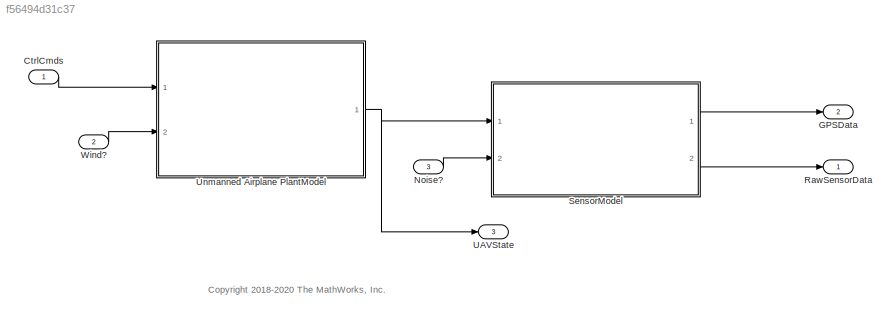
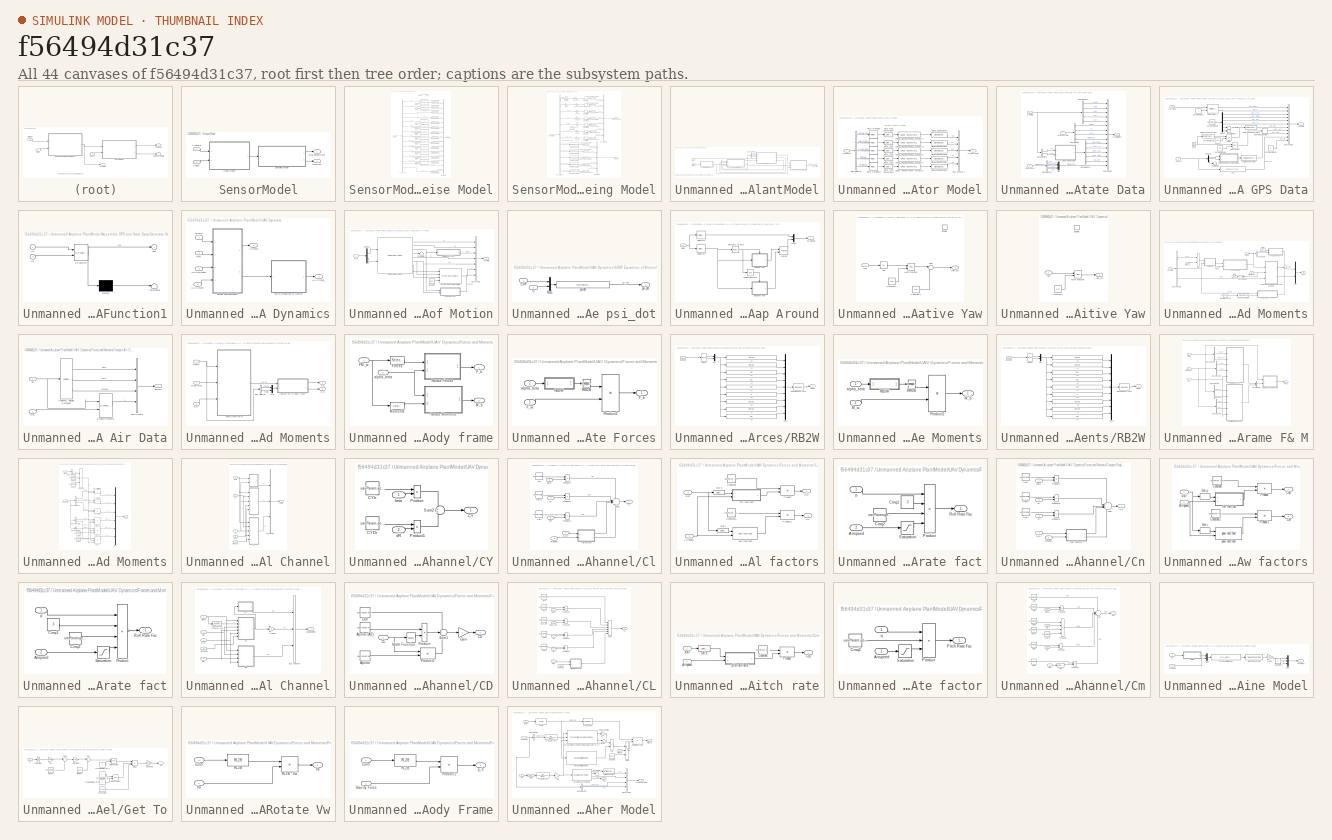
[diagram: thumbnail index - all 44 canvases of the model, root first then tree order]
MODEL slx_f56494d31c37
KIND model
BLOCK [Inport] CtrlCmds
  OutDataTypeStr = Bus: ctrlCmdsBus
  SampleTime = [0.01,0]
BLOCK [Outport] GPSData
  BusOutputAsStruct = on
  OutDataTypeStr = Bus: gpsReading
  Port = 2
  PortDimensions = 1
  VectorParamsAs1DForOutWhenUnconnected = off
BLOCK [Inport] Noise?
  OutDataTypeStr = double
  Port = 3
  PortDimensions = 1
  SamplingMode = Sample based
  SignalType = real
BLOCK [Outport] RawSensorData
  BusOutputAsStruct = on
  OutDataTypeStr = Bus: rawSensorDataBus
  PortDimensions = 1
  VectorParamsAs1DForOutWhenUnconnected = off
BLOCK [SubSystem] SensorModel
  Ports = [2, 2]
  RequestExecContextInheritance = off
  TreatAsAtomicUnit = on
BLOCK [Outport] SensorModel/GPSData
  OutDataTypeStr = Bus: gpsReading
  VectorParamsAs1DForOutWhenUnconnected = off
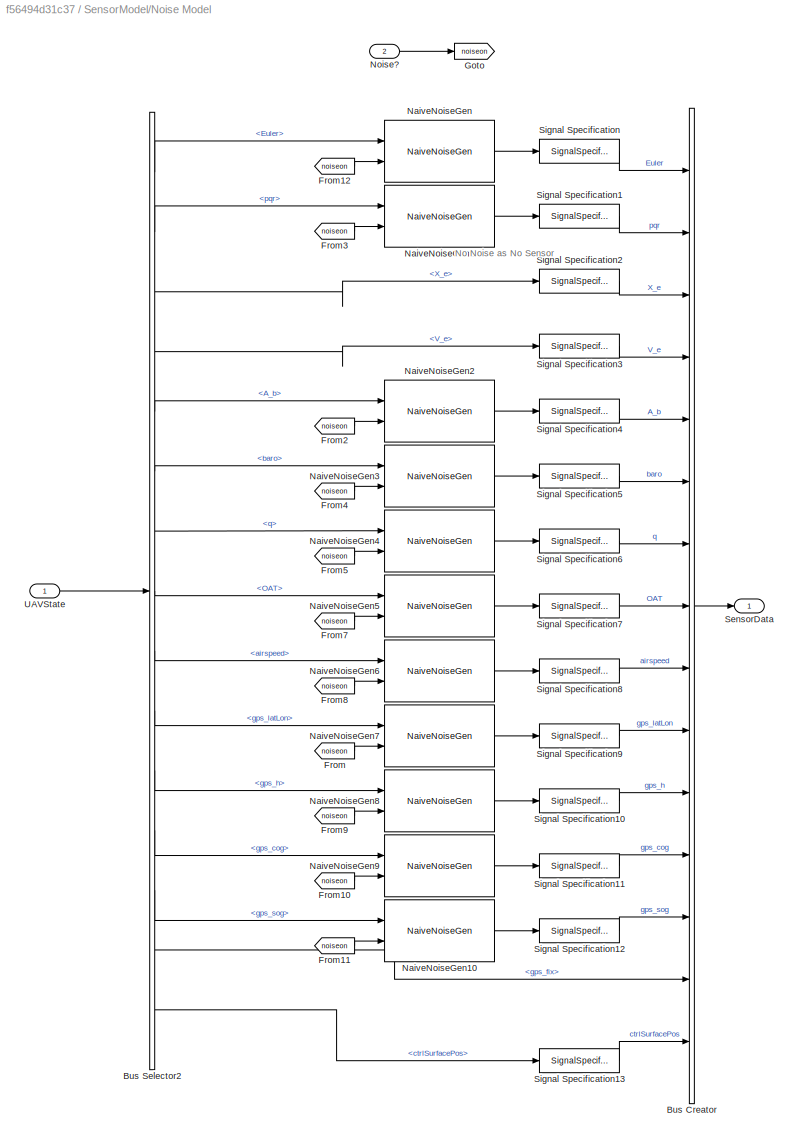
BLOCK [SubSystem] SensorModel/Noise Model
  Ports = [2, 1]
  RequestExecContextInheritance = off
  TreatAsAtomicUnit = on
BLOCK [BusCreator] SensorModel/Noise Model/Bus Creator
  DisplayOption = bar
  InheritFromInputs = on
  Inputs = 15
  OutDataTypeStr = Bus: uavStateBus
  Ports = [15, 1]
BLOCK [BusSelector] SensorModel/Noise Model/Bus Selector2
  OutputSignals = Euler,pqr,X_e,V_e,A_b,baro,q,OAT,airspeed,gps_latLon,gps_h,gps_cog,gps_sog,gps_fix,ctrlSurfacePos
  Ports = [1, 15]
BLOCK [From] SensorModel/Noise Model/From
  AttributesFormatString = [%<GotoTag>]
  GotoTag = noiseon
BLOCK [From] SensorModel/Noise Model/From10
  AttributesFormatString = [%<GotoTag>]
  GotoTag = noiseon
BLOCK [From] SensorModel/Noise Model/From11
  AttributesFormatString = [%<GotoTag>]
  GotoTag = noiseon
BLOCK [From] SensorModel/Noise Model/From12
  AttributesFormatString = [%<GotoTag>]
  GotoTag = noiseon
BLOCK [From] SensorModel/Noise Model/From2
  AttributesFormatString = [%<GotoTag>]
  GotoTag = noiseon
BLOCK [From] SensorModel/Noise Model/From3
  AttributesFormatString = [%<GotoTag>]
  GotoTag = noiseon
BLOCK [From] SensorModel/Noise Model/From4
  AttributesFormatString = [%<GotoTag>]
  GotoTag = noiseon
BLOCK [From] SensorModel/Noise Model/From5
  AttributesFormatString = [%<GotoTag>]
  GotoTag = noiseon
BLOCK [From] SensorModel/Noise Model/From7
  AttributesFormatString = [%<GotoTag>]
  GotoTag = noiseon
BLOCK [From] SensorModel/Noise Model/From8
  AttributesFormatString = [%<GotoTag>]
  GotoTag = noiseon
BLOCK [From] SensorModel/Noise Model/From9
  AttributesFormatString = [%<GotoTag>]
  GotoTag = noiseon
BLOCK [Goto] SensorModel/Noise Model/Goto
  AttributesFormatString = [%<GotoTag>]
  GotoTag = noiseon
BLOCK [Reference] SensorModel/Noise Model/NaiveNoiseGen  REF=mbdriLib/Utilities/NaiveNoiseGen
  Ports = [2, 1]
  SourceBlock = mbdriLib/Utilities/NaiveNoiseGen
BLOCK [Reference] SensorModel/Noise Model/NaiveNoiseGen1  REF=mbdriLib/Utilities/NaiveNoiseGen
  Ports = [2, 1]
  SourceBlock = mbdriLib/Utilities/NaiveNoiseGen
BLOCK [Reference] SensorModel/Noise Model/NaiveNoiseGen10  REF=mbdriLib/Utilities/NaiveNoiseGen
  Ports = [2, 1]
  SourceBlock = mbdriLib/Utilities/NaiveNoiseGen
BLOCK [Reference] SensorModel/Noise Model/NaiveNoiseGen2  REF=mbdriLib/Utilities/NaiveNoiseGen
  Ports = [2, 1]
  SourceBlock = mbdriLib/Utilities/NaiveNoiseGen
BLOCK [Reference] SensorModel/Noise Model/NaiveNoiseGen3  REF=mbdriLib/Utilities/NaiveNoiseGen
  Ports = [2, 1]
  SourceBlock = mbdriLib/Utilities/NaiveNoiseGen
BLOCK [Reference] SensorModel/Noise Model/NaiveNoiseGen4  REF=mbdriLib/Utilities/NaiveNoiseGen
  Ports = [2, 1]
  SourceBlock = mbdriLib/Utilities/NaiveNoiseGen
BLOCK [Reference] SensorModel/Noise Model/NaiveNoiseGen5  REF=mbdriLib/Utilities/NaiveNoiseGen
  Ports = [2, 1]
  SourceBlock = mbdriLib/Utilities/NaiveNoiseGen
BLOCK [Reference] SensorModel/Noise Model/NaiveNoiseGen6  REF=mbdriLib/Utilities/NaiveNoiseGen
  Ports = [2, 1]
  SourceBlock = mbdriLib/Utilities/NaiveNoiseGen
BLOCK [Reference] SensorModel/Noise Model/NaiveNoiseGen7  REF=mbdriLib/Utilities/NaiveNoiseGen
  Ports = [2, 1]
  SourceBlock = mbdriLib/Utilities/NaiveNoiseGen
BLOCK [Reference] SensorModel/Noise Model/NaiveNoiseGen8  REF=mbdriLib/Utilities/NaiveNoiseGen
  Ports = [2, 1]
  SourceBlock = mbdriLib/Utilities/NaiveNoiseGen
BLOCK [Reference] SensorModel/Noise Model/NaiveNoiseGen9  REF=mbdriLib/Utilities/NaiveNoiseGen
  Ports = [2, 1]
  SourceBlock = mbdriLib/Utilities/NaiveNoiseGen
BLOCK [Inport] SensorModel/Noise Model/Noise?
  Port = 2
BLOCK [Outport] SensorModel/Noise Model/SensorData
  OutDataTypeStr = Bus: uavStateBus
  VectorParamsAs1DForOutWhenUnconnected = off
BLOCK [SignalSpecification] SensorModel/Noise Model/Signal Specification
  Unit = rad
BLOCK [SignalSpecification] SensorModel/Noise Model/Signal Specification1
  Unit = rad/s
BLOCK [SignalSpecification] SensorModel/Noise Model/Signal Specification10
  Unit = m
BLOCK [SignalSpecification] SensorModel/Noise Model/Signal Specification11
  Unit = deg
BLOCK [SignalSpecification] SensorModel/Noise Model/Signal Specification12
  Unit = m/s
BLOCK [SignalSpecification] SensorModel/Noise Model/Signal Specification13
  Unit = rad
BLOCK [SignalSpecification] SensorModel/Noise Model/Signal Specification2
  Unit = m
BLOCK [SignalSpecification] SensorModel/Noise Model/Signal Specification3
  Unit = m/s
BLOCK [SignalSpecification] SensorModel/Noise Model/Signal Specification4
  Unit = m/s^2
BLOCK [SignalSpecification] SensorModel/Noise Model/Signal Specification5
  Unit = Pa
BLOCK [SignalSpecification] SensorModel/Noise Model/Signal Specification6
  Unit = Pa
BLOCK [SignalSpecification] SensorModel/Noise Model/Signal Specification7
  Unit = °C
BLOCK [SignalSpecification] SensorModel/Noise Model/Signal Specification8
  Unit = m/s
BLOCK [SignalSpecification] SensorModel/Noise Model/Signal Specification9
  Unit = deg
BLOCK [Inport] SensorModel/Noise Model/UAVState
  OutDataTypeStr = Bus: uavStateBus
BLOCK [Inport] SensorModel/Noise?
  Port = 2
BLOCK [Outport] SensorModel/RawSensorData
  OutDataTypeStr = Bus: rawSensorDataBus
  Port = 2
  VectorParamsAs1DForOutWhenUnconnected = off
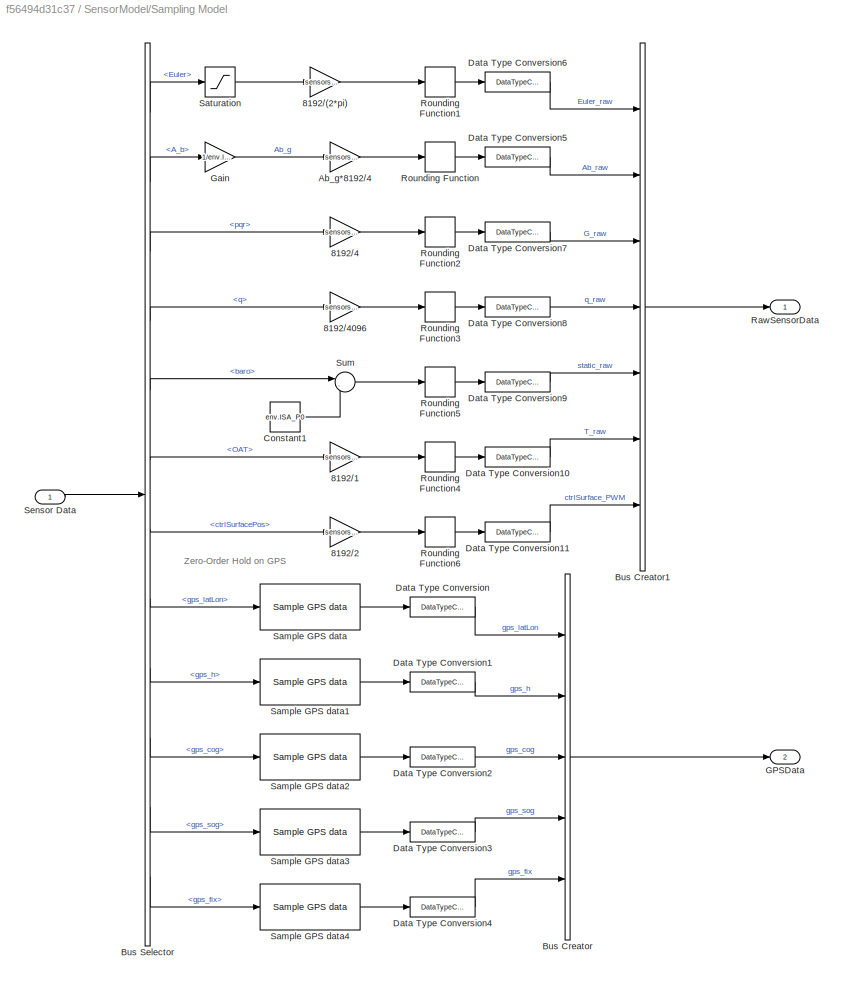
BLOCK [SubSystem] SensorModel/Sampling Model
  Ports = [1, 2]
  RequestExecContextInheritance = off
  TreatAsAtomicUnit = on
BLOCK [Gain] SensorModel/Sampling Model/8192//(2*pi)
  AttributesFormatString = %<Gain>
  Gain = sensors.bit_scale/sensors.max_euler
BLOCK [Gain] SensorModel/Sampling Model/8192//1
  AttributesFormatString = %<Gain>
  Gain = sensors.bit_scale/sensors.max_temp
BLOCK [Gain] SensorModel/Sampling Model/8192//2
  AttributesFormatString = %<Gain>
  Gain = sensors.bit_scale/sensors.max_ctrlSrfc
BLOCK [Gain] SensorModel/Sampling Model/8192//4
  AttributesFormatString = %<Gain>
  Gain = sensors.bit_scale/sensors.max_gyro
BLOCK [Gain] SensorModel/Sampling Model/8192//4096
  AttributesFormatString = %<Gain>
  Gain = sensors.bit_scale/sensors.max_dyn
BLOCK [Gain] SensorModel/Sampling Model/Ab_g*8192//4
  AttributesFormatString = %<Gain>
  Gain = sensors.bit_scale/sensors.max_accel
BLOCK [BusCreator] SensorModel/Sampling Model/Bus Creator
  DisplayOption = bar
  InheritFromInputs = on
  Inputs = 5
  NonVirtualBus = on
  OutDataTypeStr = Bus: gpsReading
  Ports = [5, 1]
BLOCK [BusCreator] SensorModel/Sampling Model/Bus Creator1
  DisplayOption = bar
  InheritFromInputs = on
  Inputs = 7
  NonVirtualBus = on
  OutDataTypeStr = Bus: rawSensorDataBus
  Ports = [7, 1]
BLOCK [BusSelector] SensorModel/Sampling Model/Bus Selector
  OutputSignals = Euler,A_b,pqr,q,baro,OAT,ctrlSurfacePos,gps_latLon,gps_h,gps_cog,gps_sog,gps_fix
  Ports = [1, 12]
BLOCK [Constant] SensorModel/Sampling Model/Constant1
  AttributesFormatString = %<Value>
  Value = env.ISA_P0
BLOCK [DataTypeConversion] SensorModel/Sampling Model/Data Type Conversion
  OutDataTypeStr = single
  RndMeth = Floor
  SaturateOnIntegerOverflow = off
BLOCK [DataTypeConversion] SensorModel/Sampling Model/Data Type Conversion1
  OutDataTypeStr = single
  RndMeth = Floor
  SaturateOnIntegerOverflow = off
BLOCK [DataTypeConversion] SensorModel/Sampling Model/Data Type Conversion10
  OutDataTypeStr = int16
  RndMeth = Floor
  SaturateOnIntegerOverflow = off
BLOCK [DataTypeConversion] SensorModel/Sampling Model/Data Type Conversion11
  OutDataTypeStr = int16
  RndMeth = Floor
  SaturateOnIntegerOverflow = off
BLOCK [DataTypeConversion] SensorModel/Sampling Model/Data Type Conversion2
  OutDataTypeStr = single
  RndMeth = Floor
  SaturateOnIntegerOverflow = off
BLOCK [DataTypeConversion] SensorModel/Sampling Model/Data Type Conversion3
  OutDataTypeStr = single
  RndMeth = Floor
  SaturateOnIntegerOverflow = off
BLOCK [DataTypeConversion] SensorModel/Sampling Model/Data Type Conversion4
  OutDataTypeStr = uint8
  RndMeth = Floor
  SaturateOnIntegerOverflow = off
BLOCK [DataTypeConversion] SensorModel/Sampling Model/Data Type Conversion5
  OutDataTypeStr = int16
  RndMeth = Floor
  SaturateOnIntegerOverflow = off
BLOCK [DataTypeConversion] SensorModel/Sampling Model/Data Type Conversion6
  OutDataTypeStr = int16
  RndMeth = Floor
  SaturateOnIntegerOverflow = off
BLOCK [DataTypeConversion] SensorModel/Sampling Model/Data Type Conversion7
  OutDataTypeStr = int16
  RndMeth = Floor
  SaturateOnIntegerOverflow = off
BLOCK [DataTypeConversion] SensorModel/Sampling Model/Data Type Conversion8
  OutDataTypeStr = uint16
  RndMeth = Floor
  SaturateOnIntegerOverflow = off
BLOCK [DataTypeConversion] SensorModel/Sampling Model/Data Type Conversion9
  OutDataTypeStr = uint16
  RndMeth = Floor
  SaturateOnIntegerOverflow = off
BLOCK [Outport] SensorModel/Sampling Model/GPSData
  OutDataTypeStr = Bus: gpsReading
  Port = 2
  VectorParamsAs1DForOutWhenUnconnected = off
BLOCK [Gain] SensorModel/Sampling Model/Gain
  AttributesFormatString = %<Gain>
  Gain = 1/env.ISA_g
BLOCK [Outport] SensorModel/Sampling Model/RawSensorData
  OutDataTypeStr = Bus: rawSensorDataBus
  VectorParamsAs1DForOutWhenUnconnected = off
BLOCK [Rounding] SensorModel/Sampling Model/Rounding Function
BLOCK [Rounding] SensorModel/Sampling Model/Rounding Function1
BLOCK [Rounding] SensorModel/Sampling Model/Rounding Function2
BLOCK [Rounding] SensorModel/Sampling Model/Rounding Function3
BLOCK [Rounding] SensorModel/Sampling Model/Rounding Function4
BLOCK [Rounding] SensorModel/Sampling Model/Rounding Function5
BLOCK [Rounding] SensorModel/Sampling Model/Rounding Function6
BLOCK [Reference] SensorModel/Sampling Model/Sample GPS data  REF=mbdriLib/Utilities/Sample GPS data
  Ports = [1, 1]
  SourceBlock = mbdriLib/Utilities/Sample GPS data
  SourceType = SubSystem
BLOCK [Reference] SensorModel/Sampling Model/Sample GPS data1  REF=mbdriLib/Utilities/Sample GPS data
  Ports = [1, 1]
  SourceBlock = mbdriLib/Utilities/Sample GPS data
  SourceType = SubSystem
BLOCK [Reference] SensorModel/Sampling Model/Sample GPS data2  REF=mbdriLib/Utilities/Sample GPS data
  Ports = [1, 1]
  SourceBlock = mbdriLib/Utilities/Sample GPS data
  SourceType = SubSystem
BLOCK [Reference] SensorModel/Sampling Model/Sample GPS data3  REF=mbdriLib/Utilities/Sample GPS data
  Ports = [1, 1]
  SourceBlock = mbdriLib/Utilities/Sample GPS data
  SourceType = SubSystem
BLOCK [Reference] SensorModel/Sampling Model/Sample GPS data4  REF=mbdriLib/Utilities/Sample GPS data
  Ports = [1, 1]
  SourceBlock = mbdriLib/Utilities/Sample GPS data
  SourceType = SubSystem
BLOCK [Saturate] SensorModel/Sampling Model/Saturation
  AttributesFormatString = [%<LowerLimit>  %<UpperLimit>]
  LowerLimit = -sensors.max_euler
  UpperLimit = sensors.max_euler
BLOCK [Inport] SensorModel/Sampling Model/Sensor Data
  OutDataTypeStr = Bus: uavStateBus
BLOCK [Sum] SensorModel/Sampling Model/Sum
  Inputs = |-+
  Ports = [2, 1]
BLOCK [Inport] SensorModel/UAVState
  OutDataTypeStr = Bus: uavStateBus
BLOCK [Outport] UAVState
  BusOutputAsStruct = on
  OutDataTypeStr = Bus: uavStateBus
  Port = 3
  VectorParamsAs1DForOutWhenUnconnected = off
BLOCK [SubSystem] Unmanned Airplane PlantModel
  Ports = [2, 1]
  RequestExecContextInheritance = off
  TreatAsAtomicUnit = on
BLOCK [SubSystem] Unmanned Airplane PlantModel/Actuator Model
  Ports = [1, 1]
  RequestExecContextInheritance = off
BLOCK [BusCreator] Unmanned Airplane PlantModel/Actuator Model/Bus Creator1
  DisplayOption = bar
  InheritFromInputs = on
  Inputs = 5
  Ports = [5, 1]
BLOCK [BusSelector] Unmanned Airplane PlantModel/Actuator Model/Bus Selector
  OutputSignals = elevatorCmd,aileronCmd,rudderCmd,flapCmd,throttleCmd
  Ports = [1, 5]
BLOCK [Inport] Unmanned Airplane PlantModel/Actuator Model/CtrlCmds
BLOCK [DataTypeConversion] Unmanned Airplane PlantModel/Actuator Model/Data Type Conversion1
  OutDataTypeStr = double
  RndMeth = Floor
  SaturateOnIntegerOverflow = off
BLOCK [DataTypeConversion] Unmanned Airplane PlantModel/Actuator Model/Data Type Conversion2
  OutDataTypeStr = double
  RndMeth = Floor
  SaturateOnIntegerOverflow = off
BLOCK [DataTypeConversion] Unmanned Airplane PlantModel/Actuator Model/Data Type Conversion3
  OutDataTypeStr = double
  RndMeth = Floor
  SaturateOnIntegerOverflow = off
BLOCK [DataTypeConversion] Unmanned Airplane PlantModel/Actuator Model/Data Type Conversion4
  OutDataTypeStr = double
  RndMeth = Floor
  SaturateOnIntegerOverflow = off
BLOCK [DataTypeConversion] Unmanned Airplane PlantModel/Actuator Model/Data Type Conversion7
  OutDataTypeStr = double
  RndMeth = Floor
  SaturateOnIntegerOverflow = off
BLOCK [Reference] Unmanned Airplane PlantModel/Actuator Model/Linear Second Order Actuators  REF=aerolibactuator/Linear Second-Order Actuator
  AttributesFormatString = Nat Freq => %<wn_fin>\nDamping => %<z_fin>
  Ports = [1, 1]
  SourceBlock = aerolibactuator/Linear Second-Order Actuator
  SourceProductBaseCode = AE
  SourceType = LinearSecondOrderActuator
BLOCK [Reference] Unmanned Airplane PlantModel/Actuator Model/Linear Second-Order Actuator1  REF=aerolibactuator/Linear Second-Order Actuator
  Ports = [1, 1]
  SourceBlock = aerolibactuator/Linear Second-Order Actuator
  SourceProductBaseCode = AE
  SourceType = LinearSecondOrderActuator
BLOCK [Reference] Unmanned Airplane PlantModel/Actuator Model/Linear Second-Order Actuator2  REF=aerolibactuator/Linear Second-Order Actuator
  Ports = [1, 1]
  SourceBlock = aerolibactuator/Linear Second-Order Actuator
  SourceProductBaseCode = AE
  SourceType = LinearSecondOrderActuator
BLOCK [Reference] Unmanned Airplane PlantModel/Actuator Model/Linear Second-Order Actuator3  REF=aerolibactuator/Linear Second-Order Actuator
  Ports = [1, 1]
  SourceBlock = aerolibactuator/Linear Second-Order Actuator
  SourceProductBaseCode = AE
  SourceType = LinearSecondOrderActuator
BLOCK [Reference] Unmanned Airplane PlantModel/Actuator Model/Linear Second-Order Actuator4  REF=aerolibactuator/Linear Second-Order Actuator
  Ports = [1, 1]
  SourceBlock = aerolibactuator/Linear Second-Order Actuator
  SourceProductBaseCode = AE
  SourceType = LinearSecondOrderActuator
BLOCK [RateTransition] Unmanned Airplane PlantModel/Actuator Model/Rate Transition
  OutPortSampleTime = 0
BLOCK [RateTransition] Unmanned Airplane PlantModel/Actuator Model/Rate Transition1
  OutPortSampleTime = 0
BLOCK [RateTransition] Unmanned Airplane PlantModel/Actuator Model/Rate Transition2
  OutPortSampleTime = 0
BLOCK [RateTransition] Unmanned Airplane PlantModel/Actuator Model/Rate Transition3
  OutPortSampleTime = 0
BLOCK [RateTransition] Unmanned Airplane PlantModel/Actuator Model/Rate Transition4
  OutPortSampleTime = 0
BLOCK [SignalSpecification] Unmanned Airplane PlantModel/Actuator Model/Signal Specification
  Unit = rad
BLOCK [SignalSpecification] Unmanned Airplane PlantModel/Actuator Model/Signal Specification1
  Unit = rad
BLOCK [SignalSpecification] Unmanned Airplane PlantModel/Actuator Model/Signal Specification2
  Unit = rad
BLOCK [SignalSpecification] Unmanned Airplane PlantModel/Actuator Model/Signal Specification3
  Unit = rad
BLOCK [SignalSpecification] Unmanned Airplane PlantModel/Actuator Model/Signal Specification4
  Unit = %
BLOCK [Outport] Unmanned Airplane PlantModel/Actuator Model/ctrlSurfaces
  VectorParamsAs1DForOutWhenUnconnected = off
BLOCK [SubSystem] Unmanned Airplane PlantModel/Assemble GPS and State Data
  Ports = [3, 1]
  RequestExecContextInheritance = off
BLOCK [Inport] Unmanned Airplane PlantModel/Assemble GPS and State Data/AirSensorData
BLOCK [BusCreator] Unmanned Airplane PlantModel/Assemble GPS and State Data/Bus Creator
  DisplayOption = bar
  InheritFromInputs = off
  Inputs = 15
  NonVirtualBus = on
  OutDataTypeStr = Bus: uavStateBus
  Ports = [15, 1]
BLOCK [BusSelector] Unmanned Airplane PlantModel/Assemble GPS and State Data/Bus Selector
  OutputSignals = static,q,OAT,airpseed
  Ports = [1, 4]
BLOCK [BusSelector] Unmanned Airplane PlantModel/Assemble GPS and State Data/Bus Selector1
  OutputSignals = dE,dA,dR,dF,dT
  Ports = [1, 5]
BLOCK [BusSelector] Unmanned Airplane PlantModel/Assemble GPS and State Data/Bus Selector2
  OutputSignals = Euler,pqr,Xe,Ve,Ab
  Ports = [1, 5]
BLOCK [BusSelector] Unmanned Airplane PlantModel/Assemble GPS and State Data/Bus Selector3
  OutputSignals = Xe,Ve
  Ports = [1, 2]
BLOCK [BusSelector] Unmanned Airplane PlantModel/Assemble GPS and State Data/Bus Selector4
  OutputSignals = gps_latLon,gps_h,gps_cog,gps_sog,gps_fix
  Ports = [1, 5]
BLOCK [Inport] Unmanned Airplane PlantModel/Assemble GPS and State Data/CtrlSurfaces
  Port = 3
BLOCK [SubSystem] Unmanned Airplane PlantModel/Assemble GPS and State Data/Generate GPS Data
  Ports = [2, 1]
  RequestExecContextInheritance = off
BLOCK [Reference] Unmanned Airplane PlantModel/Assemble GPS and State Data/Generate GPS Data/Angle Conversion1  REF=aerolibconvert2/Angle Conversion
  Ports = [1, 1]
  SourceBlock = aerolibconvert2/Angle Conversion
  SourceProductBaseCode = AE
  SourceType = Angle Conversion
BLOCK [BusCreator] Unmanned Airplane PlantModel/Assemble GPS and State Data/Generate GPS Data/Bus Creator
  DisplayOption = bar
  InheritFromInputs = on
  Inputs = 11
  Ports = [11, 1]
BLOCK [Clock] Unmanned Airplane PlantModel/Assemble GPS and State Data/Generate GPS Data/Clock
  AttributesFormatString = Decimation: %<Decimation>
  Decimation = 100
BLOCK [DataTypeConversion] Unmanned Airplane PlantModel/Assemble GPS and State Data/Generate GPS Data/Data Type Conversion
  OutDataTypeStr = uint32
  RndMeth = Floor
  SaturateOnIntegerOverflow = off
BLOCK [DataTypeConversion] Unmanned Airplane PlantModel/Assemble GPS and State Data/Generate GPS Data/Data Type Conversion1
  OutDataTypeStr = double
  RndMeth = Floor
  SaturateOnIntegerOverflow = off
BLOCK [Demux] Unmanned Airplane PlantModel/Assemble GPS and State Data/Generate GPS Data/Demux
  Outputs = 6
  Ports = [1, 6]
BLOCK [Demux] Unmanned Airplane PlantModel/Assemble GPS and State Data/Generate GPS Data/Demux1
  Outputs = 3
  Ports = [1, 3]
BLOCK [Product] Unmanned Airplane PlantModel/Assemble GPS and State Data/Generate GPS Data/Divide
  Inputs = */
  OutDataTypeStr = uint32
  Ports = [2, 1]
BLOCK [SubSystem] Unmanned Airplane PlantModel/Assemble GPS and State Data/Generate GPS Data/Embedded MATLAB Function1
  ErrorFcn = Stateflow.Translate.translate
  PermitHierarchicalResolution = ExplicitOnly
  Ports = [2, 1]
  RequestExecContextInheritance = off
  SFBlockType = MATLAB Function
  TreatAsAtomicUnit = on
BLOCK [Demux] Unmanned Airplane PlantModel/Assemble GPS and State Data/Generate GPS Data/Embedded MATLAB Function1/ Demux 
  Outputs = 1
  Ports = [1, 1]
BLOCK [S-Function] Unmanned Airplane PlantModel/Assemble GPS and State Data/Generate GPS Data/Embedded MATLAB Function1/ SFunction 
  EnableBusSupport = off
  FunctionName = sf_sfun
  PortCounts = [2 2]
  Ports = [2, 2]
  SFcnIsStateOwnerBlock = off
  SFunctionDeploymentMode = off
  Tag = Stateflow S-Function 1
BLOCK [Terminator] Unmanned Airplane PlantModel/Assemble GPS and State Data/Generate GPS Data/Embedded MATLAB Function1/ Terminator 
BLOCK [Inport] Unmanned Airplane PlantModel/Assemble GPS and State Data/Generate GPS Data/Embedded MATLAB Function1/Ve
  Port = 2
BLOCK [Inport] Unmanned Airplane PlantModel/Assemble GPS and State Data/Generate GPS Data/Embedded MATLAB Function1/Vn
BLOCK [Outport] Unmanned Airplane PlantModel/Assemble GPS and State Data/Generate GPS Data/Embedded MATLAB Function1/cog
  VectorParamsAs1DForOutWhenUnconnected = off
BLOCK [Fcn] Unmanned Airplane PlantModel/Assemble GPS and State Data/Generate GPS Data/Fcn
  Expr = sqrt(u(1)^2+u(2)^2+u(3)^2)
BLOCK [Reference] Unmanned Airplane PlantModel/Assemble GPS and State Data/Generate GPS Data/Flat Earth to LLA  REF=aerolibtransform2/Flat Earth to LLA
  Ports = [2, 2]
  SourceBlock = aerolibtransform2/Flat Earth to LLA
  SourceProductBaseCode = AE
  SourceType = Flat Earth to LLA
BLOCK [Outport] Unmanned Airplane PlantModel/Assemble GPS and State Data/Generate GPS Data/GPSData
  VectorParamsAs1DForOutWhenUnconnected = off
BLOCK [Math] Unmanned Airplane PlantModel/Assemble GPS and State Data/Generate GPS Data/Math Function
  Operator = mod
  Ports = [2, 1]
  SignedPower = on
BLOCK [Rounding] Unmanned Airplane PlantModel/Assemble GPS and State Data/Generate GPS Data/Rounding Function
BLOCK [Terminator] Unmanned Airplane PlantModel/Assemble GPS and State Data/Generate GPS Data/Terminator
BLOCK [Terminator] Unmanned Airplane PlantModel/Assemble GPS and State Data/Generate GPS Data/Terminator1
BLOCK [Terminator] Unmanned Airplane PlantModel/Assemble GPS and State Data/Generate GPS Data/Terminator2
BLOCK [Inport] Unmanned Airplane PlantModel/Assemble GPS and State Data/Generate GPS Data/Vx, Vy, Vz
  Port = 2
BLOCK [Inport] Unmanned Airplane PlantModel/Assemble GPS and State Data/Generate GPS Data/XYZ (NEU)
BLOCK [Constant] Unmanned Airplane PlantModel/Assemble GPS and State Data/Generate GPS Data/Zero level trust
  AttributesFormatString = %<Value>
  Value = 0
BLOCK [Constant] Unmanned Airplane PlantModel/Assemble GPS and State Data/Generate GPS Data/Zero level trust1
  AttributesFormatString = %<Value>
  SampleTime = -1
  Value = GPSTimeSeed
BLOCK [Constant] Unmanned Airplane PlantModel/Assemble GPS and State Data/Generate GPS Data/Zero level trust2
  AttributesFormatString = %<Value>
  Value = 5
BLOCK [Constant] Unmanned Airplane PlantModel/Assemble GPS and State Data/Generate GPS Data/Zero level trust3
  AttributesFormatString = %<Value>
  Value = 60
BLOCK [Constant] Unmanned Airplane PlantModel/Assemble GPS and State Data/Generate GPS Data/Zero level trust4
  AttributesFormatString = %<Value>
  OutDataTypeStr = uint32
  Value = 60
BLOCK [Mux] Unmanned Airplane PlantModel/Assemble GPS and State Data/Mux
  DisplayOption = bar
  Inputs = 5
  Ports = [5, 1]
BLOCK [Inport] Unmanned Airplane PlantModel/Assemble GPS and State Data/UAVState
  Port = 2
BLOCK [Outport] Unmanned Airplane PlantModel/Assemble GPS and State Data/UAVStateBus
  OutDataTypeStr = Bus: uavStateBus
  VectorParamsAs1DForOutWhenUnconnected = off
BLOCK [BusSelector] Unmanned Airplane PlantModel/Bus Selector3
  NameLocation = top
  OutputSignals = Xe,Euler
  Ports = [1, 2]
BLOCK [Inport] Unmanned Airplane PlantModel/CtrlCmds
BLOCK [SubSystem] Unmanned Airplane PlantModel/UAV Dynamics
  Ports = [4, 2]
  RequestExecContextInheritance = off
BLOCK [SubSystem] Unmanned Airplane PlantModel/UAV Dynamics/6DOF Equations of Motion
  Ports = [1, 1]
  RequestExecContextInheritance = off
  VariantControl = use_aerospace_blocks == 1
BLOCK [Reference] Unmanned Airplane PlantModel/UAV Dynamics/6DOF Equations of Motion/6DOF (Euler Angles)  REF=shared6dof/6DOF (Euler Angles)
  Ports = [2, 8]
  SourceBlock = shared6dof/6DOF (Euler Angles)
  SourceProductBaseCode = AE,PW,DR,MT,UV,VE
  SourceType = 6DOF EoM (Body Axis)
BLOCK [BusCreator] Unmanned Airplane PlantModel/UAV Dynamics/6DOF Equations of Motion/Bus Creator
  DisplayOption = bar
  InheritFromInputs = on
  Inputs = 7
  Ports = [7, 1]
BLOCK [SubSystem] Unmanned Airplane PlantModel/UAV Dynamics/6DOF Equations of Motion/Compute psi_dot
  Ports = [2, 1]
  RequestExecContextInheritance = off
BLOCK [Inport] Unmanned Airplane PlantModel/UAV Dynamics/6DOF Equations of Motion/Compute psi_dot/Euler
BLOCK [Inport] Unmanned Airplane PlantModel/UAV Dynamics/6DOF Equations of Motion/Compute psi_dot/G
  Port = 2
BLOCK [Mux] Unmanned Airplane PlantModel/UAV Dynamics/6DOF Equations of Motion/Compute psi_dot/Mux1
  DisplayOption = bar
  Inputs = 2
  Ports = [2, 1]
BLOCK [Outport] Unmanned Airplane PlantModel/UAV Dynamics/6DOF Equations of Motion/Compute psi_dot/psi_dot
  Unit = rad/S
  VectorParamsAs1DForOutWhenUnconnected = off
BLOCK [Fcn] Unmanned Airplane PlantModel/UAV Dynamics/6DOF Equations of Motion/Compute psi_dot/psidot
  Expr = (u[5]*sin(u[1])+u[6]*cos(u[1]))/cos(u[2])
BLOCK [Constant] Unmanned Airplane PlantModel/UAV Dynamics/6DOF Equations of Motion/Constant
  AttributesFormatString = %<Value>
  Value = [0 0 0]
BLOCK [Demux] Unmanned Airplane PlantModel/UAV Dynamics/6DOF Equations of Motion/Demux2
  Outputs = 2
  Ports = [1, 2]
BLOCK [Inport] Unmanned Airplane PlantModel/UAV Dynamics/6DOF Equations of Motion/FM_b
BLOCK [Terminator] Unmanned Airplane PlantModel/UAV Dynamics/6DOF Equations of Motion/Terminator1
BLOCK [Reference] Unmanned Airplane PlantModel/UAV Dynamics/6DOF Equations of Motion/Three-axis Accelerometer  REF=aerolibnav/Three-axis Accelerometer
  Ports = [4, 1]
  SourceBlock = aerolibnav/Three-axis Accelerometer
  SourceProductBaseCode = AE
  SourceType = Three-axis Accelerometer
BLOCK [Outport] Unmanned Airplane PlantModel/UAV Dynamics/6DOF Equations of Motion/UAVState
  VectorParamsAs1DForOutWhenUnconnected = off
BLOCK [SubSystem] Unmanned Airplane PlantModel/UAV Dynamics/6DOF Equations of Motion/[0, pi] Wrap Around
  Ports = [1, 1]
  RequestExecContextInheritance = off
BLOCK [Reference] Unmanned Airplane PlantModel/UAV Dynamics/6DOF Equations of Motion/[0, pi] Wrap Around/Compare To Zero  REF=simulink/Logic and Bit
Operations/Compare
To Zero
  Ports = [1, 1]
  SourceBlock = simulink/Logic and Bit\nOperations/Compare\nTo Zero
  SourceProductBaseCode = SL
  SourceType = Compare To Zero
BLOCK [Inport] Unmanned Airplane PlantModel/UAV Dynamics/6DOF Equations of Motion/[0, pi] Wrap Around/Euler
BLOCK [Logic] Unmanned Airplane PlantModel/UAV Dynamics/6DOF Equations of Motion/[0, pi] Wrap Around/Logical Operator
  AllPortsSameDT = off
  Operator = NOT
  OutDataTypeStr = boolean
  Ports = [1, 1]
BLOCK [Merge] Unmanned Airplane PlantModel/UAV Dynamics/6DOF Equations of Motion/[0, pi] Wrap Around/Merge
  InitialOutput = 0
  Ports = [2, 1]
BLOCK [Mux] Unmanned Airplane PlantModel/UAV Dynamics/6DOF Equations of Motion/[0, pi] Wrap Around/Mux2
  DisplayOption = bar
  Inputs = 2
  Ports = [2, 1]
BLOCK [SubSystem] Unmanned Airplane PlantModel/UAV Dynamics/6DOF Equations of Motion/[0, pi] Wrap Around/Negative Yaw
  Ports = [1, 1, 1]
  RequestExecContextInheritance = off
BLOCK [Abs] Unmanned Airplane PlantModel/UAV Dynamics/6DOF Equations of Motion/[0, pi] Wrap Around/Negative Yaw/Abs
  SaturateOnIntegerOverflow = off
BLOCK [Constant] Unmanned Airplane PlantModel/UAV Dynamics/6DOF Equations of Motion/[0, pi] Wrap Around/Negative Yaw/Constant1
  AttributesFormatString = %<Value>
  Value = 2*pi
BLOCK [Constant] Unmanned Airplane PlantModel/UAV Dynamics/6DOF Equations of Motion/[0, pi] Wrap Around/Negative Yaw/Constant2
  AttributesFormatString = %<Value>
  Value = 2*pi
BLOCK [EnablePort] Unmanned Airplane PlantModel/UAV Dynamics/6DOF Equations of Motion/[0, pi] Wrap Around/Negative Yaw/Enable
  Ports = []
BLOCK [Math] Unmanned Airplane PlantModel/UAV Dynamics/6DOF Equations of Motion/[0, pi] Wrap Around/Negative Yaw/Math Function
  Operator = mod
  Ports = [2, 1]
  SignedPower = on
BLOCK [Sum] Unmanned Airplane PlantModel/UAV Dynamics/6DOF Equations of Motion/[0, pi] Wrap Around/Negative Yaw/Sum
  Inputs = |-+
  Ports = [2, 1]
BLOCK [Inport] Unmanned Airplane PlantModel/UAV Dynamics/6DOF Equations of Motion/[0, pi] Wrap Around/Negative Yaw/yaw
BLOCK [Outport] Unmanned Airplane PlantModel/UAV Dynamics/6DOF Equations of Motion/[0, pi] Wrap Around/Negative Yaw/yaw_wr
  VectorParamsAs1DForOutWhenUnconnected = off
BLOCK [SubSystem] Unmanned Airplane PlantModel/UAV Dynamics/6DOF Equations of Motion/[0, pi] Wrap Around/Positive Yaw
  Ports = [1, 1, 1]
  RequestExecContextInheritance = off
BLOCK [Constant] Unmanned Airplane PlantModel/UAV Dynamics/6DOF Equations of Motion/[0, pi] Wrap Around/Positive Yaw/Constant1
  AttributesFormatString = %<Value>
  Value = 2*pi
BLOCK [EnablePort] Unmanned Airplane PlantModel/UAV Dynamics/6DOF Equations of Motion/[0, pi] Wrap Around/Positive Yaw/Enable
  Ports = []
BLOCK [Math] Unmanned Airplane PlantModel/UAV Dynamics/6DOF Equations of Motion/[0, pi] Wrap Around/Positive Yaw/Math Function
  Operator = mod
  Ports = [2, 1]
  SignedPower = on
BLOCK [Inport] Unmanned Airplane PlantModel/UAV Dynamics/6DOF Equations of Motion/[0, pi] Wrap Around/Positive Yaw/yaw
BLOCK [Outport] Unmanned Airplane PlantModel/UAV Dynamics/6DOF Equations of Motion/[0, pi] Wrap Around/Positive Yaw/yaw_wr
  VectorParamsAs1DForOutWhenUnconnected = off
BLOCK [Selector] Unmanned Airplane PlantModel/UAV Dynamics/6DOF Equations of Motion/[0, pi] Wrap Around/Selector1
  AttributesFormatString = %<Indices>
  IndexOptions = Index vector (dialog)
  Indices = [1 2]
  InputPortWidth = 3
  OutputSizes = 1
  Ports = [1, 1]
BLOCK [Selector] Unmanned Airplane PlantModel/UAV Dynamics/6DOF Equations of Motion/[0, pi] Wrap Around/Selector2
  AttributesFormatString = %<Indices>
  IndexOptions = Index vector (dialog)
  Indices = [3]
  InputPortWidth = 3
  OutputSizes = 1
  Ports = [1, 1]
BLOCK [Outport] Unmanned Airplane PlantModel/UAV Dynamics/6DOF Equations of Motion/[0, pi] Wrap Around/Wrapped
  VectorParamsAs1DForOutWhenUnconnected = off
BLOCK [Outport] Unmanned Airplane PlantModel/UAV Dynamics/AirData
  VectorParamsAs1DForOutWhenUnconnected = off
BLOCK [Inport] Unmanned Airplane PlantModel/UAV Dynamics/CtrlSurfaces
  Port = 3
BLOCK [SubSystem] Unmanned Airplane PlantModel/UAV Dynamics/Forces and Moments
  Ports = [4, 2]
  RequestExecContextInheritance = off
BLOCK [Outport] Unmanned Airplane PlantModel/UAV Dynamics/Forces and Moments/AirData
  VectorParamsAs1DForOutWhenUnconnected = off
BLOCK [BusSelector] Unmanned Airplane PlantModel/UAV Dynamics/Forces and Moments/Bus Selector
  OutputSignals = dT
  Ports = [1, 1]
BLOCK [BusSelector] Unmanned Airplane PlantModel/UAV Dynamics/Forces and Moments/Bus Selector1
  OutputSignals = airpseed
  Ports = [1, 1]
BLOCK [BusSelector] Unmanned Airplane PlantModel/UAV Dynamics/Forces and Moments/Bus Selector2
  OutputSignals = Ve,Euler,pqr
  Ports = [1, 3]
BLOCK [SubSystem] Unmanned Airplane PlantModel/UAV Dynamics/Forces and Moments/Compute Air Data
  Ports = [2, 1]
  RequestExecContextInheritance = off
  TreatAsAtomicUnit = on
  VariantControl = use_aerospace_blocks == 1
BLOCK [Outport] Unmanned Airplane PlantModel/UAV Dynamics/Forces and Moments/Compute Air Data/AirData
  VectorParamsAs1DForOutWhenUnconnected = off
BLOCK [BusCreator] Unmanned Airplane PlantModel/UAV Dynamics/Forces and Moments/Compute Air Data/Bus Creator
  DisplayOption = bar
  InheritFromInputs = on
  Inputs = 4
  Ports = [4, 1]
BLOCK [Reference] Unmanned Airplane PlantModel/UAV Dynamics/Forces and Moments/Compute Air Data/Dynamic Pressure  REF=aerolibasang/Dynamic Pressure
  Ports = [2, 1]
  SourceBlock = aerolibasang/Dynamic Pressure
  SourceProductBaseCode = AE
  SourceType = Dynamic Pressure
BLOCK [Reference] Unmanned Airplane PlantModel/UAV Dynamics/Forces and Moments/Compute Air Data/Incidence, Sideslip, & Airspeed  REF=aerolibasang/Incidence, Sideslip,
& Airspeed
  Ports = [1, 3]
  SourceBlock = aerolibasang/Incidence, Sideslip,\n& Airspeed
  SourceProductBaseCode = AE
  SourceType = Incidence,Sideslip,&Airspeed
BLOCK [Inport] Unmanned Airplane PlantModel/UAV Dynamics/Forces and Moments/Compute Air Data/Rho
  Port = 2
BLOCK [Inport] Unmanned Airplane PlantModel/UAV Dynamics/Forces and Moments/Compute Air Data/Vb
  PortDimensions = 3
  VarSizeSig = No
BLOCK [SubSystem] Unmanned Airplane PlantModel/UAV Dynamics/Forces and Moments/Compute Body Frame Forces and Moments
  Ports = [3, 2]
  RequestExecContextInheritance = off
BLOCK [Inport] Unmanned Airplane PlantModel/UAV Dynamics/Forces and Moments/Compute Body Frame Forces and Moments/AirData
BLOCK [BusSelector] Unmanned Airplane PlantModel/UAV Dynamics/Forces and Moments/Compute Body Frame Forces and Moments/Bus Selector
  OutputSignals = alpha,beta
  Ports = [1, 2]
BLOCK [Inport] Unmanned Airplane PlantModel/UAV Dynamics/Forces and Moments/Compute Body Frame Forces and Moments/CtrlSurfaces
  Port = 2
BLOCK [Outport] Unmanned Airplane PlantModel/UAV Dynamics/Forces and Moments/Compute Body Frame Forces and Moments/F_b
  Unit = kg*m/s^2
  VectorParamsAs1DForOutWhenUnconnected = off
BLOCK [Outport] Unmanned Airplane PlantModel/UAV Dynamics/Forces and Moments/Compute Body Frame Forces and Moments/M_b
  Port = 2
  Unit = kg*m/s
  VectorParamsAs1DForOutWhenUnconnected = off
BLOCK [Mux] Unmanned Airplane PlantModel/UAV Dynamics/Forces and Moments/Compute Body Frame Forces and Moments/Mux
  DisplayOption = bar
  Inputs = 2
  Ports = [2, 1]
BLOCK [SubSystem] Unmanned Airplane PlantModel/UAV Dynamics/Forces and Moments/Compute Body Frame Forces and Moments/Rotate FM to body frame
  Ports = [2, 2]
  RequestExecContextInheritance = off
BLOCK [Inport] Unmanned Airplane PlantModel/UAV Dynamics/Forces and Moments/Compute Body Frame Forces and Moments/Rotate FM to body frame/FM_w
  NameLocation = top
BLOCK [Outport] Unmanned Airplane PlantModel/UAV Dynamics/Forces and Moments/Compute Body Frame Forces and Moments/Rotate FM to body frame/F_b
  VectorParamsAs1DForOutWhenUnconnected = off
BLOCK [Selector] Unmanned Airplane PlantModel/UAV Dynamics/Forces and Moments/Compute Body Frame Forces and Moments/Rotate FM to body frame/Forces
  AttributesFormatString = %<Indices>
  IndexOptions = Index vector (dialog)
  Indices = [1 2 3]
  InputPortWidth = 6
  OutputSizes = [(-2)]
  Ports = [1, 1]
BLOCK [Outport] Unmanned Airplane PlantModel/UAV Dynamics/Forces and Moments/Compute Body Frame Forces and Moments/Rotate FM to body frame/M_b
  Port = 2
  VectorParamsAs1DForOutWhenUnconnected = off
BLOCK [Selector] Unmanned Airplane PlantModel/UAV Dynamics/Forces and Moments/Compute Body Frame Forces and Moments/Rotate FM to body frame/Moments
  AttributesFormatString = %<Indices>
  IndexOptions = Index vector (dialog)
  Indices = [4 5 6]
  InputPortWidth = 6
  OutputSizes = [(-2)]
  Ports = [1, 1]
BLOCK [SubSystem] Unmanned Airplane PlantModel/UAV Dynamics/Forces and Moments/Compute Body Frame Forces and Moments/Rotate FM to body frame/Rotate Forces
  Ports = [2, 1]
  RequestExecContextInheritance = off
BLOCK [Outport] Unmanned Airplane PlantModel/UAV Dynamics/Forces and Moments/Compute Body Frame Forces and Moments/Rotate FM to body frame/Rotate Forces/F_b
  PortDimensions = 3
  VectorParamsAs1DForOutWhenUnconnected = off
BLOCK [Inport] Unmanned Airplane PlantModel/UAV Dynamics/Forces and Moments/Compute Body Frame Forces and Moments/Rotate FM to body frame/Rotate Forces/F_w
BLOCK [Product] Unmanned Airplane PlantModel/UAV Dynamics/Forces and Moments/Compute Body Frame Forces and Moments/Rotate FM to body frame/Rotate Forces/Product2
  Multiplication = Matrix(*)
  OutDataTypeStr = Inherit: Same as first input
  Ports = [2, 1]
  SaturateOnIntegerOverflow = on
BLOCK [SubSystem] Unmanned Airplane PlantModel/UAV Dynamics/Forces and Moments/Compute Body Frame Forces and Moments/Rotate FM to body frame/Rotate Forces/RB2W
  Ports = [1, 1]
  RequestExecContextInheritance = off
BLOCK [Fcn] Unmanned Airplane PlantModel/UAV Dynamics/Forces and Moments/Compute Body Frame Forces and Moments/Rotate FM to body frame/Rotate Forces/RB2W/11
  Expr = u[3]*u[4]
BLOCK [Fcn] Unmanned Airplane PlantModel/UAV Dynamics/Forces and Moments/Compute Body Frame Forces and Moments/Rotate FM to body frame/Rotate Forces/RB2W/12
  Expr = u[2]
BLOCK [Fcn] Unmanned Airplane PlantModel/UAV Dynamics/Forces and Moments/Compute Body Frame Forces and Moments/Rotate FM to body frame/Rotate Forces/RB2W/13
  Expr = u[1]*u[4]
BLOCK [Fcn] Unmanned Airplane PlantModel/UAV Dynamics/Forces and Moments/Compute Body Frame Forces and Moments/Rotate FM to body frame/Rotate Forces/RB2W/21
  Expr = -u[3]*u[2]
BLOCK [Fcn] Unmanned Airplane PlantModel/UAV Dynamics/Forces and Moments/Compute Body Frame Forces and Moments/Rotate FM to body frame/Rotate Forces/RB2W/22
  Expr = u[4]
BLOCK [Fcn] Unmanned Airplane PlantModel/UAV Dynamics/Forces and Moments/Compute Body Frame Forces and Moments/Rotate FM to body frame/Rotate Forces/RB2W/23
  Expr = -u[1]*u[2]
BLOCK [Fcn] Unmanned Airplane PlantModel/UAV Dynamics/Forces and Moments/Compute Body Frame Forces and Moments/Rotate FM to body frame/Rotate Forces/RB2W/31
  Expr = -u[1]
BLOCK [Fcn] Unmanned Airplane PlantModel/UAV Dynamics/Forces and Moments/Compute Body Frame Forces and Moments/Rotate FM to body frame/Rotate Forces/RB2W/32
  Expr = 0
BLOCK [Fcn] Unmanned Airplane PlantModel/UAV Dynamics/Forces and Moments/Compute Body Frame Forces and Moments/Rotate FM to body frame/Rotate Forces/RB2W/33
  Expr = u[3]
BLOCK [Mux] Unmanned Airplane PlantModel/UAV Dynamics/Forces and Moments/Compute Body Frame Forces and Moments/Rotate FM to body frame/Rotate Forces/RB2W/Mux
  DisplayOption = bar
  Inputs = 2
  Ports = [2, 1]
BLOCK [Mux] Unmanned Airplane PlantModel/UAV Dynamics/Forces and Moments/Compute Body Frame Forces and Moments/Rotate FM to body frame/Rotate Forces/RB2W/Mux3
  DisplayOption = bar
  Inputs = 9
  Ports = [9, 1]
BLOCK [Reshape] Unmanned Airplane PlantModel/UAV Dynamics/Forces and Moments/Compute Body Frame Forces and Moments/Rotate FM to body frame/Rotate Forces/RB2W/Reshape 9x1->3x3
  OutputDimensionality = Customize
  OutputDimensions = [3,3]
  Ports = [1, 1]
BLOCK [Outport] Unmanned Airplane PlantModel/UAV Dynamics/Forces and Moments/Compute Body Frame Forces and Moments/Rotate FM to body frame/Rotate Forces/RB2W/Rw2b
  VectorParamsAs1DForOutWhenUnconnected = off
BLOCK [Inport] Unmanned Airplane PlantModel/UAV Dynamics/Forces and Moments/Compute Body Frame Forces and Moments/Rotate FM to body frame/Rotate Forces/RB2W/aoa beta
BLOCK [Trigonometry] Unmanned Airplane PlantModel/UAV Dynamics/Forces and Moments/Compute Body Frame Forces and Moments/Rotate FM to body frame/Rotate Forces/RB2W/sincos
  Operator = sincos
  Ports = [1, 2]
BLOCK [Math] Unmanned Airplane PlantModel/UAV Dynamics/Forces and Moments/Compute Body Frame Forces and Moments/Rotate FM to body frame/Rotate Forces/RW2B
  Operator = transpose
  Ports = [1, 1]
  SignedPower = on
BLOCK [Inport] Unmanned Airplane PlantModel/UAV Dynamics/Forces and Moments/Compute Body Frame Forces and Moments/Rotate FM to body frame/Rotate Forces/alpha_beta
  Port = 2
BLOCK [SubSystem] Unmanned Airplane PlantModel/UAV Dynamics/Forces and Moments/Compute Body Frame Forces and Moments/Rotate FM to body frame/Rotate Moments
  Ports = [2, 1]
  RequestExecContextInheritance = off
BLOCK [Outport] Unmanned Airplane PlantModel/UAV Dynamics/Forces and Moments/Compute Body Frame Forces and Moments/Rotate FM to body frame/Rotate Moments/M_b
  PortDimensions = 3
  VectorParamsAs1DForOutWhenUnconnected = off
BLOCK [Inport] Unmanned Airplane PlantModel/UAV Dynamics/Forces and Moments/Compute Body Frame Forces and Moments/Rotate FM to body frame/Rotate Moments/M_w
  Port = 2
BLOCK [Product] Unmanned Airplane PlantModel/UAV Dynamics/Forces and Moments/Compute Body Frame Forces and Moments/Rotate FM to body frame/Rotate Moments/Product2
  Multiplication = Matrix(*)
  OutDataTypeStr = Inherit: Same as first input
  Ports = [2, 1]
  SaturateOnIntegerOverflow = on
BLOCK [SubSystem] Unmanned Airplane PlantModel/UAV Dynamics/Forces and Moments/Compute Body Frame Forces and Moments/Rotate FM to body frame/Rotate Moments/RB2W
  Ports = [1, 1]
  RequestExecContextInheritance = off
BLOCK [Fcn] Unmanned Airplane PlantModel/UAV Dynamics/Forces and Moments/Compute Body Frame Forces and Moments/Rotate FM to body frame/Rotate Moments/RB2W/11
  Expr = u[3]*u[4]
BLOCK [Fcn] Unmanned Airplane PlantModel/UAV Dynamics/Forces and Moments/Compute Body Frame Forces and Moments/Rotate FM to body frame/Rotate Moments/RB2W/12
  Expr = u[2]
BLOCK [Fcn] Unmanned Airplane PlantModel/UAV Dynamics/Forces and Moments/Compute Body Frame Forces and Moments/Rotate FM to body frame/Rotate Moments/RB2W/13
  Expr = u[1]*u[4]
BLOCK [Fcn] Unmanned Airplane PlantModel/UAV Dynamics/Forces and Moments/Compute Body Frame Forces and Moments/Rotate FM to body frame/Rotate Moments/RB2W/21
  Expr = -u[3]*u[2]
BLOCK [Fcn] Unmanned Airplane PlantModel/UAV Dynamics/Forces and Moments/Compute Body Frame Forces and Moments/Rotate FM to body frame/Rotate Moments/RB2W/22
  Expr = u[4]
BLOCK [Fcn] Unmanned Airplane PlantModel/UAV Dynamics/Forces and Moments/Compute Body Frame Forces and Moments/Rotate FM to body frame/Rotate Moments/RB2W/23
  Expr = -u[1]*u[2]
BLOCK [Fcn] Unmanned Airplane PlantModel/UAV Dynamics/Forces and Moments/Compute Body Frame Forces and Moments/Rotate FM to body frame/Rotate Moments/RB2W/31
  Expr = -u[1]
BLOCK [Fcn] Unmanned Airplane PlantModel/UAV Dynamics/Forces and Moments/Compute Body Frame Forces and Moments/Rotate FM to body frame/Rotate Moments/RB2W/32
  Expr = 0
BLOCK [Fcn] Unmanned Airplane PlantModel/UAV Dynamics/Forces and Moments/Compute Body Frame Forces and Moments/Rotate FM to body frame/Rotate Moments/RB2W/33
  Expr = u[3]
BLOCK [Mux] Unmanned Airplane PlantModel/UAV Dynamics/Forces and Moments/Compute Body Frame Forces and Moments/Rotate FM to body frame/Rotate Moments/RB2W/Mux
  DisplayOption = bar
  Inputs = 2
  Ports = [2, 1]
BLOCK [Mux] Unmanned Airplane PlantModel/UAV Dynamics/Forces and Moments/Compute Body Frame Forces and Moments/Rotate FM to body frame/Rotate Moments/RB2W/Mux3
  DisplayOption = bar
  Inputs = 9
  Ports = [9, 1]
BLOCK [Reshape] Unmanned Airplane PlantModel/UAV Dynamics/Forces and Moments/Compute Body Frame Forces and Moments/Rotate FM to body frame/Rotate Moments/RB2W/Reshape 9x1->3x3
  OutputDimensionality = Customize
  OutputDimensions = [3,3]
  Ports = [1, 1]
BLOCK [Outport] Unmanned Airplane PlantModel/UAV Dynamics/Forces and Moments/Compute Body Frame Forces and Moments/Rotate FM to body frame/Rotate Moments/RB2W/Rw2b
  VectorParamsAs1DForOutWhenUnconnected = off
BLOCK [Inport] Unmanned Airplane PlantModel/UAV Dynamics/Forces and Moments/Compute Body Frame Forces and Moments/Rotate FM to body frame/Rotate Moments/RB2W/aoa beta
BLOCK [Trigonometry] Unmanned Airplane PlantModel/UAV Dynamics/Forces and Moments/Compute Body Frame Forces and Moments/Rotate FM to body frame/Rotate Moments/RB2W/sincos
  Operator = sincos
  Ports = [1, 2]
BLOCK [Math] Unmanned Airplane PlantModel/UAV Dynamics/Forces and Moments/Compute Body Frame Forces and Moments/Rotate FM to body frame/Rotate Moments/RW2B
  Operator = transpose
  Ports = [1, 1]
  SignedPower = on
BLOCK [Inport] Unmanned Airplane PlantModel/UAV Dynamics/Forces and Moments/Compute Body Frame Forces and Moments/Rotate FM to body frame/Rotate Moments/alpha_beta
BLOCK [Inport] Unmanned Airplane PlantModel/UAV Dynamics/Forces and Moments/Compute Body Frame Forces and Moments/Rotate FM to body frame/alpha_beta
  Port = 2
BLOCK [SubSystem] Unmanned Airplane PlantModel/UAV Dynamics/Forces and Moments/Compute Body Frame Forces and Moments/Wind frame F& M
  Ports = [3, 1]
  RequestExecContextInheritance = off
BLOCK [Inport] Unmanned Airplane PlantModel/UAV Dynamics/Forces and Moments/Compute Body Frame Forces and Moments/Wind frame F& M/Airdata
BLOCK [BusCreator] Unmanned Airplane PlantModel/UAV Dynamics/Forces and Moments/Compute Body Frame Forces and Moments/Wind frame F& M/Bus Creator1
  DisplayOption = bar
  InheritFromInputs = on
  Inputs = 2
  Ports = [2, 1]
BLOCK [BusSelector] Unmanned Airplane PlantModel/UAV Dynamics/Forces and Moments/Compute Body Frame Forces and Moments/Wind frame F& M/Bus Selector1
  OutputSignals = dA,dR
  Ports = [1, 2]
BLOCK [BusSelector] Unmanned Airplane PlantModel/UAV Dynamics/Forces and Moments/Compute Body Frame Forces and Moments/Wind frame F& M/Bus Selector2
  OutputSignals = dE,dF
  Ports = [1, 2]
BLOCK [BusSelector] Unmanned Airplane PlantModel/UAV Dynamics/Forces and Moments/Compute Body Frame Forces and Moments/Wind frame F& M/Bus Selector6
  OutputSignals = beta,airpseed
  Ports = [1, 2]
BLOCK [BusSelector] Unmanned Airplane PlantModel/UAV Dynamics/Forces and Moments/Compute Body Frame Forces and Moments/Wind frame F& M/Bus Selector7
  OutputSignals = alpha,airpseed
  Ports = [1, 2]
BLOCK [Inport] Unmanned Airplane PlantModel/UAV Dynamics/Forces and Moments/Compute Body Frame Forces and Moments/Wind frame F& M/CtrlSurfaces
  Port = 2
BLOCK [Outport] Unmanned Airplane PlantModel/UAV Dynamics/Forces and Moments/Compute Body Frame Forces and Moments/Wind frame F& M/FM_w
  PortDimensions = 6
  VectorParamsAs1DForOutWhenUnconnected = off
BLOCK [SubSystem] Unmanned Airplane PlantModel/UAV Dynamics/Forces and Moments/Compute Body Frame Forces and Moments/Wind frame F& M/Get Forces and Moments
  Ports = [2, 1]
  RequestExecContextInheritance = off
BLOCK [Inport] Unmanned Airplane PlantModel/UAV Dynamics/Forces and Moments/Compute Body Frame Forces and Moments/Wind frame F& M/Get Forces and Moments/AeroCoeffs
  Port = 2
BLOCK [Inport] Unmanned Airplane PlantModel/UAV Dynamics/Forces and Moments/Compute Body Frame Forces and Moments/Wind frame F& M/Get Forces and Moments/Airdata
BLOCK [BusSelector] Unmanned Airplane PlantModel/UAV Dynamics/Forces and Moments/Compute Body Frame Forces and Moments/Wind frame F& M/Get Forces and Moments/Bus Selector
  OutputSignals = signal2.CD,signal1.CY,signal2.CL
  Ports = [1, 3]
BLOCK [BusSelector] Unmanned Airplane PlantModel/UAV Dynamics/Forces and Moments/Compute Body Frame Forces and Moments/Wind frame F& M/Get Forces and Moments/Bus Selector3
  OutputSignals = signal1.Cl,signal1.Cn
  Ports = [1, 2]
BLOCK [BusSelector] Unmanned Airplane PlantModel/UAV Dynamics/Forces and Moments/Compute Body Frame Forces and Moments/Wind frame F& M/Get Forces and Moments/Bus Selector4
  OutputSignals = signal2.Cm
  Ports = [1, 1]
BLOCK [BusSelector] Unmanned Airplane PlantModel/UAV Dynamics/Forces and Moments/Compute Body Frame Forces and Moments/Wind frame F& M/Get Forces and Moments/Bus Selector5
  OutputSignals = q
  Ports = [1, 1]
BLOCK [Outport] Unmanned Airplane PlantModel/UAV Dynamics/Forces and Moments/Compute Body Frame Forces and Moments/Wind frame F& M/Get Forces and Moments/FM_w
  VectorParamsAs1DForOutWhenUnconnected = off
BLOCK [Product] Unmanned Airplane PlantModel/UAV Dynamics/Forces and Moments/Compute Body Frame Forces and Moments/Wind frame F& M/Get Forces and Moments/Fx_a(Drag)
  Inputs = **
  OutDataTypeStr = Inherit: Same as first input
  Ports = [2, 1]
  SaturateOnIntegerOverflow = on
BLOCK [Product] Unmanned Airplane PlantModel/UAV Dynamics/Forces and Moments/Compute Body Frame Forces and Moments/Wind frame F& M/Get Forces and Moments/Fy_a(Side)
  OutDataTypeStr = Inherit: Same as first input
  Ports = [2, 1]
  SaturateOnIntegerOverflow = on
BLOCK [Product] Unmanned Airplane PlantModel/UAV Dynamics/Forces and Moments/Compute Body Frame Forces and Moments/Wind frame F& M/Get Forces and Moments/Fz_a(Lift)
  OutDataTypeStr = Inherit: Same as first input
  Ports = [2, 1]
  SaturateOnIntegerOverflow = on
BLOCK [Mux] Unmanned Airplane PlantModel/UAV Dynamics/Forces and Moments/Compute Body Frame Forces and Moments/Wind frame F& M/Get Forces and Moments/Mux
  DisplayOption = bar
  Inputs = 6
  Ports = [6, 1]
BLOCK [Product] Unmanned Airplane PlantModel/UAV Dynamics/Forces and Moments/Compute Body Frame Forces and Moments/Wind frame F& M/Get Forces and Moments/Mx_a
  Inputs = 3
  OutDataTypeStr = Inherit: Same as first input
  Ports = [3, 1]
  SaturateOnIntegerOverflow = on
BLOCK [Product] Unmanned Airplane PlantModel/UAV Dynamics/Forces and Moments/Compute Body Frame Forces and Moments/Wind frame F& M/Get Forces and Moments/My_a
  Inputs = 3
  OutDataTypeStr = Inherit: Same as first input
  Ports = [3, 1]
  SaturateOnIntegerOverflow = on
BLOCK [Product] Unmanned Airplane PlantModel/UAV Dynamics/Forces and Moments/Compute Body Frame Forces and Moments/Wind frame F& M/Get Forces and Moments/Mz_a
  Inputs = 3
  OutDataTypeStr = Inherit: Same as first input
  Ports = [3, 1]
  SaturateOnIntegerOverflow = on
BLOCK [Product] Unmanned Airplane PlantModel/UAV Dynamics/Forces and Moments/Compute Body Frame Forces and Moments/Wind frame F& M/Get Forces and Moments/Product1
  Inputs = 3
  OutDataTypeStr = Inherit: Same as first input
  Ports = [3, 1]
  SaturateOnIntegerOverflow = on
BLOCK [Constant] Unmanned Airplane PlantModel/UAV Dynamics/Forces and Moments/Compute Body Frame Forces and Moments/Wind frame F& M/Get Forces and Moments/chord
  AttributesFormatString = %<Value>
  Value = uavParam.geometry.chord
  VectorParams1D = off
BLOCK [Constant] Unmanned Airplane PlantModel/UAV Dynamics/Forces and Moments/Compute Body Frame Forces and Moments/Wind frame F& M/Get Forces and Moments/span
  AttributesFormatString = %<Value>
  Value = uavParam.geometry.span
  VectorParams1D = off
BLOCK [Constant] Unmanned Airplane PlantModel/UAV Dynamics/Forces and Moments/Compute Body Frame Forces and Moments/Wind frame F& M/Get Forces and Moments/span1
  AttributesFormatString = %<Value>
  Value = uavParam.geometry.span
  VectorParams1D = off
BLOCK [Constant] Unmanned Airplane PlantModel/UAV Dynamics/Forces and Moments/Compute Body Frame Forces and Moments/Wind frame F& M/Get Forces and Moments/span2
  AttributesFormatString = %<Value>
  Value = uavParam.geometry.chord
  VectorParams1D = off
BLOCK [SubSystem] Unmanned Airplane PlantModel/UAV Dynamics/Forces and Moments/Compute Body Frame Forces and Moments/Wind frame F& M/Lateral Channel
  Ports = [5, 1]
  RequestExecContextInheritance = off
BLOCK [Inport] Unmanned Airplane PlantModel/UAV Dynamics/Forces and Moments/Compute Body Frame Forces and Moments/Wind frame F& M/Lateral Channel/Airspeed
  Port = 2
BLOCK [BusCreator] Unmanned Airplane PlantModel/UAV Dynamics/Forces and Moments/Compute Body Frame Forces and Moments/Wind frame F& M/Lateral Channel/Bus Creator
  DisplayOption = bar
  InheritFromInputs = on
  Inputs = 3
  Ports = [3, 1]
BLOCK [SubSystem] Unmanned Airplane PlantModel/UAV Dynamics/Forces and Moments/Compute Body Frame Forces and Moments/Wind frame F& M/Lateral Channel/CY
  Ports = [2, 1]
  RequestExecContextInheritance = off
BLOCK [Outport] Unmanned Airplane PlantModel/UAV Dynamics/Forces and Moments/Compute Body Frame Forces and Moments/Wind frame F& M/Lateral Channel/CY/CY
  VectorParamsAs1DForOutWhenUnconnected = off
BLOCK [Constant] Unmanned Airplane PlantModel/UAV Dynamics/Forces and Moments/Compute Body Frame Forces and Moments/Wind frame F& M/Lateral Channel/CY/CYDr
  AttributesFormatString = %<Value>
  Value = uavParam.aero.CYDr
BLOCK [Constant] Unmanned Airplane PlantModel/UAV Dynamics/Forces and Moments/Compute Body Frame Forces and Moments/Wind frame F& M/Lateral Channel/CY/CYb
  AttributesFormatString = %<Value>
  Value = uavParam.aero.CYb
BLOCK [Product] Unmanned Airplane PlantModel/UAV Dynamics/Forces and Moments/Compute Body Frame Forces and Moments/Wind frame F& M/Lateral Channel/CY/Product
  OutDataTypeStr = Inherit: Same as first input
  Ports = [2, 1]
  SaturateOnIntegerOverflow = on
BLOCK [Product] Unmanned Airplane PlantModel/UAV Dynamics/Forces and Moments/Compute Body Frame Forces and Moments/Wind frame F& M/Lateral Channel/CY/Product1
  OutDataTypeStr = Inherit: Same as first input
  Ports = [2, 1]
  SaturateOnIntegerOverflow = on
BLOCK [Sum] Unmanned Airplane PlantModel/UAV Dynamics/Forces and Moments/Compute Body Frame Forces and Moments/Wind frame F& M/Lateral Channel/CY/Sum2
  Ports = [2, 1]
  SaturateOnIntegerOverflow = on
BLOCK [Inport] Unmanned Airplane PlantModel/UAV Dynamics/Forces and Moments/Compute Body Frame Forces and Moments/Wind frame F& M/Lateral Channel/CY/beta
BLOCK [Inport] Unmanned Airplane PlantModel/UAV Dynamics/Forces and Moments/Compute Body Frame Forces and Moments/Wind frame F& M/Lateral Channel/CY/dR
  Port = 2
BLOCK [SubSystem] Unmanned Airplane PlantModel/UAV Dynamics/Forces and Moments/Compute Body Frame Forces and Moments/Wind frame F& M/Lateral Channel/Cl
  Ports = [5, 1]
  RequestExecContextInheritance = off
BLOCK [Inport] Unmanned Airplane PlantModel/UAV Dynamics/Forces and Moments/Compute Body Frame Forces and Moments/Wind frame F& M/Lateral Channel/Cl/Airspeed
  Port = 5
BLOCK [Outport] Unmanned Airplane PlantModel/UAV Dynamics/Forces and Moments/Compute Body Frame Forces and Moments/Wind frame F& M/Lateral Channel/Cl/Cl
  VectorParamsAs1DForOutWhenUnconnected = off
BLOCK [Constant] Unmanned Airplane PlantModel/UAV Dynamics/Forces and Moments/Compute Body Frame Forces and Moments/Wind frame F& M/Lateral Channel/Cl/ClDa
  AttributesFormatString = %<Value>
  Value = uavParam.aero.ClDa
BLOCK [Constant] Unmanned Airplane PlantModel/UAV Dynamics/Forces and Moments/Compute Body Frame Forces and Moments/Wind frame F& M/Lateral Channel/Cl/ClDr
  AttributesFormatString = %<Value>
  Value = uavParam.aero.ClDr
BLOCK [Constant] Unmanned Airplane PlantModel/UAV Dynamics/Forces and Moments/Compute Body Frame Forces and Moments/Wind frame F& M/Lateral Channel/Cl/Clb
  AttributesFormatString = %<Value>
  Value = uavParam.aero.Clb
BLOCK [Product] Unmanned Airplane PlantModel/UAV Dynamics/Forces and Moments/Compute Body Frame Forces and Moments/Wind frame F& M/Lateral Channel/Cl/Product1
  OutDataTypeStr = Inherit: Same as first input
  Ports = [2, 1]
  SaturateOnIntegerOverflow = on
BLOCK [Product] Unmanned Airplane PlantModel/UAV Dynamics/Forces and Moments/Compute Body Frame Forces and Moments/Wind frame F& M/Lateral Channel/Cl/Product4
  OutDataTypeStr = Inherit: Same as first input
  Ports = [2, 1]
  SaturateOnIntegerOverflow = on
BLOCK [Product] Unmanned Airplane PlantModel/UAV Dynamics/Forces and Moments/Compute Body Frame Forces and Moments/Wind frame F& M/Lateral Channel/Cl/Product5
  OutDataTypeStr = Inherit: Same as first input
  Ports = [2, 1]
  SaturateOnIntegerOverflow = on
BLOCK [Sum] Unmanned Airplane PlantModel/UAV Dynamics/Forces and Moments/Compute Body Frame Forces and Moments/Wind frame F& M/Lateral Channel/Cl/Sum
  Inputs = +++++
  Ports = [5, 1]
  SaturateOnIntegerOverflow = on
BLOCK [Inport] Unmanned Airplane PlantModel/UAV Dynamics/Forces and Moments/Compute Body Frame Forces and Moments/Wind frame F& M/Lateral Channel/Cl/beta
BLOCK [Inport] Unmanned Airplane PlantModel/UAV Dynamics/Forces and Moments/Compute Body Frame Forces and Moments/Wind frame F& M/Lateral Channel/Cl/dA
  Port = 2
BLOCK [Inport] Unmanned Airplane PlantModel/UAV Dynamics/Forces and Moments/Compute Body Frame Forces and Moments/Wind frame F& M/Lateral Channel/Cl/dR
  Port = 3
BLOCK [Inport] Unmanned Airplane PlantModel/UAV Dynamics/Forces and Moments/Compute Body Frame Forces and Moments/Wind frame F& M/Lateral Channel/Cl/p,q,r
  Port = 4
BLOCK [SubSystem] Unmanned Airplane PlantModel/UAV Dynamics/Forces and Moments/Compute Body Frame Forces and Moments/Wind frame F& M/Lateral Channel/Cl/roll factors
  NameLocation = top
  Ports = [2, 2]
  RequestExecContextInheritance = off
BLOCK [Inport] Unmanned Airplane PlantModel/UAV Dynamics/Forces and Moments/Compute Body Frame Forces and Moments/Wind frame F& M/Lateral Channel/Cl/roll factors/Airspeed
  Port = 2
BLOCK [Outport] Unmanned Airplane PlantModel/UAV Dynamics/Forces and Moments/Compute Body Frame Forces and Moments/Wind frame F& M/Lateral Channel/Cl/roll factors/Clp
  VectorParamsAs1DForOutWhenUnconnected = off
BLOCK [Outport] Unmanned Airplane PlantModel/UAV Dynamics/Forces and Moments/Compute Body Frame Forces and Moments/Wind frame F& M/Lateral Channel/Cl/roll factors/Clr
  Port = 2
  VectorParamsAs1DForOutWhenUnconnected = off
BLOCK [Constant] Unmanned Airplane PlantModel/UAV Dynamics/Forces and Moments/Compute Body Frame Forces and Moments/Wind frame F& M/Lateral Channel/Cl/roll factors/Constant
  AttributesFormatString = %<Value>
  Value = uavParam.aero.Clp
BLOCK [Constant] Unmanned Airplane PlantModel/UAV Dynamics/Forces and Moments/Compute Body Frame Forces and Moments/Wind frame F& M/Lateral Channel/Cl/roll factors/Constant1
  AttributesFormatString = %<Value>
  Value = uavParam.aero.Clr
BLOCK [Selector] Unmanned Airplane PlantModel/UAV Dynamics/Forces and Moments/Compute Body Frame Forces and Moments/Wind frame F& M/Lateral Channel/Cl/roll factors/Get p
  AttributesFormatString = %<Indices>
  IndexOptions = Index vector (dialog)
  Indices = 1
  InputPortWidth = 3
  OutputSizes = [(-2)]
  Ports = [1, 1]
BLOCK [Selector] Unmanned Airplane PlantModel/UAV Dynamics/Forces and Moments/Compute Body Frame Forces and Moments/Wind frame F& M/Lateral Channel/Cl/roll factors/Get r
  AttributesFormatString = %<Indices>
  IndexOptions = Index vector (dialog)
  Indices = 3
  InputPortWidth = 3
  OutputSizes = [(-2)]
  Ports = [1, 1]
BLOCK [Product] Unmanned Airplane PlantModel/UAV Dynamics/Forces and Moments/Compute Body Frame Forces and Moments/Wind frame F& M/Lateral Channel/Cl/roll factors/Product
  NameLocation = top
  OutDataTypeStr = Inherit: Same as first input
  Ports = [2, 1]
  SaturateOnIntegerOverflow = on
BLOCK [Product] Unmanned Airplane PlantModel/UAV Dynamics/Forces and Moments/Compute Body Frame Forces and Moments/Wind frame F& M/Lateral Channel/Cl/roll factors/Product1
  NameLocation = top
  OutDataTypeStr = Inherit: Same as first input
  Ports = [2, 1]
  SaturateOnIntegerOverflow = on
BLOCK [Inport] Unmanned Airplane PlantModel/UAV Dynamics/Forces and Moments/Compute Body Frame Forces and Moments/Wind frame F& M/Lateral Channel/Cl/roll factors/p,q,r
BLOCK [SubSystem] Unmanned Airplane PlantModel/UAV Dynamics/Forces and Moments/Compute Body Frame Forces and Moments/Wind frame F& M/Lateral Channel/Cl/roll factors/roll rate fact
  Ports = [2, 1]
  RequestExecContextInheritance = off
BLOCK [Inport] Unmanned Airplane PlantModel/UAV Dynamics/Forces and Moments/Compute Body Frame Forces and Moments/Wind frame F& M/Lateral Channel/Cl/roll factors/roll rate fact/Airspeed
  Port = 2
BLOCK [Constant] Unmanned Airplane PlantModel/UAV Dynamics/Forces and Moments/Compute Body Frame Forces and Moments/Wind frame F& M/Lateral Channel/Cl/roll factors/roll rate fact/Cmq1
  AttributesFormatString = %<Value>
  NameLocation = top
  Value = .5
BLOCK [Constant] Unmanned Airplane PlantModel/UAV Dynamics/Forces and Moments/Compute Body Frame Forces and Moments/Wind frame F& M/Lateral Channel/Cl/roll factors/roll rate fact/Cmq2
  AttributesFormatString = %<Value>
  Value = uavParam.geometry.span
BLOCK [Product] Unmanned Airplane PlantModel/UAV Dynamics/Forces and Moments/Compute Body Frame Forces and Moments/Wind frame F& M/Lateral Channel/Cl/roll factors/roll rate fact/Product
  Inputs = ***/
  NameLocation = top
  OutDataTypeStr = Inherit: Same as first input
  Ports = [4, 1]
  SaturateOnIntegerOverflow = on
BLOCK [Outport] Unmanned Airplane PlantModel/UAV Dynamics/Forces and Moments/Compute Body Frame Forces and Moments/Wind frame F& M/Lateral Channel/Cl/roll factors/roll rate fact/Roll Rate Fac
  VectorParamsAs1DForOutWhenUnconnected = off
BLOCK [Saturate] Unmanned Airplane PlantModel/UAV Dynamics/Forces and Moments/Compute Body Frame Forces and Moments/Wind frame F& M/Lateral Channel/Cl/roll factors/roll rate fact/Saturation
  AttributesFormatString = [%<LowerLimit>  %<UpperLimit>]
  LowerLimit = 0.1
  UpperLimit = inf
BLOCK [Inport] Unmanned Airplane PlantModel/UAV Dynamics/Forces and Moments/Compute Body Frame Forces and Moments/Wind frame F& M/Lateral Channel/Cl/roll factors/roll rate fact/p
BLOCK [Reference] Unmanned Airplane PlantModel/UAV Dynamics/Forces and Moments/Compute Body Frame Forces and Moments/Wind frame F& M/Lateral Channel/Cl/roll factors/yaw rate fact  REF=mbdriLib/Utilities/yaw rate fact
  Ports = [2, 1]
  SourceBlock = mbdriLib/Utilities/yaw rate fact
  SourceType = SubSystem
BLOCK [SubSystem] Unmanned Airplane PlantModel/UAV Dynamics/Forces and Moments/Compute Body Frame Forces and Moments/Wind frame F& M/Lateral Channel/Cn
  Ports = [5, 1]
  RequestExecContextInheritance = off
BLOCK [Inport] Unmanned Airplane PlantModel/UAV Dynamics/Forces and Moments/Compute Body Frame Forces and Moments/Wind frame F& M/Lateral Channel/Cn/Airspeed
  Port = 5
BLOCK [Outport] Unmanned Airplane PlantModel/UAV Dynamics/Forces and Moments/Compute Body Frame Forces and Moments/Wind frame F& M/Lateral Channel/Cn/Cn
  VectorParamsAs1DForOutWhenUnconnected = off
BLOCK [Constant] Unmanned Airplane PlantModel/UAV Dynamics/Forces and Moments/Compute Body Frame Forces and Moments/Wind frame F& M/Lateral Channel/Cn/CnDa
  AttributesFormatString = %<Value>
  Value = uavParam.aero.CnDa
BLOCK [Constant] Unmanned Airplane PlantModel/UAV Dynamics/Forces and Moments/Compute Body Frame Forces and Moments/Wind frame F& M/Lateral Channel/Cn/CnDr
  AttributesFormatString = %<Value>
  Value = uavParam.aero.CnDr
BLOCK [Constant] Unmanned Airplane PlantModel/UAV Dynamics/Forces and Moments/Compute Body Frame Forces and Moments/Wind frame F& M/Lateral Channel/Cn/Cnb
  AttributesFormatString = %<Value>
  Value = uavParam.aero.Cnb
BLOCK [Inport] Unmanned Airplane PlantModel/UAV Dynamics/Forces and Moments/Compute Body Frame Forces and Moments/Wind frame F& M/Lateral Channel/Cn/Dr
  Port = 3
BLOCK [Product] Unmanned Airplane PlantModel/UAV Dynamics/Forces and Moments/Compute Body Frame Forces and Moments/Wind frame F& M/Lateral Channel/Cn/Product1
  OutDataTypeStr = Inherit: Same as first input
  Ports = [2, 1]
  SaturateOnIntegerOverflow = on
BLOCK [Product] Unmanned Airplane PlantModel/UAV Dynamics/Forces and Moments/Compute Body Frame Forces and Moments/Wind frame F& M/Lateral Channel/Cn/Product4
  OutDataTypeStr = Inherit: Same as first input
  Ports = [2, 1]
  SaturateOnIntegerOverflow = on
BLOCK [Product] Unmanned Airplane PlantModel/UAV Dynamics/Forces and Moments/Compute Body Frame Forces and Moments/Wind frame F& M/Lateral Channel/Cn/Product5
  OutDataTypeStr = Inherit: Same as first input
  Ports = [2, 1]
  SaturateOnIntegerOverflow = on
BLOCK [Sum] Unmanned Airplane PlantModel/UAV Dynamics/Forces and Moments/Compute Body Frame Forces and Moments/Wind frame F& M/Lateral Channel/Cn/Sum
  Inputs = +++++
  Ports = [5, 1]
  SaturateOnIntegerOverflow = on
BLOCK [Inport] Unmanned Airplane PlantModel/UAV Dynamics/Forces and Moments/Compute Body Frame Forces and Moments/Wind frame F& M/Lateral Channel/Cn/beta
BLOCK [Inport] Unmanned Airplane PlantModel/UAV Dynamics/Forces and Moments/Compute Body Frame Forces and Moments/Wind frame F& M/Lateral Channel/Cn/dA
  Port = 2
BLOCK [Inport] Unmanned Airplane PlantModel/UAV Dynamics/Forces and Moments/Compute Body Frame Forces and Moments/Wind frame F& M/Lateral Channel/Cn/p,q,r
  Port = 4
BLOCK [SubSystem] Unmanned Airplane PlantModel/UAV Dynamics/Forces and Moments/Compute Body Frame Forces and Moments/Wind frame F& M/Lateral Channel/Cn/yaw factors
  NameLocation = top
  Ports = [2, 2]
  RequestExecContextInheritance = off
BLOCK [Inport] Unmanned Airplane PlantModel/UAV Dynamics/Forces and Moments/Compute Body Frame Forces and Moments/Wind frame F& M/Lateral Channel/Cn/yaw factors/Airspeed
  Port = 2
BLOCK [Outport] Unmanned Airplane PlantModel/UAV Dynamics/Forces and Moments/Compute Body Frame Forces and Moments/Wind frame F& M/Lateral Channel/Cn/yaw factors/Cnp
  VectorParamsAs1DForOutWhenUnconnected = off
BLOCK [Outport] Unmanned Airplane PlantModel/UAV Dynamics/Forces and Moments/Compute Body Frame Forces and Moments/Wind frame F& M/Lateral Channel/Cn/yaw factors/Cnr
  Port = 2
  VectorParamsAs1DForOutWhenUnconnected = off
BLOCK [Constant] Unmanned Airplane PlantModel/UAV Dynamics/Forces and Moments/Compute Body Frame Forces and Moments/Wind frame F& M/Lateral Channel/Cn/yaw factors/Constant
  AttributesFormatString = %<Value>
  Value = uavParam.aero.Cnp
BLOCK [Constant] Unmanned Airplane PlantModel/UAV Dynamics/Forces and Moments/Compute Body Frame Forces and Moments/Wind frame F& M/Lateral Channel/Cn/yaw factors/Constant1
  AttributesFormatString = %<Value>
  Value = uavParam.aero.Cnr
BLOCK [Selector] Unmanned Airplane PlantModel/UAV Dynamics/Forces and Moments/Compute Body Frame Forces and Moments/Wind frame F& M/Lateral Channel/Cn/yaw factors/Get p
  AttributesFormatString = %<Indices>
  IndexOptions = Index vector (dialog)
  Indices = 1
  InputPortWidth = 3
  NameLocation = top
  OutputSizes = [(-2)]
  Ports = [1, 1]
BLOCK [Selector] Unmanned Airplane PlantModel/UAV Dynamics/Forces and Moments/Compute Body Frame Forces and Moments/Wind frame F& M/Lateral Channel/Cn/yaw factors/Get r
  AttributesFormatString = %<Indices>
  IndexOptions = Index vector (dialog)
  Indices = 3
  InputPortWidth = 3
  NameLocation = top
  OutputSizes = [(-2)]
  Ports = [1, 1]
BLOCK [Product] Unmanned Airplane PlantModel/UAV Dynamics/Forces and Moments/Compute Body Frame Forces and Moments/Wind frame F& M/Lateral Channel/Cn/yaw factors/Product
  NameLocation = top
  OutDataTypeStr = Inherit: Same as first input
  Ports = [2, 1]
  SaturateOnIntegerOverflow = on
BLOCK [Product] Unmanned Airplane PlantModel/UAV Dynamics/Forces and Moments/Compute Body Frame Forces and Moments/Wind frame F& M/Lateral Channel/Cn/yaw factors/Product1
  NameLocation = top
  OutDataTypeStr = Inherit: Same as first input
  Ports = [2, 1]
  SaturateOnIntegerOverflow = on
BLOCK [Inport] Unmanned Airplane PlantModel/UAV Dynamics/Forces and Moments/Compute Body Frame Forces and Moments/Wind frame F& M/Lateral Channel/Cn/yaw factors/p,q,r
BLOCK [SubSystem] Unmanned Airplane PlantModel/UAV Dynamics/Forces and Moments/Compute Body Frame Forces and Moments/Wind frame F& M/Lateral Channel/Cn/yaw factors/roll rate fact
  Ports = [2, 1]
  RequestExecContextInheritance = off
BLOCK [Inport] Unmanned Airplane PlantModel/UAV Dynamics/Forces and Moments/Compute Body Frame Forces and Moments/Wind frame F& M/Lateral Channel/Cn/yaw factors/roll rate fact/Airspeed
  Port = 2
BLOCK [Constant] Unmanned Airplane PlantModel/UAV Dynamics/Forces and Moments/Compute Body Frame Forces and Moments/Wind frame F& M/Lateral Channel/Cn/yaw factors/roll rate fact/Cmq1
  AttributesFormatString = %<Value>
  NameLocation = top
  Value = .5
BLOCK [Constant] Unmanned Airplane PlantModel/UAV Dynamics/Forces and Moments/Compute Body Frame Forces and Moments/Wind frame F& M/Lateral Channel/Cn/yaw factors/roll rate fact/Cmq2
  AttributesFormatString = %<Value>
  Value = uavParam.geometry.span
BLOCK [Product] Unmanned Airplane PlantModel/UAV Dynamics/Forces and Moments/Compute Body Frame Forces and Moments/Wind frame F& M/Lateral Channel/Cn/yaw factors/roll rate fact/Product
  Inputs = ***/
  OutDataTypeStr = Inherit: Same as first input
  Ports = [4, 1]
  SaturateOnIntegerOverflow = on
BLOCK [Outport] Unmanned Airplane PlantModel/UAV Dynamics/Forces and Moments/Compute Body Frame Forces and Moments/Wind frame F& M/Lateral Channel/Cn/yaw factors/roll rate fact/Roll Rate Fac
  VectorParamsAs1DForOutWhenUnconnected = off
BLOCK [Saturate] Unmanned Airplane PlantModel/UAV Dynamics/Forces and Moments/Compute Body Frame Forces and Moments/Wind frame F& M/Lateral Channel/Cn/yaw factors/roll rate fact/Saturation
  AttributesFormatString = [%<LowerLimit>  %<UpperLimit>]
  LowerLimit = 0.1
  UpperLimit = inf
BLOCK [Inport] Unmanned Airplane PlantModel/UAV Dynamics/Forces and Moments/Compute Body Frame Forces and Moments/Wind frame F& M/Lateral Channel/Cn/yaw factors/roll rate fact/p
BLOCK [Reference] Unmanned Airplane PlantModel/UAV Dynamics/Forces and Moments/Compute Body Frame Forces and Moments/Wind frame F& M/Lateral Channel/Cn/yaw factors/yaw rate fact  REF=mbdriLib/Utilities/yaw rate fact
  Ports = [2, 1]
  SourceBlock = mbdriLib/Utilities/yaw rate fact
  SourceType = SubSystem
BLOCK [Outport] Unmanned Airplane PlantModel/UAV Dynamics/Forces and Moments/Compute Body Frame Forces and Moments/Wind frame F& M/Lateral Channel/Lateral
  VectorParamsAs1DForOutWhenUnconnected = off
BLOCK [Inport] Unmanned Airplane PlantModel/UAV Dynamics/Forces and Moments/Compute Body Frame Forces and Moments/Wind frame F& M/Lateral Channel/beta
BLOCK [Inport] Unmanned Airplane PlantModel/UAV Dynamics/Forces and Moments/Compute Body Frame Forces and Moments/Wind frame F& M/Lateral Channel/dA
  Port = 3
BLOCK [Inport] Unmanned Airplane PlantModel/UAV Dynamics/Forces and Moments/Compute Body Frame Forces and Moments/Wind frame F& M/Lateral Channel/dR
  Port = 4
BLOCK [Inport] Unmanned Airplane PlantModel/UAV Dynamics/Forces and Moments/Compute Body Frame Forces and Moments/Wind frame F& M/Lateral Channel/p,q,r
  Port = 5
BLOCK [SubSystem] Unmanned Airplane PlantModel/UAV Dynamics/Forces and Moments/Compute Body Frame Forces and Moments/Wind frame F& M/Longitudinal Channel
  Ports = [5, 1]
  RequestExecContextInheritance = off
BLOCK [Inport] Unmanned Airplane PlantModel/UAV Dynamics/Forces and Moments/Compute Body Frame Forces and Moments/Wind frame F& M/Longitudinal Channel/Airpseed
  Port = 2
BLOCK [BusCreator] Unmanned Airplane PlantModel/UAV Dynamics/Forces and Moments/Compute Body Frame Forces and Moments/Wind frame F& M/Longitudinal Channel/Bus Creator
  DisplayOption = bar
  InheritFromInputs = on
  Inputs = 3
  Ports = [3, 1]
BLOCK [SubSystem] Unmanned Airplane PlantModel/UAV Dynamics/Forces and Moments/Compute Body Frame Forces and Moments/Wind frame F& M/Longitudinal Channel/CD
  Ports = [1, 1]
  RequestExecContextInheritance = off
BLOCK [Constant] Unmanned Airplane PlantModel/UAV Dynamics/Forces and Moments/Compute Body Frame Forces and Moments/Wind frame F& M/Longitudinal Channel/CD/Apolar
  AttributesFormatString = %<Value>
  Value = uavParam.aero.A1
BLOCK [Constant] Unmanned Airplane PlantModel/UAV Dynamics/Forces and Moments/Compute Body Frame Forces and Moments/Wind frame F& M/Longitudinal Channel/CD/Apolar (A2)
  AttributesFormatString = %<Value>
  Value = uavParam.aero.Apolar
BLOCK [Outport] Unmanned Airplane PlantModel/UAV Dynamics/Forces and Moments/Compute Body Frame Forces and Moments/Wind frame F& M/Longitudinal Channel/CD/CD
  VectorParamsAs1DForOutWhenUnconnected = off
BLOCK [Constant] Unmanned Airplane PlantModel/UAV Dynamics/Forces and Moments/Compute Body Frame Forces and Moments/Wind frame F& M/Longitudinal Channel/CD/CD0
  AttributesFormatString = %<Value>
  Value = uavParam.aero.CD0
BLOCK [Inport] Unmanned Airplane PlantModel/UAV Dynamics/Forces and Moments/Compute Body Frame Forces and Moments/Wind frame F& M/Longitudinal Channel/CD/CL
BLOCK [Gain] Unmanned Airplane PlantModel/UAV Dynamics/Forces and Moments/Compute Body Frame Forces and Moments/Wind frame F& M/Longitudinal Channel/CD/Gain
  AttributesFormatString = %<Gain>
  Gain = -1
  OutDataTypeStr = Inherit: Same as input
  ParamDataTypeStr = Inherit: Same as input
  SaturateOnIntegerOverflow = on
BLOCK [Math] Unmanned Airplane PlantModel/UAV Dynamics/Forces and Moments/Compute Body Frame Forces and Moments/Wind frame F& M/Longitudinal Channel/CD/Math Function
  Operator = square
  Ports = [1, 1]
  SignedPower = on
BLOCK [Product] Unmanned Airplane PlantModel/UAV Dynamics/Forces and Moments/Compute Body Frame Forces and Moments/Wind frame F& M/Longitudinal Channel/CD/Product
  OutDataTypeStr = Inherit: Same as first input
  Ports = [2, 1]
  SaturateOnIntegerOverflow = on
BLOCK [Product] Unmanned Airplane PlantModel/UAV Dynamics/Forces and Moments/Compute Body Frame Forces and Moments/Wind frame F& M/Longitudinal Channel/CD/Product1
  OutDataTypeStr = Inherit: Same as first input
  Ports = [2, 1]
  SaturateOnIntegerOverflow = on
BLOCK [Sum] Unmanned Airplane PlantModel/UAV Dynamics/Forces and Moments/Compute Body Frame Forces and Moments/Wind frame F& M/Longitudinal Channel/CD/Sum1
  Inputs = +++
  Ports = [3, 1]
  SaturateOnIntegerOverflow = on
BLOCK [SubSystem] Unmanned Airplane PlantModel/UAV Dynamics/Forces and Moments/Compute Body Frame Forces and Moments/Wind frame F& M/Longitudinal Channel/CL
  Ports = [6, 1]
  RequestExecContextInheritance = off
BLOCK [Inport] Unmanned Airplane PlantModel/UAV Dynamics/Forces and Moments/Compute Body Frame Forces and Moments/Wind frame F& M/Longitudinal Channel/CL/Airspeed
  Port = 6
BLOCK [Outport] Unmanned Airplane PlantModel/UAV Dynamics/Forces and Moments/Compute Body Frame Forces and Moments/Wind frame F& M/Longitudinal Channel/CL/CL
  VectorParamsAs1DForOutWhenUnconnected = off
BLOCK [Constant] Unmanned Airplane PlantModel/UAV Dynamics/Forces and Moments/Compute Body Frame Forces and Moments/Wind frame F& M/Longitudinal Channel/CL/CL0
  AttributesFormatString = %<Value>
  Value = uavParam.aero.CL0
BLOCK [Constant] Unmanned Airplane PlantModel/UAV Dynamics/Forces and Moments/Compute Body Frame Forces and Moments/Wind frame F& M/Longitudinal Channel/CL/CLDe
  AttributesFormatString = %<Value>
  Value = uavParam.aero.CLDe
BLOCK [Constant] Unmanned Airplane PlantModel/UAV Dynamics/Forces and Moments/Compute Body Frame Forces and Moments/Wind frame F& M/Longitudinal Channel/CL/CLa
  AttributesFormatString = %<Value>
  Value = uavParam.aero.CLa
BLOCK [Constant] Unmanned Airplane PlantModel/UAV Dynamics/Forces and Moments/Compute Body Frame Forces and Moments/Wind frame F& M/Longitudinal Channel/CL/CLa_dot
  AttributesFormatString = %<Value>
  Value = uavParam.aero.CLa_dot
BLOCK [Constant] Unmanned Airplane PlantModel/UAV Dynamics/Forces and Moments/Compute Body Frame Forces and Moments/Wind frame F& M/Longitudinal Channel/CL/CmDe1
  AttributesFormatString = %<Value>
  Value = uavParam.aero.CLDf
BLOCK [SubSystem] Unmanned Airplane PlantModel/UAV Dynamics/Forces and Moments/Compute Body Frame Forces and Moments/Wind frame F& M/Longitudinal Channel/CL/Lift due to pitch rate
  NameLocation = top
  Ports = [2, 1]
  RequestExecContextInheritance = off
BLOCK [Inport] Unmanned Airplane PlantModel/UAV Dynamics/Forces and Moments/Compute Body Frame Forces and Moments/Wind frame F& M/Longitudinal Channel/CL/Lift due to pitch rate/Airspeed
  Port = 2
BLOCK [Outport] Unmanned Airplane PlantModel/UAV Dynamics/Forces and Moments/Compute Body Frame Forces and Moments/Wind frame F& M/Longitudinal Channel/CL/Lift due to pitch rate/CLq
  VectorParamsAs1DForOutWhenUnconnected = off
BLOCK [Constant] Unmanned Airplane PlantModel/UAV Dynamics/Forces and Moments/Compute Body Frame Forces and Moments/Wind frame F& M/Longitudinal Channel/CL/Lift due to pitch rate/Constant
  AttributesFormatString = %<Value>
  NameLocation = top
  Value = uavParam.aero.CLq
BLOCK [Selector] Unmanned Airplane PlantModel/UAV Dynamics/Forces and Moments/Compute Body Frame Forces and Moments/Wind frame F& M/Longitudinal Channel/CL/Lift due to pitch rate/Get q
  AttributesFormatString = %<Indices>
  IndexOptions = Index vector (dialog)
  Indices = 2
  InputPortWidth = 3
  OutputSizes = [(-2)]
  Ports = [1, 1]
BLOCK [Product] Unmanned Airplane PlantModel/UAV Dynamics/Forces and Moments/Compute Body Frame Forces and Moments/Wind frame F& M/Longitudinal Channel/CL/Lift due to pitch rate/Product
  NameLocation = top
  OutDataTypeStr = Inherit: Same as first input
  Ports = [2, 1]
  SaturateOnIntegerOverflow = on
BLOCK [Inport] Unmanned Airplane PlantModel/UAV Dynamics/Forces and Moments/Compute Body Frame Forces and Moments/Wind frame F& M/Longitudinal Channel/CL/Lift due to pitch rate/p,q,r
BLOCK [SubSystem] Unmanned Airplane PlantModel/UAV Dynamics/Forces and Moments/Compute Body Frame Forces and Moments/Wind frame F& M/Longitudinal Channel/CL/Lift due to pitch rate/pitch rate factor
  Ports = [2, 1]
  RequestExecContextInheritance = off
BLOCK [Inport] Unmanned Airplane PlantModel/UAV Dynamics/Forces and Moments/Compute Body Frame Forces and Moments/Wind frame F& M/Longitudinal Channel/CL/Lift due to pitch rate/pitch rate factor/Airspeed
  Port = 2
BLOCK [Constant] Unmanned Airplane PlantModel/UAV Dynamics/Forces and Moments/Compute Body Frame Forces and Moments/Wind frame F& M/Longitudinal Channel/CL/Lift due to pitch rate/pitch rate factor/Cmq2
  AttributesFormatString = %<Value>
  Value = uavParam.geometry.chord
BLOCK [Outport] Unmanned Airplane PlantModel/UAV Dynamics/Forces and Moments/Compute Body Frame Forces and Moments/Wind frame F& M/Longitudinal Channel/CL/Lift due to pitch rate/pitch rate factor/Pitch Rate Fac
  VectorParamsAs1DForOutWhenUnconnected = off
BLOCK [Product] Unmanned Airplane PlantModel/UAV Dynamics/Forces and Moments/Compute Body Frame Forces and Moments/Wind frame F& M/Longitudinal Channel/CL/Lift due to pitch rate/pitch rate factor/Product
  Inputs = **/
  NameLocation = top
  OutDataTypeStr = Inherit: Same as first input
  Ports = [3, 1]
  SaturateOnIntegerOverflow = on
BLOCK [Saturate] Unmanned Airplane PlantModel/UAV Dynamics/Forces and Moments/Compute Body Frame Forces and Moments/Wind frame F& M/Longitudinal Channel/CL/Lift due to pitch rate/pitch rate factor/Saturation
  AttributesFormatString = [%<LowerLimit>  %<UpperLimit>]
  LowerLimit = 0.1
  UpperLimit = inf
BLOCK [Inport] Unmanned Airplane PlantModel/UAV Dynamics/Forces and Moments/Compute Body Frame Forces and Moments/Wind frame F& M/Longitudinal Channel/CL/Lift due to pitch rate/pitch rate factor/q
BLOCK [Product] Unmanned Airplane PlantModel/UAV Dynamics/Forces and Moments/Compute Body Frame Forces and Moments/Wind frame F& M/Longitudinal Channel/CL/Product1
  OutDataTypeStr = Inherit: Same as first input
  Ports = [2, 1]
  SaturateOnIntegerOverflow = on
BLOCK [Product] Unmanned Airplane PlantModel/UAV Dynamics/Forces and Moments/Compute Body Frame Forces and Moments/Wind frame F& M/Longitudinal Channel/CL/Product2
  OutDataTypeStr = Inherit: Same as first input
  Ports = [2, 1]
  SaturateOnIntegerOverflow = on
BLOCK [Product] Unmanned Airplane PlantModel/UAV Dynamics/Forces and Moments/Compute Body Frame Forces and Moments/Wind frame F& M/Longitudinal Channel/CL/Product4
  OutDataTypeStr = Inherit: Same as first input
  Ports = [2, 1]
  SaturateOnIntegerOverflow = on
BLOCK [Product] Unmanned Airplane PlantModel/UAV Dynamics/Forces and Moments/Compute Body Frame Forces and Moments/Wind frame F& M/Longitudinal Channel/CL/Product5
  OutDataTypeStr = Inherit: Same as first input
  Ports = [2, 1]
  SaturateOnIntegerOverflow = on
BLOCK [Sum] Unmanned Airplane PlantModel/UAV Dynamics/Forces and Moments/Compute Body Frame Forces and Moments/Wind frame F& M/Longitudinal Channel/CL/Sum
  IconShape = rectangular
  Inputs = ++++++
  Ports = [6, 1]
  SaturateOnIntegerOverflow = on
BLOCK [Inport] Unmanned Airplane PlantModel/UAV Dynamics/Forces and Moments/Compute Body Frame Forces and Moments/Wind frame F& M/Longitudinal Channel/CL/alpha
BLOCK [Inport] Unmanned Airplane PlantModel/UAV Dynamics/Forces and Moments/Compute Body Frame Forces and Moments/Wind frame F& M/Longitudinal Channel/CL/alpha_dot
  Port = 2
BLOCK [Inport] Unmanned Airplane PlantModel/UAV Dynamics/Forces and Moments/Compute Body Frame Forces and Moments/Wind frame F& M/Longitudinal Channel/CL/dE
  Port = 3
BLOCK [Inport] Unmanned Airplane PlantModel/UAV Dynamics/Forces and Moments/Compute Body Frame Forces and Moments/Wind frame F& M/Longitudinal Channel/CL/dF
  Port = 4
BLOCK [Inport] Unmanned Airplane PlantModel/UAV Dynamics/Forces and Moments/Compute Body Frame Forces and Moments/Wind frame F& M/Longitudinal Channel/CL/p,q,r
  Port = 5
BLOCK [SubSystem] Unmanned Airplane PlantModel/UAV Dynamics/Forces and Moments/Compute Body Frame Forces and Moments/Wind frame F& M/Longitudinal Channel/Cm
  Ports = [4, 1]
  RequestExecContextInheritance = off
BLOCK [Outport] Unmanned Airplane PlantModel/UAV Dynamics/Forces and Moments/Compute Body Frame Forces and Moments/Wind frame F& M/Longitudinal Channel/Cm/Cm
  VectorParamsAs1DForOutWhenUnconnected = off
BLOCK [Constant] Unmanned Airplane PlantModel/UAV Dynamics/Forces and Moments/Compute Body Frame Forces and Moments/Wind frame F& M/Longitudinal Channel/Cm/Cm0
  AttributesFormatString = %<Value>
  Value = uavParam.aero.Cm0
BLOCK [Constant] Unmanned Airplane PlantModel/UAV Dynamics/Forces and Moments/Compute Body Frame Forces and Moments/Wind frame F& M/Longitudinal Channel/Cm/CmDe
  AttributesFormatString = %<Value>
  Value = uavParam.aero.CmDe
BLOCK [Constant] Unmanned Airplane PlantModel/UAV Dynamics/Forces and Moments/Compute Body Frame Forces and Moments/Wind frame F& M/Longitudinal Channel/Cm/CmDf
  AttributesFormatString = %<Value>
  Value = uavParam.aero.CmDf
BLOCK [Constant] Unmanned Airplane PlantModel/UAV Dynamics/Forces and Moments/Compute Body Frame Forces and Moments/Wind frame F& M/Longitudinal Channel/Cm/Cma
  AttributesFormatString = %<Value>
  Value = uavParam.aero.Cma
BLOCK [Constant] Unmanned Airplane PlantModel/UAV Dynamics/Forces and Moments/Compute Body Frame Forces and Moments/Wind frame F& M/Longitudinal Channel/Cm/Cma1
  AttributesFormatString = %<Value>
  Value = uavParam.aero.Cmq
BLOCK [Inport] Unmanned Airplane PlantModel/UAV Dynamics/Forces and Moments/Compute Body Frame Forces and Moments/Wind frame F& M/Longitudinal Channel/Cm/De
  Port = 2
BLOCK [Inport] Unmanned Airplane PlantModel/UAV Dynamics/Forces and Moments/Compute Body Frame Forces and Moments/Wind frame F& M/Longitudinal Channel/Cm/Df
  Port = 3
BLOCK [Selector] Unmanned Airplane PlantModel/UAV Dynamics/Forces and Moments/Compute Body Frame Forces and Moments/Wind frame F& M/Longitudinal Channel/Cm/Get q
  AttributesFormatString = %<Indices>
  IndexOptions = Index vector (dialog)
  Indices = 2
  InputPortWidth = 3
  OutputSizes = [(-2)]
  Ports = [1, 1]
BLOCK [Product] Unmanned Airplane PlantModel/UAV Dynamics/Forces and Moments/Compute Body Frame Forces and Moments/Wind frame F& M/Longitudinal Channel/Cm/Product1
  Inputs = ***/
  OutDataTypeStr = Inherit: Same as first input
  Ports = [4, 1]
  SaturateOnIntegerOverflow = on
BLOCK [Product] Unmanned Airplane PlantModel/UAV Dynamics/Forces and Moments/Compute Body Frame Forces and Moments/Wind frame F& M/Longitudinal Channel/Cm/Product2
  OutDataTypeStr = Inherit: Same as first input
  Ports = [2, 1]
  SaturateOnIntegerOverflow = on
BLOCK [Product] Unmanned Airplane PlantModel/UAV Dynamics/Forces and Moments/Compute Body Frame Forces and Moments/Wind frame F& M/Longitudinal Channel/Cm/Product3
  OutDataTypeStr = Inherit: Same as first input
  Ports = [2, 1]
  SaturateOnIntegerOverflow = on
BLOCK [Product] Unmanned Airplane PlantModel/UAV Dynamics/Forces and Moments/Compute Body Frame Forces and Moments/Wind frame F& M/Longitudinal Channel/Cm/Product4
  OutDataTypeStr = Inherit: Same as first input
  Ports = [2, 1]
  SaturateOnIntegerOverflow = on
BLOCK [Sum] Unmanned Airplane PlantModel/UAV Dynamics/Forces and Moments/Compute Body Frame Forces and Moments/Wind frame F& M/Longitudinal Channel/Cm/Sum
  Inputs = +++++
  Ports = [5, 1]
  SaturateOnIntegerOverflow = on
BLOCK [Inport] Unmanned Airplane PlantModel/UAV Dynamics/Forces and Moments/Compute Body Frame Forces and Moments/Wind frame F& M/Longitudinal Channel/Cm/alpha
BLOCK [Constant] Unmanned Airplane PlantModel/UAV Dynamics/Forces and Moments/Compute Body Frame Forces and Moments/Wind frame F& M/Longitudinal Channel/Cm/chord
  AttributesFormatString = %<Value>
  Value = uavParam.geometry.chord
BLOCK [Constant] Unmanned Airplane PlantModel/UAV Dynamics/Forces and Moments/Compute Body Frame Forces and Moments/Wind frame F& M/Longitudinal Channel/Cm/elarm
  AttributesFormatString = %<Value>
  Value = uavParam.geometry.elarm
BLOCK [Inport] Unmanned Airplane PlantModel/UAV Dynamics/Forces and Moments/Compute Body Frame Forces and Moments/Wind frame F& M/Longitudinal Channel/Cm/p,q,r
  Port = 4
BLOCK [Outport] Unmanned Airplane PlantModel/UAV Dynamics/Forces and Moments/Compute Body Frame Forces and Moments/Wind frame F& M/Longitudinal Channel/Longitudinal
  VectorParamsAs1DForOutWhenUnconnected = off
BLOCK [TransferFcn] Unmanned Airplane PlantModel/UAV Dynamics/Forces and Moments/Compute Body Frame Forces and Moments/Wind frame F& M/Longitudinal Channel/Transfer Fcn
  Denominator = [0.1 1]
  Numerator = [1 0]
BLOCK [Gain] Unmanned Airplane PlantModel/UAV Dynamics/Forces and Moments/Compute Body Frame Forces and Moments/Wind frame F& M/Longitudinal Channel/Y-down
  AttributesFormatString = %<Gain>
  Gain = -1
  OutDataTypeStr = Inherit: Same as input
  ParamDataTypeStr = Inherit: Same as input
  SaturateOnIntegerOverflow = on
BLOCK [Inport] Unmanned Airplane PlantModel/UAV Dynamics/Forces and Moments/Compute Body Frame Forces and Moments/Wind frame F& M/Longitudinal Channel/alpha
BLOCK [Inport] Unmanned Airplane PlantModel/UAV Dynamics/Forces and Moments/Compute Body Frame Forces and Moments/Wind frame F& M/Longitudinal Channel/dE
  Port = 3
BLOCK [Inport] Unmanned Airplane PlantModel/UAV Dynamics/Forces and Moments/Compute Body Frame Forces and Moments/Wind frame F& M/Longitudinal Channel/dF
  Port = 4
BLOCK [Inport] Unmanned Airplane PlantModel/UAV Dynamics/Forces and Moments/Compute Body Frame Forces and Moments/Wind frame F& M/Longitudinal Channel/p,q,r
  Port = 5
BLOCK [Inport] Unmanned Airplane PlantModel/UAV Dynamics/Forces and Moments/Compute Body Frame Forces and Moments/Wind frame F& M/p,q,r
  Port = 3
BLOCK [Inport] Unmanned Airplane PlantModel/UAV Dynamics/Forces and Moments/Compute Body Frame Forces and Moments/p,q,r
  Port = 3
BLOCK [Inport] Unmanned Airplane PlantModel/UAV Dynamics/Forces and Moments/CtrlSurfaces
  Port = 3
BLOCK [SubSystem] Unmanned Airplane PlantModel/UAV Dynamics/Forces and Moments/Engine Model
  Ports = [2, 1]
  RequestExecContextInheritance = off
BLOCK [Inport] Unmanned Airplane PlantModel/UAV Dynamics/Forces and Moments/Engine Model/Airspeed
  Port = 2
BLOCK [Constant] Unmanned Airplane PlantModel/UAV Dynamics/Forces and Moments/Engine Model/Constant4
  AttributesFormatString = %<Value>
  Value = 0
BLOCK [SubSystem] Unmanned Airplane PlantModel/UAV Dynamics/Forces and Moments/Engine Model/Get To
  Ports = [1, 1]
  RequestExecContextInheritance = off
BLOCK [Product] Unmanned Airplane PlantModel/UAV Dynamics/Forces and Moments/Engine Model/Get To/Divide
  Inputs = 3
  Ports = [3, 1]
BLOCK [Math] Unmanned Airplane PlantModel/UAV Dynamics/Forces and Moments/Engine Model/Get To/Math Function
  Operator = pow
  Ports = [2, 1]
  SignedPower = on
BLOCK [Math] Unmanned Airplane PlantModel/UAV Dynamics/Forces and Moments/Engine Model/Get To/Math Function1
  Operator = pow
  Ports = [2, 1]
  SignedPower = on
BLOCK [Gain] Unmanned Airplane PlantModel/UAV Dynamics/Forces and Moments/Engine Model/Get To/MaxRPM
  AttributesFormatString = %<Gain>
  Gain = 7200
  OutDataTypeStr = Inherit: Same as input
  ParamDataTypeStr = Inherit: Same as input
  SaturateOnIntegerOverflow = on
BLOCK [Gain] Unmanned Airplane PlantModel/UAV Dynamics/Forces and Moments/Engine Model/Get To/MaxRPM1
  AttributesFormatString = %<Gain>
  Gain = uavParam.engine.TFact
  OutDataTypeStr = Inherit: Same as input
  ParamDataTypeStr = Inherit: Same as input
  SaturateOnIntegerOverflow = on
BLOCK [Constant] Unmanned Airplane PlantModel/UAV Dynamics/Forces and Moments/Engine Model/Get To/Min RPM
  AttributesFormatString = %<Value>
  Value = 2000
BLOCK [Constant] Unmanned Airplane PlantModel/UAV Dynamics/Forces and Moments/Engine Model/Get To/Min Th K
  AttributesFormatString = %<Value>
  Value = uavParam.engine.MinThK
BLOCK [Constant] Unmanned Airplane PlantModel/UAV Dynamics/Forces and Moments/Engine Model/Get To/Prop Diameter (in)
  AttributesFormatString = %<Value>
  Value = 17
BLOCK [Constant] Unmanned Airplane PlantModel/UAV Dynamics/Forces and Moments/Engine Model/Get To/Prop Diameter (in)1
  AttributesFormatString = %<Value>
  Value = 2
BLOCK [Constant] Unmanned Airplane PlantModel/UAV Dynamics/Forces and Moments/Engine Model/Get To/Prop Diameter (in)2
  AttributesFormatString = %<Value>
  Value = 4
BLOCK [Saturate] Unmanned Airplane PlantModel/UAV Dynamics/Forces and Moments/Engine Model/Get To/Saturation
  AttributesFormatString = [%<LowerLimit>  %<UpperLimit>]
  LowerLimit = 0
  UpperLimit = 1.0
BLOCK [Sum] Unmanned Airplane PlantModel/UAV Dynamics/Forces and Moments/Engine Model/Get To/Sum
  Inputs = |++
  Ports = [2, 1]
BLOCK [Sum] Unmanned Airplane PlantModel/UAV Dynamics/Forces and Moments/Engine Model/Get To/Sum1
  Inputs = |++
  Ports = [2, 1]
BLOCK [Gain] Unmanned Airplane PlantModel/UAV Dynamics/Forces and Moments/Engine Model/Get To/Th K
  AttributesFormatString = %<Gain>
  Gain = uavParam.engine.ThK
  OutDataTypeStr = Inherit: Same as input
  ParamDataTypeStr = Inherit: Same as input
  SaturateOnIntegerOverflow = on
BLOCK [Outport] Unmanned Airplane PlantModel/UAV Dynamics/Forces and Moments/Engine Model/Get To/To
  VectorParamsAs1DForOutWhenUnconnected = off
BLOCK [Constant] Unmanned Airplane PlantModel/UAV Dynamics/Forces and Moments/Engine Model/Get To/To Constant
  AttributesFormatString = %<Value>
  Value = 2.83e-12
BLOCK [Inport] Unmanned Airplane PlantModel/UAV Dynamics/Forces and Moments/Engine Model/Get To/dt
BLOCK [Reference] Unmanned Airplane PlantModel/UAV Dynamics/Forces and Moments/Engine Model/Mass Conversion  REF=aerolibconvert2/Mass Conversion
  Ports = [1, 1]
  SourceBlock = aerolibconvert2/Mass Conversion
  SourceProductBaseCode = AE
  SourceType = Mass Conversion
BLOCK [Mux] Unmanned Airplane PlantModel/UAV Dynamics/Forces and Moments/Engine Model/Mux
  DisplayOption = bar
  Inputs = 2
  Ports = [2, 1]
BLOCK [Mux] Unmanned Airplane PlantModel/UAV Dynamics/Forces and Moments/Engine Model/Mux1
  DisplayOption = bar
  Inputs = 3
  Ports = [3, 1]
BLOCK [Fcn] Unmanned Airplane PlantModel/UAV Dynamics/Forces and Moments/Engine Model/Thrust Available (lbs)
  Expr = u(1) - 0.047*sqrt(u(1))*u(2)
BLOCK [Outport] Unmanned Airplane PlantModel/UAV Dynamics/Forces and Moments/Engine Model/Thrust_b
  Unit = kg*m/s^2
  VectorParamsAs1DForOutWhenUnconnected = off
BLOCK [Inport] Unmanned Airplane PlantModel/UAV Dynamics/Forces and Moments/Engine Model/dt
BLOCK [Gain] Unmanned Airplane PlantModel/UAV Dynamics/Forces and Moments/Engine Model/kg2N
  AttributesFormatString = %<Gain>
  Gain = env.ISA_g
  OutDataTypeStr = Inherit: Same as input
  ParamDataTypeStr = Inherit: Same as input
  SaturateOnIntegerOverflow = on
BLOCK [Outport] Unmanned Airplane PlantModel/UAV Dynamics/Forces and Moments/FM_b
  Port = 2
  VectorParamsAs1DForOutWhenUnconnected = off
BLOCK [From] Unmanned Airplane PlantModel/UAV Dynamics/Forces and Moments/From
  AttributesFormatString = [%<GotoTag>]
  GotoTag = dT
BLOCK [Goto] Unmanned Airplane PlantModel/UAV Dynamics/Forces and Moments/Goto
  AttributesFormatString = [%<GotoTag>]
  GotoTag = dT
BLOCK [Constant] Unmanned Airplane PlantModel/UAV Dynamics/Forces and Moments/Gravitational Force
  AttributesFormatString = %<Value>
  Value = [0 0 uavParam.geometry.mass*env.ISA_g]
  VectorParams1D = off
BLOCK [Mux] Unmanned Airplane PlantModel/UAV Dynamics/Forces and Moments/Mux
  DisplayOption = bar
  Inputs = 2
  Ports = [2, 1]
BLOCK [Inport] Unmanned Airplane PlantModel/UAV Dynamics/Forces and Moments/Rho
  Port = 2
BLOCK [SubSystem] Unmanned Airplane PlantModel/UAV Dynamics/Forces and Moments/Rotate Vw
  Ports = [2, 1]
  RequestExecContextInheritance = off
BLOCK [Inport] Unmanned Airplane PlantModel/UAV Dynamics/Forces and Moments/Rotate Vw/Euler
  Port = 2
BLOCK [Reference] Unmanned Airplane PlantModel/UAV Dynamics/Forces and Moments/Rotate Vw/RL2B  REF=mbdriLib/Coordinates/RL2B
  Ports = [1, 1]
  SourceBlock = mbdriLib/Coordinates/RL2B
  SourceType = SubSystem
BLOCK [Product] Unmanned Airplane PlantModel/UAV Dynamics/Forces and Moments/Rotate Vw/RL2B * Vw
  InputSameDT = on
  Multiplication = Matrix(*)
  OutDataTypeStr = Inherit: Same as first input
  Ports = [2, 1]
  SaturateOnIntegerOverflow = on
BLOCK [Outport] Unmanned Airplane PlantModel/UAV Dynamics/Forces and Moments/Rotate Vw/Vb
  Unit = m/s
  VectorParamsAs1DForOutWhenUnconnected = off
BLOCK [Inport] Unmanned Airplane PlantModel/UAV Dynamics/Forces and Moments/Rotate Vw/Vw
BLOCK [SubSystem] Unmanned Airplane PlantModel/UAV Dynamics/Forces and Moments/Rotate g to Body Frame
  Ports = [2, 1]
  RequestExecContextInheritance = off
BLOCK [Inport] Unmanned Airplane PlantModel/UAV Dynamics/Forces and Moments/Rotate g to Body Frame/Euler
  NameLocation = top
BLOCK [Inport] Unmanned Airplane PlantModel/UAV Dynamics/Forces and Moments/Rotate g to Body Frame/Gravity Force
  NameLocation = top
  Port = 2
  PortDimensions = 3
BLOCK [Product] Unmanned Airplane PlantModel/UAV Dynamics/Forces and Moments/Rotate g to Body Frame/Product1
  InputSameDT = on
  Multiplication = Matrix(*)
  OutDataTypeStr = Inherit: Same as first input
  Ports = [2, 1]
  SaturateOnIntegerOverflow = on
BLOCK [Reference] Unmanned Airplane PlantModel/UAV Dynamics/Forces and Moments/Rotate g to Body Frame/RL2B  REF=mbdriLib/Coordinates/RL2B
  Ports = [1, 1]
  SourceBlock = mbdriLib/Coordinates/RL2B
  SourceType = SubSystem
BLOCK [Outport] Unmanned Airplane PlantModel/UAV Dynamics/Forces and Moments/Rotate g to Body Frame/g_b
  Unit = kg*m/s^2
  VectorParamsAs1DForOutWhenUnconnected = off
BLOCK [SignalSpecification] Unmanned Airplane PlantModel/UAV Dynamics/Forces and Moments/Signal Specification
  Unit = kg*m/s^2
BLOCK [Sum] Unmanned Airplane PlantModel/UAV Dynamics/Forces and Moments/Sum
  Inputs = +++
  Ports = [3, 1]
  SaturateOnIntegerOverflow = on
BLOCK [Inport] Unmanned Airplane PlantModel/UAV Dynamics/Forces and Moments/UAVState
  Port = 4
BLOCK [Sum] Unmanned Airplane PlantModel/UAV Dynamics/Forces and Moments/Vair
  IconShape = rectangular
  InputSameDT = on
  Inputs = +-
  OutDataTypeStr = Inherit: Same as first input
  Ports = [2, 1]
  SaturateOnIntegerOverflow = on
BLOCK [Inport] Unmanned Airplane PlantModel/UAV Dynamics/Forces and Moments/Wind_e
BLOCK [Inport] Unmanned Airplane PlantModel/UAV Dynamics/Rho
BLOCK [Inport] Unmanned Airplane PlantModel/UAV Dynamics/UAVState
  Port = 4
BLOCK [Outport] Unmanned Airplane PlantModel/UAV Dynamics/UAVState_
  Port = 2
  VectorParamsAs1DForOutWhenUnconnected = off
BLOCK [Inport] Unmanned Airplane PlantModel/UAV Dynamics/Wind_e
  Port = 2
BLOCK [Outport] Unmanned Airplane PlantModel/UAVState
  OutDataTypeStr = Bus: uavStateBus
  VectorParamsAs1DForOutWhenUnconnected = off
BLOCK [SubSystem] Unmanned Airplane PlantModel/Weather Model
  NameLocation = top
  Ports = [4, 3]
  RequestExecContextInheritance = off
BLOCK [Sum] Unmanned Airplane PlantModel/Weather Model/Add
  IconShape = rectangular
  Inputs = 2
  Ports = [2, 1]
BLOCK [Outport] Unmanned Airplane PlantModel/Weather Model/AirSensorData
  VectorParamsAs1DForOutWhenUnconnected = off
BLOCK [Inport] Unmanned Airplane PlantModel/Weather Model/Airspeed
  Port = 4
BLOCK [BusCreator] Unmanned Airplane PlantModel/Weather Model/Bus Creator
  DisplayOption = bar
  InheritFromInputs = on
  Inputs = 4
  Ports = [4, 1]
BLOCK [BusSelector] Unmanned Airplane PlantModel/Weather Model/Bus Selector
  OutputSignals = airpseed
  Ports = [1, 1]
BLOCK [BusSelector] Unmanned Airplane PlantModel/Weather Model/Bus Selector1
  OutputSignals = airpseed,q
  Ports = [1, 2]
BLOCK [Constant] Unmanned Airplane PlantModel/Weather Model/Constant
  AttributesFormatString = %<Value>
  Value = [ 0 0 0]
BLOCK [Reference] Unmanned Airplane PlantModel/Weather Model/Dryden Wind Turbulence Model (Discrete (+q -r))  REF=aerolibwind2/Dryden Wind Turbulence Model 
(Continuous (+q -r))
  Ports = [3, 2]
  SourceBlock = aerolibwind2/Dryden Wind Turbulence Model \n(Continuous (+q -r))
  SourceProductBaseCode = AE
  SourceType = Wind Turbulence Model
BLOCK [Inport] Unmanned Airplane PlantModel/Weather Model/Euler
  Port = 2
BLOCK [Gain] Unmanned Airplane PlantModel/Weather Model/Gain
  AttributesFormatString = Z to Alt
  Gain = -1
BLOCK [Selector] Unmanned Airplane PlantModel/Weather Model/Get Z
  AttributesFormatString = %<Indices>
  IndexOptions = Index vector (dialog)
  Indices = [3]
  InputPortWidth = 3
  OutputSizes = [(-2)]
  Ports = [1, 1]
BLOCK [Reference] Unmanned Airplane PlantModel/Weather Model/Horizontal Wind Model  REF=aerolibwind2/Horizontal Wind Model
  Ports = [1, 1]
  SourceBlock = aerolibwind2/Horizontal Wind Model
  SourceProductBaseCode = AE
  SourceType = Horizontal Wind Model
BLOCK [Reference] Unmanned Airplane PlantModel/Weather Model/ISA Atmosphere Model1  REF=aerolibatmos2/ISA Atmosphere Model
  Ports = [1, 4]
  SourceBlock = aerolibatmos2/ISA Atmosphere Model
  SourceProductBaseCode = AE
  SourceType = International Standard Atmosphere Model
BLOCK [Reference] Unmanned Airplane PlantModel/Weather Model/RL2B  REF=mbdriLib/Coordinates/RL2B
  Ports = [1, 1]
  SourceBlock = mbdriLib/Coordinates/RL2B
  SourceType = SubSystem
BLOCK [Gain] Unmanned Airplane PlantModel/Weather Model/Reduce Z Wind
  AttributesFormatString = %<Gain>
  Gain = [1 1 0.1]
BLOCK [Outport] Unmanned Airplane PlantModel/Weather Model/Rho
  Port = 3
  VectorParamsAs1DForOutWhenUnconnected = off
BLOCK [Product] Unmanned Airplane PlantModel/Weather Model/Rotate to E Frame
  Multiplication = Matrix(*)
  Ports = [2, 1]
BLOCK [Switch] Unmanned Airplane PlantModel/Weather Model/Switch
  Criteria = u2 > Threshold
  InputSameDT = off
  SaturateOnIntegerOverflow = off
  Threshold = 0.3
BLOCK [Terminator] Unmanned Airplane PlantModel/Weather Model/Terminator
BLOCK [Terminator] Unmanned Airplane PlantModel/Weather Model/Terminator1
BLOCK [TransferFcn] Unmanned Airplane PlantModel/Weather Model/Transfer Fcn
  Denominator = [.01 1]
BLOCK [TransferFcn] Unmanned Airplane PlantModel/Weather Model/Transfer Fcn1
  Denominator = [.01 1]
BLOCK [Math] Unmanned Airplane PlantModel/Weather Model/Transpose
  Operator = transpose
  Ports = [1, 1]
  SignedPower = on
BLOCK [UnitConversion] Unmanned Airplane PlantModel/Weather Model/Unit Conversion
  OutputType = Inherit: Inherit via back propagation
BLOCK [Inport] Unmanned Airplane PlantModel/Weather Model/Wind On
  Port = 3
BLOCK [Outport] Unmanned Airplane PlantModel/Weather Model/Wind_e
  Port = 2
  Unit = m/s
  VectorParamsAs1DForOutWhenUnconnected = off
BLOCK [Inport] Unmanned Airplane PlantModel/Weather Model/Xe
BLOCK [Inport] Unmanned Airplane PlantModel/Wind?
  NameLocation = top
  Port = 2
BLOCK [Inport] Wind?
  OutDataTypeStr = double
  Port = 2
  PortDimensions = 1
  SamplingMode = Sample based
  SignalType = real
ANNOTATION (root): <copyright redacted>
ANNOTATION SensorModel/Noise Model: No Noise as No Sensor
ANNOTATION SensorModel/Sampling Model: Zero-Order Hold on GPS
ANNOTATION Unmanned Airplane PlantModel: M. Lizarraga. Design, Implementation and Flight Verification of a Versatile and Rapidly Reconfigurable UAV GNC Research Platform . PhD Dissertation, UC, Santa Cruz, Santa Cruz, CA, USA, 2009
ANNOTATION Unmanned Airplane PlantModel/Actuator Model: Simple Actuator Model
LINE CtrlCmds:1 -> Unmanned Airplane PlantModel:1
LINE Noise?:1 -> SensorModel:2
LINE SensorModel/Noise Model/Bus Creator:1 -> SensorModel/Noise Model/SensorData:1
LINE SensorModel/Noise Model/Bus Selector2:1 -> SensorModel/Noise Model/NaiveNoiseGen:1
LINE SensorModel/Noise Model/Bus Selector2:10 -> SensorModel/Noise Model/NaiveNoiseGen7:1
LINE SensorModel/Noise Model/Bus Selector2:11 -> SensorModel/Noise Model/NaiveNoiseGen8:1
LINE SensorModel/Noise Model/Bus Selector2:12 -> SensorModel/Noise Model/NaiveNoiseGen9:1
LINE SensorModel/Noise Model/Bus Selector2:13 -> SensorModel/Noise Model/NaiveNoiseGen10:1
LINE SensorModel/Noise Model/Bus Selector2:14 -> SensorModel/Noise Model/Bus Creator:14
LINE SensorModel/Noise Model/Bus Selector2:15 -> SensorModel/Noise Model/Signal Specification13:1
LINE SensorModel/Noise Model/Bus Selector2:2 -> SensorModel/Noise Model/NaiveNoiseGen1:1
LINE SensorModel/Noise Model/Bus Selector2:3 -> SensorModel/Noise Model/Signal Specification2:1
LINE SensorModel/Noise Model/Bus Selector2:4 -> SensorModel/Noise Model/Signal Specification3:1
LINE SensorModel/Noise Model/Bus Selector2:5 -> SensorModel/Noise Model/NaiveNoiseGen2:1
LINE SensorModel/Noise Model/Bus Selector2:6 -> SensorModel/Noise Model/NaiveNoiseGen3:1
LINE SensorModel/Noise Model/Bus Selector2:7 -> SensorModel/Noise Model/NaiveNoiseGen4:1
LINE SensorModel/Noise Model/Bus Selector2:8 -> SensorModel/Noise Model/NaiveNoiseGen5:1
LINE SensorModel/Noise Model/Bus Selector2:9 -> SensorModel/Noise Model/NaiveNoiseGen6:1
LINE SensorModel/Noise Model/From10:1 -> SensorModel/Noise Model/NaiveNoiseGen9:2
LINE SensorModel/Noise Model/From11:1 -> SensorModel/Noise Model/NaiveNoiseGen10:2
LINE SensorModel/Noise Model/From12:1 -> SensorModel/Noise Model/NaiveNoiseGen:2
LINE SensorModel/Noise Model/From2:1 -> SensorModel/Noise Model/NaiveNoiseGen2:2
LINE SensorModel/Noise Model/From3:1 -> SensorModel/Noise Model/NaiveNoiseGen1:2
LINE SensorModel/Noise Model/From4:1 -> SensorModel/Noise Model/NaiveNoiseGen3:2
LINE SensorModel/Noise Model/From5:1 -> SensorModel/Noise Model/NaiveNoiseGen4:2
LINE SensorModel/Noise Model/From7:1 -> SensorModel/Noise Model/NaiveNoiseGen5:2
LINE SensorModel/Noise Model/From8:1 -> SensorModel/Noise Model/NaiveNoiseGen6:2
LINE SensorModel/Noise Model/From9:1 -> SensorModel/Noise Model/NaiveNoiseGen8:2
LINE SensorModel/Noise Model/From:1 -> SensorModel/Noise Model/NaiveNoiseGen7:2
LINE SensorModel/Noise Model/NaiveNoiseGen10:1 -> SensorModel/Noise Model/Signal Specification12:1
LINE SensorModel/Noise Model/NaiveNoiseGen1:1 -> SensorModel/Noise Model/Signal Specification1:1
LINE SensorModel/Noise Model/NaiveNoiseGen2:1 -> SensorModel/Noise Model/Signal Specification4:1
LINE SensorModel/Noise Model/NaiveNoiseGen3:1 -> SensorModel/Noise Model/Signal Specification5:1
LINE SensorModel/Noise Model/NaiveNoiseGen4:1 -> SensorModel/Noise Model/Signal Specification6:1
LINE SensorModel/Noise Model/NaiveNoiseGen5:1 -> SensorModel/Noise Model/Signal Specification7:1
LINE SensorModel/Noise Model/NaiveNoiseGen6:1 -> SensorModel/Noise Model/Signal Specification8:1
LINE SensorModel/Noise Model/NaiveNoiseGen7:1 -> SensorModel/Noise Model/Signal Specification9:1
LINE SensorModel/Noise Model/NaiveNoiseGen8:1 -> SensorModel/Noise Model/Signal Specification10:1
LINE SensorModel/Noise Model/NaiveNoiseGen9:1 -> SensorModel/Noise Model/Signal Specification11:1
LINE SensorModel/Noise Model/NaiveNoiseGen:1 -> SensorModel/Noise Model/Signal Specification:1
LINE SensorModel/Noise Model/Noise?:1 -> SensorModel/Noise Model/Goto:1
LINE SensorModel/Noise Model/Signal Specification10:1 -> SensorModel/Noise Model/Bus Creator:11
LINE SensorModel/Noise Model/Signal Specification11:1 -> SensorModel/Noise Model/Bus Creator:12
LINE SensorModel/Noise Model/Signal Specification12:1 -> SensorModel/Noise Model/Bus Creator:13
LINE SensorModel/Noise Model/Signal Specification13:1 -> SensorModel/Noise Model/Bus Creator:15
LINE SensorModel/Noise Model/Signal Specification1:1 -> SensorModel/Noise Model/Bus Creator:2
LINE SensorModel/Noise Model/Signal Specification2:1 -> SensorModel/Noise Model/Bus Creator:3
LINE SensorModel/Noise Model/Signal Specification3:1 -> SensorModel/Noise Model/Bus Creator:4
LINE SensorModel/Noise Model/Signal Specification4:1 -> SensorModel/Noise Model/Bus Creator:5
LINE SensorModel/Noise Model/Signal Specification5:1 -> SensorModel/Noise Model/Bus Creator:6
LINE SensorModel/Noise Model/Signal Specification6:1 -> SensorModel/Noise Model/Bus Creator:7
LINE SensorModel/Noise Model/Signal Specification7:1 -> SensorModel/Noise Model/Bus Creator:8
LINE SensorModel/Noise Model/Signal Specification8:1 -> SensorModel/Noise Model/Bus Creator:9
LINE SensorModel/Noise Model/Signal Specification9:1 -> SensorModel/Noise Model/Bus Creator:10
LINE SensorModel/Noise Model/Signal Specification:1 -> SensorModel/Noise Model/Bus Creator:1
LINE SensorModel/Noise Model/UAVState:1 -> SensorModel/Noise Model/Bus Selector2:1
LINE SensorModel/Noise Model:1 -> SensorModel/Sampling Model:1
LINE SensorModel/Noise?:1 -> SensorModel/Noise Model:2
LINE SensorModel/Sampling Model/8192//(2*pi):1 -> SensorModel/Sampling Model/Rounding Function1:1
LINE SensorModel/Sampling Model/8192//1:1 -> SensorModel/Sampling Model/Rounding Function4:1
LINE SensorModel/Sampling Model/8192//2:1 -> SensorModel/Sampling Model/Rounding Function6:1
LINE SensorModel/Sampling Model/8192//4096:1 -> SensorModel/Sampling Model/Rounding Function3:1
LINE SensorModel/Sampling Model/8192//4:1 -> SensorModel/Sampling Model/Rounding Function2:1
LINE SensorModel/Sampling Model/Ab_g*8192//4:1 -> SensorModel/Sampling Model/Rounding Function:1
LINE SensorModel/Sampling Model/Bus Creator1:1 -> SensorModel/Sampling Model/RawSensorData:1
LINE SensorModel/Sampling Model/Bus Creator:1 -> SensorModel/Sampling Model/GPSData:1
LINE SensorModel/Sampling Model/Bus Selector:1 -> SensorModel/Sampling Model/Saturation:1
LINE SensorModel/Sampling Model/Bus Selector:10 -> SensorModel/Sampling Model/Sample GPS data2:1
LINE SensorModel/Sampling Model/Bus Selector:11 -> SensorModel/Sampling Model/Sample GPS data3:1
LINE SensorModel/Sampling Model/Bus Selector:12 -> SensorModel/Sampling Model/Sample GPS data4:1
LINE SensorModel/Sampling Model/Bus Selector:2 -> SensorModel/Sampling Model/Gain:1
LINE SensorModel/Sampling Model/Bus Selector:3 -> SensorModel/Sampling Model/8192//4:1
LINE SensorModel/Sampling Model/Bus Selector:4 -> SensorModel/Sampling Model/8192//4096:1
LINE SensorModel/Sampling Model/Bus Selector:5 -> SensorModel/Sampling Model/Sum:1
LINE SensorModel/Sampling Model/Bus Selector:6 -> SensorModel/Sampling Model/8192//1:1
LINE SensorModel/Sampling Model/Bus Selector:7 -> SensorModel/Sampling Model/8192//2:1
LINE SensorModel/Sampling Model/Bus Selector:8 -> SensorModel/Sampling Model/Sample GPS data:1
LINE SensorModel/Sampling Model/Bus Selector:9 -> SensorModel/Sampling Model/Sample GPS data1:1
LINE SensorModel/Sampling Model/Constant1:1 -> SensorModel/Sampling Model/Sum:2
LINE SensorModel/Sampling Model/Data Type Conversion10:1 -> SensorModel/Sampling Model/Bus Creator1:6
LINE SensorModel/Sampling Model/Data Type Conversion11:1 -> SensorModel/Sampling Model/Bus Creator1:7
LINE SensorModel/Sampling Model/Data Type Conversion1:1 -> SensorModel/Sampling Model/Bus Creator:2
LINE SensorModel/Sampling Model/Data Type Conversion2:1 -> SensorModel/Sampling Model/Bus Creator:3
LINE SensorModel/Sampling Model/Data Type Conversion3:1 -> SensorModel/Sampling Model/Bus Creator:4
LINE SensorModel/Sampling Model/Data Type Conversion4:1 -> SensorModel/Sampling Model/Bus Creator:5
LINE SensorModel/Sampling Model/Data Type Conversion5:1 -> SensorModel/Sampling Model/Bus Creator1:2
LINE SensorModel/Sampling Model/Data Type Conversion6:1 -> SensorModel/Sampling Model/Bus Creator1:1
LINE SensorModel/Sampling Model/Data Type Conversion7:1 -> SensorModel/Sampling Model/Bus Creator1:3
LINE SensorModel/Sampling Model/Data Type Conversion8:1 -> SensorModel/Sampling Model/Bus Creator1:4
LINE SensorModel/Sampling Model/Data Type Conversion9:1 -> SensorModel/Sampling Model/Bus Creator1:5
LINE SensorModel/Sampling Model/Data Type Conversion:1 -> SensorModel/Sampling Model/Bus Creator:1
LINE SensorModel/Sampling Model/Gain:1 -> SensorModel/Sampling Model/Ab_g*8192//4:1
LINE SensorModel/Sampling Model/Rounding Function1:1 -> SensorModel/Sampling Model/Data Type Conversion6:1
LINE SensorModel/Sampling Model/Rounding Function2:1 -> SensorModel/Sampling Model/Data Type Conversion7:1
LINE SensorModel/Sampling Model/Rounding Function3:1 -> SensorModel/Sampling Model/Data Type Conversion8:1
LINE SensorModel/Sampling Model/Rounding Function4:1 -> SensorModel/Sampling Model/Data Type Conversion10:1
LINE SensorModel/Sampling Model/Rounding Function5:1 -> SensorModel/Sampling Model/Data Type Conversion9:1
LINE SensorModel/Sampling Model/Rounding Function6:1 -> SensorModel/Sampling Model/Data Type Conversion11:1
LINE SensorModel/Sampling Model/Rounding Function:1 -> SensorModel/Sampling Model/Data Type Conversion5:1
LINE SensorModel/Sampling Model/Sample GPS data1:1 -> SensorModel/Sampling Model/Data Type Conversion1:1
LINE SensorModel/Sampling Model/Sample GPS data2:1 -> SensorModel/Sampling Model/Data Type Conversion2:1
LINE SensorModel/Sampling Model/Sample GPS data3:1 -> SensorModel/Sampling Model/Data Type Conversion3:1
LINE SensorModel/Sampling Model/Sample GPS data4:1 -> SensorModel/Sampling Model/Data Type Conversion4:1
LINE SensorModel/Sampling Model/Sample GPS data:1 -> SensorModel/Sampling Model/Data Type Conversion:1
LINE SensorModel/Sampling Model/Saturation:1 -> SensorModel/Sampling Model/8192//(2*pi):1
LINE SensorModel/Sampling Model/Sensor Data:1 -> SensorModel/Sampling Model/Bus Selector:1
LINE SensorModel/Sampling Model/Sum:1 -> SensorModel/Sampling Model/Rounding Function5:1
LINE SensorModel/Sampling Model:1 -> SensorModel/RawSensorData:1
LINE SensorModel/Sampling Model:2 -> SensorModel/GPSData:1
LINE SensorModel/UAVState:1 -> SensorModel/Noise Model:1
LINE SensorModel:1 -> GPSData:1
LINE SensorModel:2 -> RawSensorData:1
LINE Unmanned Airplane PlantModel/Actuator Model/Bus Creator1:1 -> Unmanned Airplane PlantModel/Actuator Model/ctrlSurfaces:1
LINE Unmanned Airplane PlantModel/Actuator Model/Bus Selector:1 -> Unmanned Airplane PlantModel/Actuator Model/Rate Transition:1
LINE Unmanned Airplane PlantModel/Actuator Model/Bus Selector:2 -> Unmanned Airplane PlantModel/Actuator Model/Rate Transition1:1
LINE Unmanned Airplane PlantModel/Actuator Model/Bus Selector:3 -> Unmanned Airplane PlantModel/Actuator Model/Rate Transition2:1
LINE Unmanned Airplane PlantModel/Actuator Model/Bus Selector:4 -> Unmanned Airplane PlantModel/Actuator Model/Rate Transition3:1
LINE Unmanned Airplane PlantModel/Actuator Model/Bus Selector:5 -> Unmanned Airplane PlantModel/Actuator Model/Rate Transition4:1
LINE Unmanned Airplane PlantModel/Actuator Model/CtrlCmds:1 -> Unmanned Airplane PlantModel/Actuator Model/Bus Selector:1
LINE Unmanned Airplane PlantModel/Actuator Model/Data Type Conversion1:1 -> Unmanned Airplane PlantModel/Actuator Model/Linear Second-Order Actuator3:1
LINE Unmanned Airplane PlantModel/Actuator Model/Data Type Conversion2:1 -> Unmanned Airplane PlantModel/Actuator Model/Linear Second-Order Actuator2:1
LINE Unmanned Airplane PlantModel/Actuator Model/Data Type Conversion3:1 -> Unmanned Airplane PlantModel/Actuator Model/Linear Second-Order Actuator1:1
LINE Unmanned Airplane PlantModel/Actuator Model/Data Type Conversion4:1 -> Unmanned Airplane PlantModel/Actuator Model/Linear Second Order Actuators:1
LINE Unmanned Airplane PlantModel/Actuator Model/Data Type Conversion7:1 -> Unmanned Airplane PlantModel/Actuator Model/Linear Second-Order Actuator4:1
LINE Unmanned Airplane PlantModel/Actuator Model/Linear Second Order Actuators:1 -> Unmanned Airplane PlantModel/Actuator Model/Signal Specification4:1
LINE Unmanned Airplane PlantModel/Actuator Model/Linear Second-Order Actuator1:1 -> Unmanned Airplane PlantModel/Actuator Model/Signal Specification3:1
LINE Unmanned Airplane PlantModel/Actuator Model/Linear Second-Order Actuator2:1 -> Unmanned Airplane PlantModel/Actuator Model/Signal Specification2:1
LINE Unmanned Airplane PlantModel/Actuator Model/Linear Second-Order Actuator3:1 -> Unmanned Airplane PlantModel/Actuator Model/Signal Specification1:1
LINE Unmanned Airplane PlantModel/Actuator Model/Linear Second-Order Actuator4:1 -> Unmanned Airplane PlantModel/Actuator Model/Signal Specification:1
LINE Unmanned Airplane PlantModel/Actuator Model/Rate Transition1:1 -> Unmanned Airplane PlantModel/Actuator Model/Data Type Conversion1:1
LINE Unmanned Airplane PlantModel/Actuator Model/Rate Transition2:1 -> Unmanned Airplane PlantModel/Actuator Model/Data Type Conversion2:1
LINE Unmanned Airplane PlantModel/Actuator Model/Rate Transition3:1 -> Unmanned Airplane PlantModel/Actuator Model/Data Type Conversion3:1
LINE Unmanned Airplane PlantModel/Actuator Model/Rate Transition4:1 -> Unmanned Airplane PlantModel/Actuator Model/Data Type Conversion4:1
LINE Unmanned Airplane PlantModel/Actuator Model/Rate Transition:1 -> Unmanned Airplane PlantModel/Actuator Model/Data Type Conversion7:1
LINE Unmanned Airplane PlantModel/Actuator Model/Signal Specification1:1 -> Unmanned Airplane PlantModel/Actuator Model/Bus Creator1:2
LINE Unmanned Airplane PlantModel/Actuator Model/Signal Specification2:1 -> Unmanned Airplane PlantModel/Actuator Model/Bus Creator1:3
LINE Unmanned Airplane PlantModel/Actuator Model/Signal Specification3:1 -> Unmanned Airplane PlantModel/Actuator Model/Bus Creator1:4
LINE Unmanned Airplane PlantModel/Actuator Model/Signal Specification4:1 -> Unmanned Airplane PlantModel/Actuator Model/Bus Creator1:5
LINE Unmanned Airplane PlantModel/Actuator Model/Signal Specification:1 -> Unmanned Airplane PlantModel/Actuator Model/Bus Creator1:1
NET Unmanned Airplane PlantModel/Actuator Model:1 -> Unmanned Airplane PlantModel/Assemble GPS and State Data:3, Unmanned Airplane PlantModel/UAV Dynamics:3
LINE Unmanned Airplane PlantModel/Assemble GPS and State Data/AirSensorData:1 -> Unmanned Airplane PlantModel/Assemble GPS and State Data/Bus Selector:1
LINE Unmanned Airplane PlantModel/Assemble GPS and State Data/Bus Creator:1 -> Unmanned Airplane PlantModel/Assemble GPS and State Data/UAVStateBus:1
LINE Unmanned Airplane PlantModel/Assemble GPS and State Data/Bus Selector1:1 -> Unmanned Airplane PlantModel/Assemble GPS and State Data/Mux:1
LINE Unmanned Airplane PlantModel/Assemble GPS and State Data/Bus Selector1:2 -> Unmanned Airplane PlantModel/Assemble GPS and State Data/Mux:2
LINE Unmanned Airplane PlantModel/Assemble GPS and State Data/Bus Selector1:3 -> Unmanned Airplane PlantModel/Assemble GPS and State Data/Mux:3
LINE Unmanned Airplane PlantModel/Assemble GPS and State Data/Bus Selector1:4 -> Unmanned Airplane PlantModel/Assemble GPS and State Data/Mux:4
LINE Unmanned Airplane PlantModel/Assemble GPS and State Data/Bus Selector1:5 -> Unmanned Airplane PlantModel/Assemble GPS and State Data/Mux:5
LINE Unmanned Airplane PlantModel/Assemble GPS and State Data/Bus Selector2:1 -> Unmanned Airplane PlantModel/Assemble GPS and State Data/Bus Creator:1
LINE Unmanned Airplane PlantModel/Assemble GPS and State Data/Bus Selector2:2 -> Unmanned Airplane PlantModel/Assemble GPS and State Data/Bus Creator:2
LINE Unmanned Airplane PlantModel/Assemble GPS and State Data/Bus Selector2:3 -> Unmanned Airplane PlantModel/Assemble GPS and State Data/Bus Creator:3
LINE Unmanned Airplane PlantModel/Assemble GPS and State Data/Bus Selector2:4 -> Unmanned Airplane PlantModel/Assemble GPS and State Data/Bus Creator:4
LINE Unmanned Airplane PlantModel/Assemble GPS and State Data/Bus Selector2:5 -> Unmanned Airplane PlantModel/Assemble GPS and State Data/Bus Creator:5
LINE Unmanned Airplane PlantModel/Assemble GPS and State Data/Bus Selector3:1 -> Unmanned Airplane PlantModel/Assemble GPS and State Data/Generate GPS Data:1
LINE Unmanned Airplane PlantModel/Assemble GPS and State Data/Bus Selector3:2 -> Unmanned Airplane PlantModel/Assemble GPS and State Data/Generate GPS Data:2
LINE Unmanned Airplane PlantModel/Assemble GPS and State Data/Bus Selector4:1 -> Unmanned Airplane PlantModel/Assemble GPS and State Data/Bus Creator:10
LINE Unmanned Airplane PlantModel/Assemble GPS and State Data/Bus Selector4:2 -> Unmanned Airplane PlantModel/Assemble GPS and State Data/Bus Creator:11
LINE Unmanned Airplane PlantModel/Assemble GPS and State Data/Bus Selector4:3 -> Unmanned Airplane PlantModel/Assemble GPS and State Data/Bus Creator:12
LINE Unmanned Airplane PlantModel/Assemble GPS and State Data/Bus Selector4:4 -> Unmanned Airplane PlantModel/Assemble GPS and State Data/Bus Creator:13
LINE Unmanned Airplane PlantModel/Assemble GPS and State Data/Bus Selector4:5 -> Unmanned Airplane PlantModel/Assemble GPS and State Data/Bus Creator:14
LINE Unmanned Airplane PlantModel/Assemble GPS and State Data/Bus Selector:1 -> Unmanned Airplane PlantModel/Assemble GPS and State Data/Bus Creator:6
LINE Unmanned Airplane PlantModel/Assemble GPS and State Data/Bus Selector:2 -> Unmanned Airplane PlantModel/Assemble GPS and State Data/Bus Creator:7
LINE Unmanned Airplane PlantModel/Assemble GPS and State Data/Bus Selector:3 -> Unmanned Airplane PlantModel/Assemble GPS and State Data/Bus Creator:8
LINE Unmanned Airplane PlantModel/Assemble GPS and State Data/Bus Selector:4 -> Unmanned Airplane PlantModel/Assemble GPS and State Data/Bus Creator:9
LINE Unmanned Airplane PlantModel/Assemble GPS and State Data/CtrlSurfaces:1 -> Unmanned Airplane PlantModel/Assemble GPS and State Data/Bus Selector1:1
LINE Unmanned Airplane PlantModel/Assemble GPS and State Data/Generate GPS Data/Angle Conversion1:1 -> Unmanned Airplane PlantModel/Assemble GPS and State Data/Generate GPS Data/Bus Creator:9
LINE Unmanned Airplane PlantModel/Assemble GPS and State Data/Generate GPS Data/Bus Creator:1 -> Unmanned Airplane PlantModel/Assemble GPS and State Data/Generate GPS Data/GPSData:1
NET Unmanned Airplane PlantModel/Assemble GPS and State Data/Generate GPS Data/Clock:1 -> Unmanned Airplane PlantModel/Assemble GPS and State Data/Generate GPS Data/Data Type Conversion:1, Unmanned Airplane PlantModel/Assemble GPS and State Data/Generate GPS Data/Math Function:1
LINE Unmanned Airplane PlantModel/Assemble GPS and State Data/Generate GPS Data/Data Type Conversion1:1 -> Unmanned Airplane PlantModel/Assemble GPS and State Data/Generate GPS Data/Bus Creator:7
LINE Unmanned Airplane PlantModel/Assemble GPS and State Data/Generate GPS Data/Data Type Conversion:1 -> Unmanned Airplane PlantModel/Assemble GPS and State Data/Generate GPS Data/Divide:1
LINE Unmanned Airplane PlantModel/Assemble GPS and State Data/Generate GPS Data/Demux1:1 -> Unmanned Airplane PlantModel/Assemble GPS and State Data/Generate GPS Data/Embedded MATLAB Function1:1
LINE Unmanned Airplane PlantModel/Assemble GPS and State Data/Generate GPS Data/Demux1:2 -> Unmanned Airplane PlantModel/Assemble GPS and State Data/Generate GPS Data/Embedded MATLAB Function1:2
LINE Unmanned Airplane PlantModel/Assemble GPS and State Data/Generate GPS Data/Demux1:3 -> Unmanned Airplane PlantModel/Assemble GPS and State Data/Generate GPS Data/Terminator:1
LINE Unmanned Airplane PlantModel/Assemble GPS and State Data/Generate GPS Data/Demux:1 -> Unmanned Airplane PlantModel/Assemble GPS and State Data/Generate GPS Data/Bus Creator:3
LINE Unmanned Airplane PlantModel/Assemble GPS and State Data/Generate GPS Data/Demux:2 -> Unmanned Airplane PlantModel/Assemble GPS and State Data/Generate GPS Data/Bus Creator:4
LINE Unmanned Airplane PlantModel/Assemble GPS and State Data/Generate GPS Data/Demux:3 -> Unmanned Airplane PlantModel/Assemble GPS and State Data/Generate GPS Data/Bus Creator:5
LINE Unmanned Airplane PlantModel/Assemble GPS and State Data/Generate GPS Data/Demux:4 -> Unmanned Airplane PlantModel/Assemble GPS and State Data/Generate GPS Data/Bus Creator:6
LINE Unmanned Airplane PlantModel/Assemble GPS and State Data/Generate GPS Data/Demux:5 -> Unmanned Airplane PlantModel/Assemble GPS and State Data/Generate GPS Data/Terminator2:1
LINE Unmanned Airplane PlantModel/Assemble GPS and State Data/Generate GPS Data/Demux:6 -> Unmanned Airplane PlantModel/Assemble GPS and State Data/Generate GPS Data/Terminator1:1
LINE Unmanned Airplane PlantModel/Assemble GPS and State Data/Generate GPS Data/Divide:1 -> Unmanned Airplane PlantModel/Assemble GPS and State Data/Generate GPS Data/Data Type Conversion1:1
LINE Unmanned Airplane PlantModel/Assemble GPS and State Data/Generate GPS Data/Embedded MATLAB Function1:1 -> Unmanned Airplane PlantModel/Assemble GPS and State Data/Generate GPS Data/Angle Conversion1:1
LINE Unmanned Airplane PlantModel/Assemble GPS and State Data/Generate GPS Data/Fcn:1 -> Unmanned Airplane PlantModel/Assemble GPS and State Data/Generate GPS Data/Bus Creator:10
LINE Unmanned Airplane PlantModel/Assemble GPS and State Data/Generate GPS Data/Flat Earth to LLA:1 -> Unmanned Airplane PlantModel/Assemble GPS and State Data/Generate GPS Data/Bus Creator:1
LINE Unmanned Airplane PlantModel/Assemble GPS and State Data/Generate GPS Data/Flat Earth to LLA:2 -> Unmanned Airplane PlantModel/Assemble GPS and State Data/Generate GPS Data/Bus Creator:2
LINE Unmanned Airplane PlantModel/Assemble GPS and State Data/Generate GPS Data/Math Function:1 -> Unmanned Airplane PlantModel/Assemble GPS and State Data/Generate GPS Data/Rounding Function:1
LINE Unmanned Airplane PlantModel/Assemble GPS and State Data/Generate GPS Data/Rounding Function:1 -> Unmanned Airplane PlantModel/Assemble GPS and State Data/Generate GPS Data/Bus Creator:8
NET Unmanned Airplane PlantModel/Assemble GPS and State Data/Generate GPS Data/Vx, Vy, Vz:1 -> Unmanned Airplane PlantModel/Assemble GPS and State Data/Generate GPS Data/Demux1:1, Unmanned Airplane PlantModel/Assemble GPS and State Data/Generate GPS Data/Fcn:1
LINE Unmanned Airplane PlantModel/Assemble GPS and State Data/Generate GPS Data/XYZ (NEU):1 -> Unmanned Airplane PlantModel/Assemble GPS and State Data/Generate GPS Data/Flat Earth to LLA:1
LINE Unmanned Airplane PlantModel/Assemble GPS and State Data/Generate GPS Data/Zero level trust1:1 -> Unmanned Airplane PlantModel/Assemble GPS and State Data/Generate GPS Data/Demux:1
LINE Unmanned Airplane PlantModel/Assemble GPS and State Data/Generate GPS Data/Zero level trust2:1 -> Unmanned Airplane PlantModel/Assemble GPS and State Data/Generate GPS Data/Bus Creator:11
LINE Unmanned Airplane PlantModel/Assemble GPS and State Data/Generate GPS Data/Zero level trust3:1 -> Unmanned Airplane PlantModel/Assemble GPS and State Data/Generate GPS Data/Math Function:2
LINE Unmanned Airplane PlantModel/Assemble GPS and State Data/Generate GPS Data/Zero level trust4:1 -> Unmanned Airplane PlantModel/Assemble GPS and State Data/Generate GPS Data/Divide:2
LINE Unmanned Airplane PlantModel/Assemble GPS and State Data/Generate GPS Data/Zero level trust:1 -> Unmanned Airplane PlantModel/Assemble GPS and State Data/Generate GPS Data/Flat Earth to LLA:2
LINE Unmanned Airplane PlantModel/Assemble GPS and State Data/Generate GPS Data:1 -> Unmanned Airplane PlantModel/Assemble GPS and State Data/Bus Selector4:1
LINE Unmanned Airplane PlantModel/Assemble GPS and State Data/Mux:1 -> Unmanned Airplane PlantModel/Assemble GPS and State Data/Bus Creator:15
NET Unmanned Airplane PlantModel/Assemble GPS and State Data/UAVState:1 -> Unmanned Airplane PlantModel/Assemble GPS and State Data/Bus Selector2:1, Unmanned Airplane PlantModel/Assemble GPS and State Data/Bus Selector3:1
LINE Unmanned Airplane PlantModel/Assemble GPS and State Data:1 -> Unmanned Airplane PlantModel/UAVState:1
LINE Unmanned Airplane PlantModel/Bus Selector3:1 -> Unmanned Airplane PlantModel/Weather Model:1
LINE Unmanned Airplane PlantModel/Bus Selector3:2 -> Unmanned Airplane PlantModel/Weather Model:2
LINE Unmanned Airplane PlantModel/CtrlCmds:1 -> Unmanned Airplane PlantModel/Actuator Model:1
LINE Unmanned Airplane PlantModel/UAV Dynamics/6DOF Equations of Motion/6DOF (Euler Angles):1 -> Unmanned Airplane PlantModel/UAV Dynamics/6DOF Equations of Motion/Bus Creator:1
LINE Unmanned Airplane PlantModel/UAV Dynamics/6DOF Equations of Motion/6DOF (Euler Angles):2 -> Unmanned Airplane PlantModel/UAV Dynamics/6DOF Equations of Motion/Bus Creator:2
NET Unmanned Airplane PlantModel/UAV Dynamics/6DOF Equations of Motion/6DOF (Euler Angles):3 -> Unmanned Airplane PlantModel/UAV Dynamics/6DOF Equations of Motion/Compute psi_dot:1, Unmanned Airplane PlantModel/UAV Dynamics/6DOF Equations of Motion/[0, pi] Wrap Around:1
LINE Unmanned Airplane PlantModel/UAV Dynamics/6DOF Equations of Motion/6DOF (Euler Angles):4 -> Unmanned Airplane PlantModel/UAV Dynamics/6DOF Equations of Motion/Terminator1:1
LINE Unmanned Airplane PlantModel/UAV Dynamics/6DOF Equations of Motion/6DOF (Euler Angles):5 -> Unmanned Airplane PlantModel/UAV Dynamics/6DOF Equations of Motion/Bus Creator:4
NET Unmanned Airplane PlantModel/UAV Dynamics/6DOF Equations of Motion/6DOF (Euler Angles):6 -> Unmanned Airplane PlantModel/UAV Dynamics/6DOF Equations of Motion/Bus Creator:5, Unmanned Airplane PlantModel/UAV Dynamics/6DOF Equations of Motion/Compute psi_dot:2, Unmanned Airplane PlantModel/UAV Dynamics/6DOF Equations of Motion/Three-axis Accelerometer:2
LINE Unmanned Airplane PlantModel/UAV Dynamics/6DOF Equations of Motion/6DOF (Euler Angles):7 -> Unmanned Airplane PlantModel/UAV Dynamics/6DOF Equations of Motion/Three-axis Accelerometer:3
LINE Unmanned Airplane PlantModel/UAV Dynamics/6DOF Equations of Motion/6DOF (Euler Angles):8 -> Unmanned Airplane PlantModel/UAV Dynamics/6DOF Equations of Motion/Three-axis Accelerometer:1
LINE Unmanned Airplane PlantModel/UAV Dynamics/6DOF Equations of Motion/Bus Creator:1 -> Unmanned Airplane PlantModel/UAV Dynamics/6DOF Equations of Motion/UAVState:1
LINE Unmanned Airplane PlantModel/UAV Dynamics/6DOF Equations of Motion/Compute psi_dot/Euler:1 -> Unmanned Airplane PlantModel/UAV Dynamics/6DOF Equations of Motion/Compute psi_dot/Mux1:1
LINE Unmanned Airplane PlantModel/UAV Dynamics/6DOF Equations of Motion/Compute psi_dot/G:1 -> Unmanned Airplane PlantModel/UAV Dynamics/6DOF Equations of Motion/Compute psi_dot/Mux1:2
LINE Unmanned Airplane PlantModel/UAV Dynamics/6DOF Equations of Motion/Compute psi_dot/Mux1:1 -> Unmanned Airplane PlantModel/UAV Dynamics/6DOF Equations of Motion/Compute psi_dot/psidot:1
LINE Unmanned Airplane PlantModel/UAV Dynamics/6DOF Equations of Motion/Compute psi_dot/psidot:1 -> Unmanned Airplane PlantModel/UAV Dynamics/6DOF Equations of Motion/Compute psi_dot/psi_dot:1
LINE Unmanned Airplane PlantModel/UAV Dynamics/6DOF Equations of Motion/Compute psi_dot:1 -> Unmanned Airplane PlantModel/UAV Dynamics/6DOF Equations of Motion/Bus Creator:7
LINE Unmanned Airplane PlantModel/UAV Dynamics/6DOF Equations of Motion/Constant:1 -> Unmanned Airplane PlantModel/UAV Dynamics/6DOF Equations of Motion/Three-axis Accelerometer:4
LINE Unmanned Airplane PlantModel/UAV Dynamics/6DOF Equations of Motion/Demux2:1 -> Unmanned Airplane PlantModel/UAV Dynamics/6DOF Equations of Motion/6DOF (Euler Angles):1
LINE Unmanned Airplane PlantModel/UAV Dynamics/6DOF Equations of Motion/Demux2:2 -> Unmanned Airplane PlantModel/UAV Dynamics/6DOF Equations of Motion/6DOF (Euler Angles):2
LINE Unmanned Airplane PlantModel/UAV Dynamics/6DOF Equations of Motion/FM_b:1 -> Unmanned Airplane PlantModel/UAV Dynamics/6DOF Equations of Motion/Demux2:1
LINE Unmanned Airplane PlantModel/UAV Dynamics/6DOF Equations of Motion/Three-axis Accelerometer:1 -> Unmanned Airplane PlantModel/UAV Dynamics/6DOF Equations of Motion/Bus Creator:6
NET Unmanned Airplane PlantModel/UAV Dynamics/6DOF Equations of Motion/[0, pi] Wrap Around/Compare To Zero:1 -> Unmanned Airplane PlantModel/UAV Dynamics/6DOF Equations of Motion/[0, pi] Wrap Around/Logical Operator:1, Unmanned Airplane PlantModel/UAV Dynamics/6DOF Equations of Motion/[0, pi] Wrap Around/Positive Yaw:enable
NET Unmanned Airplane PlantModel/UAV Dynamics/6DOF Equations of Motion/[0, pi] Wrap Around/Euler:1 -> Unmanned Airplane PlantModel/UAV Dynamics/6DOF Equations of Motion/[0, pi] Wrap Around/Selector1:1, Unmanned Airplane PlantModel/UAV Dynamics/6DOF Equations of Motion/[0, pi] Wrap Around/Selector2:1
LINE Unmanned Airplane PlantModel/UAV Dynamics/6DOF Equations of Motion/[0, pi] Wrap Around/Logical Operator:1 -> Unmanned Airplane PlantModel/UAV Dynamics/6DOF Equations of Motion/[0, pi] Wrap Around/Negative Yaw:enable
LINE Unmanned Airplane PlantModel/UAV Dynamics/6DOF Equations of Motion/[0, pi] Wrap Around/Merge:1 -> Unmanned Airplane PlantModel/UAV Dynamics/6DOF Equations of Motion/[0, pi] Wrap Around/Mux2:2
LINE Unmanned Airplane PlantModel/UAV Dynamics/6DOF Equations of Motion/[0, pi] Wrap Around/Mux2:1 -> Unmanned Airplane PlantModel/UAV Dynamics/6DOF Equations of Motion/[0, pi] Wrap Around/Wrapped:1
LINE Unmanned Airplane PlantModel/UAV Dynamics/6DOF Equations of Motion/[0, pi] Wrap Around/Negative Yaw/Abs:1 -> Unmanned Airplane PlantModel/UAV Dynamics/6DOF Equations of Motion/[0, pi] Wrap Around/Negative Yaw/Math Function:1
LINE Unmanned Airplane PlantModel/UAV Dynamics/6DOF Equations of Motion/[0, pi] Wrap Around/Negative Yaw/Constant1:1 -> Unmanned Airplane PlantModel/UAV Dynamics/6DOF Equations of Motion/[0, pi] Wrap Around/Negative Yaw/Math Function:2
LINE Unmanned Airplane PlantModel/UAV Dynamics/6DOF Equations of Motion/[0, pi] Wrap Around/Negative Yaw/Constant2:1 -> Unmanned Airplane PlantModel/UAV Dynamics/6DOF Equations of Motion/[0, pi] Wrap Around/Negative Yaw/Sum:2
LINE Unmanned Airplane PlantModel/UAV Dynamics/6DOF Equations of Motion/[0, pi] Wrap Around/Negative Yaw/Math Function:1 -> Unmanned Airplane PlantModel/UAV Dynamics/6DOF Equations of Motion/[0, pi] Wrap Around/Negative Yaw/Sum:1
LINE Unmanned Airplane PlantModel/UAV Dynamics/6DOF Equations of Motion/[0, pi] Wrap Around/Negative Yaw/Sum:1 -> Unmanned Airplane PlantModel/UAV Dynamics/6DOF Equations of Motion/[0, pi] Wrap Around/Negative Yaw/yaw_wr:1
LINE Unmanned Airplane PlantModel/UAV Dynamics/6DOF Equations of Motion/[0, pi] Wrap Around/Negative Yaw/yaw:1 -> Unmanned Airplane PlantModel/UAV Dynamics/6DOF Equations of Motion/[0, pi] Wrap Around/Negative Yaw/Abs:1
LINE Unmanned Airplane PlantModel/UAV Dynamics/6DOF Equations of Motion/[0, pi] Wrap Around/Negative Yaw:1 -> Unmanned Airplane PlantModel/UAV Dynamics/6DOF Equations of Motion/[0, pi] Wrap Around/Merge:2
LINE Unmanned Airplane PlantModel/UAV Dynamics/6DOF Equations of Motion/[0, pi] Wrap Around/Positive Yaw/Constant1:1 -> Unmanned Airplane PlantModel/UAV Dynamics/6DOF Equations of Motion/[0, pi] Wrap Around/Positive Yaw/Math Function:2
LINE Unmanned Airplane PlantModel/UAV Dynamics/6DOF Equations of Motion/[0, pi] Wrap Around/Positive Yaw/Math Function:1 -> Unmanned Airplane PlantModel/UAV Dynamics/6DOF Equations of Motion/[0, pi] Wrap Around/Positive Yaw/yaw_wr:1
LINE Unmanned Airplane PlantModel/UAV Dynamics/6DOF Equations of Motion/[0, pi] Wrap Around/Positive Yaw/yaw:1 -> Unmanned Airplane PlantModel/UAV Dynamics/6DOF Equations of Motion/[0, pi] Wrap Around/Positive Yaw/Math Function:1
LINE Unmanned Airplane PlantModel/UAV Dynamics/6DOF Equations of Motion/[0, pi] Wrap Around/Positive Yaw:1 -> Unmanned Airplane PlantModel/UAV Dynamics/6DOF Equations of Motion/[0, pi] Wrap Around/Merge:1
LINE Unmanned Airplane PlantModel/UAV Dynamics/6DOF Equations of Motion/[0, pi] Wrap Around/Selector1:1 -> Unmanned Airplane PlantModel/UAV Dynamics/6DOF Equations of Motion/[0, pi] Wrap Around/Mux2:1
NET Unmanned Airplane PlantModel/UAV Dynamics/6DOF Equations of Motion/[0, pi] Wrap Around/Selector2:1 -> Unmanned Airplane PlantModel/UAV Dynamics/6DOF Equations of Motion/[0, pi] Wrap Around/Compare To Zero:1, Unmanned Airplane PlantModel/UAV Dynamics/6DOF Equations of Motion/[0, pi] Wrap Around/Negative Yaw:1, Unmanned Airplane PlantModel/UAV Dynamics/6DOF Equations of Motion/[0, pi] Wrap Around/Positive Yaw:1
LINE Unmanned Airplane PlantModel/UAV Dynamics/6DOF Equations of Motion/[0, pi] Wrap Around:1 -> Unmanned Airplane PlantModel/UAV Dynamics/6DOF Equations of Motion/Bus Creator:3
LINE Unmanned Airplane PlantModel/UAV Dynamics/6DOF Equations of Motion:1 -> Unmanned Airplane PlantModel/UAV Dynamics/UAVState_:1
LINE Unmanned Airplane PlantModel/UAV Dynamics/CtrlSurfaces:1 -> Unmanned Airplane PlantModel/UAV Dynamics/Forces and Moments:3
LINE Unmanned Airplane PlantModel/UAV Dynamics/Forces and Moments/Bus Selector1:1 -> Unmanned Airplane PlantModel/UAV Dynamics/Forces and Moments/Engine Model:2
LINE Unmanned Airplane PlantModel/UAV Dynamics/Forces and Moments/Bus Selector2:1 -> Unmanned Airplane PlantModel/UAV Dynamics/Forces and Moments/Vair:1
NET Unmanned Airplane PlantModel/UAV Dynamics/Forces and Moments/Bus Selector2:2 -> Unmanned Airplane PlantModel/UAV Dynamics/Forces and Moments/Rotate Vw:2, Unmanned Airplane PlantModel/UAV Dynamics/Forces and Moments/Rotate g to Body Frame:1
LINE Unmanned Airplane PlantModel/UAV Dynamics/Forces and Moments/Bus Selector2:3 -> Unmanned Airplane PlantModel/UAV Dynamics/Forces and Moments/Compute Body Frame Forces and Moments:3
LINE Unmanned Airplane PlantModel/UAV Dynamics/Forces and Moments/Bus Selector:1 -> Unmanned Airplane PlantModel/UAV Dynamics/Forces and Moments/Goto:1
LINE Unmanned Airplane PlantModel/UAV Dynamics/Forces and Moments/Compute Air Data/Bus Creator:1 -> Unmanned Airplane PlantModel/UAV Dynamics/Forces and Moments/Compute Air Data/AirData:1
LINE Unmanned Airplane PlantModel/UAV Dynamics/Forces and Moments/Compute Air Data/Dynamic Pressure:1 -> Unmanned Airplane PlantModel/UAV Dynamics/Forces and Moments/Compute Air Data/Bus Creator:4
LINE Unmanned Airplane PlantModel/UAV Dynamics/Forces and Moments/Compute Air Data/Incidence, Sideslip, & Airspeed:1 -> Unmanned Airplane PlantModel/UAV Dynamics/Forces and Moments/Compute Air Data/Bus Creator:1
LINE Unmanned Airplane PlantModel/UAV Dynamics/Forces and Moments/Compute Air Data/Incidence, Sideslip, & Airspeed:2 -> Unmanned Airplane PlantModel/UAV Dynamics/Forces and Moments/Compute Air Data/Bus Creator:2
LINE Unmanned Airplane PlantModel/UAV Dynamics/Forces and Moments/Compute Air Data/Incidence, Sideslip, & Airspeed:3 -> Unmanned Airplane PlantModel/UAV Dynamics/Forces and Moments/Compute Air Data/Bus Creator:3
LINE Unmanned Airplane PlantModel/UAV Dynamics/Forces and Moments/Compute Air Data/Rho:1 -> Unmanned Airplane PlantModel/UAV Dynamics/Forces and Moments/Compute Air Data/Dynamic Pressure:2
NET Unmanned Airplane PlantModel/UAV Dynamics/Forces and Moments/Compute Air Data/Vb:1 -> Unmanned Airplane PlantModel/UAV Dynamics/Forces and Moments/Compute Air Data/Dynamic Pressure:1, Unmanned Airplane PlantModel/UAV Dynamics/Forces and Moments/Compute Air Data/Incidence, Sideslip, & Airspeed:1
NET Unmanned Airplane PlantModel/UAV Dynamics/Forces and Moments/Compute Air Data:1 -> Unmanned Airplane PlantModel/UAV Dynamics/Forces and Moments/AirData:1, Unmanned Airplane PlantModel/UAV Dynamics/Forces and Moments/Bus Selector1:1, Unmanned Airplane PlantModel/UAV Dynamics/Forces and Moments/Compute Body Frame Forces and Moments:1
NET Unmanned Airplane PlantModel/UAV Dynamics/Forces and Moments/Compute Body Frame Forces and Moments/AirData:1 -> Unmanned Airplane PlantModel/UAV Dynamics/Forces and Moments/Compute Body Frame Forces and Moments/Bus Selector:1, Unmanned Airplane PlantModel/UAV Dynamics/Forces and Moments/Compute Body Frame Forces and Moments/Wind frame F& M:1
LINE Unmanned Airplane PlantModel/UAV Dynamics/Forces and Moments/Compute Body Frame Forces and Moments/Bus Selector:1 -> Unmanned Airplane PlantModel/UAV Dynamics/Forces and Moments/Compute Body Frame Forces and Moments/Mux:1
LINE Unmanned Airplane PlantModel/UAV Dynamics/Forces and Moments/Compute Body Frame Forces and Moments/Bus Selector:2 -> Unmanned Airplane PlantModel/UAV Dynamics/Forces and Moments/Compute Body Frame Forces and Moments/Mux:2
LINE Unmanned Airplane PlantModel/UAV Dynamics/Forces and Moments/Compute Body Frame Forces and Moments/CtrlSurfaces:1 -> Unmanned Airplane PlantModel/UAV Dynamics/Forces and Moments/Compute Body Frame Forces and Moments/Wind frame F& M:2
LINE Unmanned Airplane PlantModel/UAV Dynamics/Forces and Moments/Compute Body Frame Forces and Moments/Mux:1 -> Unmanned Airplane PlantModel/UAV Dynamics/Forces and Moments/Compute Body Frame Forces and Moments/Rotate FM to body frame:2
NET Unmanned Airplane PlantModel/UAV Dynamics/Forces and Moments/Compute Body Frame Forces and Moments/Rotate FM to body frame/FM_w:1 -> Unmanned Airplane PlantModel/UAV Dynamics/Forces and Moments/Compute Body Frame Forces and Moments/Rotate FM to body frame/Forces:1, Unmanned Airplane PlantModel/UAV Dynamics/Forces and Moments/Compute Body Frame Forces and Moments/Rotate FM to body frame/Moments:1
LINE Unmanned Airplane PlantModel/UAV Dynamics/Forces and Moments/Compute Body Frame Forces and Moments/Rotate FM to body frame/Forces:1 -> Unmanned Airplane PlantModel/UAV Dynamics/Forces and Moments/Compute Body Frame Forces and Moments/Rotate FM to body frame/Rotate Forces:1
LINE Unmanned Airplane PlantModel/UAV Dynamics/Forces and Moments/Compute Body Frame Forces and Moments/Rotate FM to body frame/Moments:1 -> Unmanned Airplane PlantModel/UAV Dynamics/Forces and Moments/Compute Body Frame Forces and Moments/Rotate FM to body frame/Rotate Moments:2
LINE Unmanned Airplane PlantModel/UAV Dynamics/Forces and Moments/Compute Body Frame Forces and Moments/Rotate FM to body frame/Rotate Forces/F_w:1 -> Unmanned Airplane PlantModel/UAV Dynamics/Forces and Moments/Compute Body Frame Forces and Moments/Rotate FM to body frame/Rotate Forces/Product2:2
LINE Unmanned Airplane PlantModel/UAV Dynamics/Forces and Moments/Compute Body Frame Forces and Moments/Rotate FM to body frame/Rotate Forces/Product2:1 -> Unmanned Airplane PlantModel/UAV Dynamics/Forces and Moments/Compute Body Frame Forces and Moments/Rotate FM to body frame/Rotate Forces/F_b:1
LINE Unmanned Airplane PlantModel/UAV Dynamics/Forces and Moments/Compute Body Frame Forces and Moments/Rotate FM to body frame/Rotate Forces/RB2W/11:1 -> Unmanned Airplane PlantModel/UAV Dynamics/Forces and Moments/Compute Body Frame Forces and Moments/Rotate FM to body frame/Rotate Forces/RB2W/Mux3:1
LINE Unmanned Airplane PlantModel/UAV Dynamics/Forces and Moments/Compute Body Frame Forces and Moments/Rotate FM to body frame/Rotate Forces/RB2W/12:1 -> Unmanned Airplane PlantModel/UAV Dynamics/Forces and Moments/Compute Body Frame Forces and Moments/Rotate FM to body frame/Rotate Forces/RB2W/Mux3:4
LINE Unmanned Airplane PlantModel/UAV Dynamics/Forces and Moments/Compute Body Frame Forces and Moments/Rotate FM to body frame/Rotate Forces/RB2W/13:1 -> Unmanned Airplane PlantModel/UAV Dynamics/Forces and Moments/Compute Body Frame Forces and Moments/Rotate FM to body frame/Rotate Forces/RB2W/Mux3:7
LINE Unmanned Airplane PlantModel/UAV Dynamics/Forces and Moments/Compute Body Frame Forces and Moments/Rotate FM to body frame/Rotate Forces/RB2W/21:1 -> Unmanned Airplane PlantModel/UAV Dynamics/Forces and Moments/Compute Body Frame Forces and Moments/Rotate FM to body frame/Rotate Forces/RB2W/Mux3:2
LINE Unmanned Airplane PlantModel/UAV Dynamics/Forces and Moments/Compute Body Frame Forces and Moments/Rotate FM to body frame/Rotate Forces/RB2W/22:1 -> Unmanned Airplane PlantModel/UAV Dynamics/Forces and Moments/Compute Body Frame Forces and Moments/Rotate FM to body frame/Rotate Forces/RB2W/Mux3:5
LINE Unmanned Airplane PlantModel/UAV Dynamics/Forces and Moments/Compute Body Frame Forces and Moments/Rotate FM to body frame/Rotate Forces/RB2W/23:1 -> Unmanned Airplane PlantModel/UAV Dynamics/Forces and Moments/Compute Body Frame Forces and Moments/Rotate FM to body frame/Rotate Forces/RB2W/Mux3:8
LINE Unmanned Airplane PlantModel/UAV Dynamics/Forces and Moments/Compute Body Frame Forces and Moments/Rotate FM to body frame/Rotate Forces/RB2W/31:1 -> Unmanned Airplane PlantModel/UAV Dynamics/Forces and Moments/Compute Body Frame Forces and Moments/Rotate FM to body frame/Rotate Forces/RB2W/Mux3:3
LINE Unmanned Airplane PlantModel/UAV Dynamics/Forces and Moments/Compute Body Frame Forces and Moments/Rotate FM to body frame/Rotate Forces/RB2W/32:1 -> Unmanned Airplane PlantModel/UAV Dynamics/Forces and Moments/Compute Body Frame Forces and Moments/Rotate FM to body frame/Rotate Forces/RB2W/Mux3:6
LINE Unmanned Airplane PlantModel/UAV Dynamics/Forces and Moments/Compute Body Frame Forces and Moments/Rotate FM to body frame/Rotate Forces/RB2W/33:1 -> Unmanned Airplane PlantModel/UAV Dynamics/Forces and Moments/Compute Body Frame Forces and Moments/Rotate FM to body frame/Rotate Forces/RB2W/Mux3:9
LINE Unmanned Airplane PlantModel/UAV Dynamics/Forces and Moments/Compute Body Frame Forces and Moments/Rotate FM to body frame/Rotate Forces/RB2W/Mux3:1 -> Unmanned Airplane PlantModel/UAV Dynamics/Forces and Moments/Compute Body Frame Forces and Moments/Rotate FM to body frame/Rotate Forces/RB2W/Reshape 9x1->3x3:1
NET Unmanned Airplane PlantModel/UAV Dynamics/Forces and Moments/Compute Body Frame Forces and Moments/Rotate FM to body frame/Rotate Forces/RB2W/Mux:1 -> Unmanned Airplane PlantModel/UAV Dynamics/Forces and Moments/Compute Body Frame Forces and Moments/Rotate FM to body frame/Rotate Forces/RB2W/11:1, Unmanned Airplane PlantModel/UAV Dynamics/Forces and Moments/Compute Body Frame Forces and Moments/Rotate FM to body frame/Rotate Forces/RB2W/12:1, Unmanned Airplane PlantModel/UAV Dynamics/Forces and Moments/Compute Body Frame Forces and Moments/Rotate FM to body frame/Rotate Forces/RB2W/13:1, Unmanned Airplane PlantModel/UAV Dynamics/Forces and Moments/Compute Body Frame Forces and Moments/Rotate FM to body frame/Rotate Forces/RB2W/21:1, Unmanned Airplane PlantModel/UAV Dynamics/Forces and Moments/Compute Body Frame Forces and Moments/Rotate FM to body frame/Rotate Forces/RB2W/22:1, Unmanned Airplane PlantModel/UAV Dynamics/Forces and Moments/Compute Body Frame Forces and Moments/Rotate FM to body frame/Rotate Forces/RB2W/23:1, Unmanned Airplane PlantModel/UAV Dynamics/Forces and Moments/Compute Body Frame Forces and Moments/Rotate FM to body frame/Rotate Forces/RB2W/31:1, Unmanned Airplane PlantModel/UAV Dynamics/Forces and Moments/Compute Body Frame Forces and Moments/Rotate FM to body frame/Rotate Forces/RB2W/32:1, Unmanned Airplane PlantModel/UAV Dynamics/Forces and Moments/Compute Body Frame Forces and Moments/Rotate FM to body frame/Rotate Forces/RB2W/33:1
LINE Unmanned Airplane PlantModel/UAV Dynamics/Forces and Moments/Compute Body Frame Forces and Moments/Rotate FM to body frame/Rotate Forces/RB2W/Reshape 9x1->3x3:1 -> Unmanned Airplane PlantModel/UAV Dynamics/Forces and Moments/Compute Body Frame Forces and Moments/Rotate FM to body frame/Rotate Forces/RB2W/Rw2b:1
LINE Unmanned Airplane PlantModel/UAV Dynamics/Forces and Moments/Compute Body Frame Forces and Moments/Rotate FM to body frame/Rotate Forces/RB2W/aoa beta:1 -> Unmanned Airplane PlantModel/UAV Dynamics/Forces and Moments/Compute Body Frame Forces and Moments/Rotate FM to body frame/Rotate Forces/RB2W/sincos:1
LINE Unmanned Airplane PlantModel/UAV Dynamics/Forces and Moments/Compute Body Frame Forces and Moments/Rotate FM to body frame/Rotate Forces/RB2W/sincos:1 -> Unmanned Airplane PlantModel/UAV Dynamics/Forces and Moments/Compute Body Frame Forces and Moments/Rotate FM to body frame/Rotate Forces/RB2W/Mux:1
LINE Unmanned Airplane PlantModel/UAV Dynamics/Forces and Moments/Compute Body Frame Forces and Moments/Rotate FM to body frame/Rotate Forces/RB2W/sincos:2 -> Unmanned Airplane PlantModel/UAV Dynamics/Forces and Moments/Compute Body Frame Forces and Moments/Rotate FM to body frame/Rotate Forces/RB2W/Mux:2
LINE Unmanned Airplane PlantModel/UAV Dynamics/Forces and Moments/Compute Body Frame Forces and Moments/Rotate FM to body frame/Rotate Forces/RB2W:1 -> Unmanned Airplane PlantModel/UAV Dynamics/Forces and Moments/Compute Body Frame Forces and Moments/Rotate FM to body frame/Rotate Forces/RW2B:1
LINE Unmanned Airplane PlantModel/UAV Dynamics/Forces and Moments/Compute Body Frame Forces and Moments/Rotate FM to body frame/Rotate Forces/RW2B:1 -> Unmanned Airplane PlantModel/UAV Dynamics/Forces and Moments/Compute Body Frame Forces and Moments/Rotate FM to body frame/Rotate Forces/Product2:1
LINE Unmanned Airplane PlantModel/UAV Dynamics/Forces and Moments/Compute Body Frame Forces and Moments/Rotate FM to body frame/Rotate Forces/alpha_beta:1 -> Unmanned Airplane PlantModel/UAV Dynamics/Forces and Moments/Compute Body Frame Forces and Moments/Rotate FM to body frame/Rotate Forces/RB2W:1
LINE Unmanned Airplane PlantModel/UAV Dynamics/Forces and Moments/Compute Body Frame Forces and Moments/Rotate FM to body frame/Rotate Forces:1 -> Unmanned Airplane PlantModel/UAV Dynamics/Forces and Moments/Compute Body Frame Forces and Moments/Rotate FM to body frame/F_b:1
LINE Unmanned Airplane PlantModel/UAV Dynamics/Forces and Moments/Compute Body Frame Forces and Moments/Rotate FM to body frame/Rotate Moments/M_w:1 -> Unmanned Airplane PlantModel/UAV Dynamics/Forces and Moments/Compute Body Frame Forces and Moments/Rotate FM to body frame/Rotate Moments/Product2:2
LINE Unmanned Airplane PlantModel/UAV Dynamics/Forces and Moments/Compute Body Frame Forces and Moments/Rotate FM to body frame/Rotate Moments/Product2:1 -> Unmanned Airplane PlantModel/UAV Dynamics/Forces and Moments/Compute Body Frame Forces and Moments/Rotate FM to body frame/Rotate Moments/M_b:1
LINE Unmanned Airplane PlantModel/UAV Dynamics/Forces and Moments/Compute Body Frame Forces and Moments/Rotate FM to body frame/Rotate Moments/RB2W/11:1 -> Unmanned Airplane PlantModel/UAV Dynamics/Forces and Moments/Compute Body Frame Forces and Moments/Rotate FM to body frame/Rotate Moments/RB2W/Mux3:1
LINE Unmanned Airplane PlantModel/UAV Dynamics/Forces and Moments/Compute Body Frame Forces and Moments/Rotate FM to body frame/Rotate Moments/RB2W/12:1 -> Unmanned Airplane PlantModel/UAV Dynamics/Forces and Moments/Compute Body Frame Forces and Moments/Rotate FM to body frame/Rotate Moments/RB2W/Mux3:4
LINE Unmanned Airplane PlantModel/UAV Dynamics/Forces and Moments/Compute Body Frame Forces and Moments/Rotate FM to body frame/Rotate Moments/RB2W/13:1 -> Unmanned Airplane PlantModel/UAV Dynamics/Forces and Moments/Compute Body Frame Forces and Moments/Rotate FM to body frame/Rotate Moments/RB2W/Mux3:7
LINE Unmanned Airplane PlantModel/UAV Dynamics/Forces and Moments/Compute Body Frame Forces and Moments/Rotate FM to body frame/Rotate Moments/RB2W/21:1 -> Unmanned Airplane PlantModel/UAV Dynamics/Forces and Moments/Compute Body Frame Forces and Moments/Rotate FM to body frame/Rotate Moments/RB2W/Mux3:2
LINE Unmanned Airplane PlantModel/UAV Dynamics/Forces and Moments/Compute Body Frame Forces and Moments/Rotate FM to body frame/Rotate Moments/RB2W/22:1 -> Unmanned Airplane PlantModel/UAV Dynamics/Forces and Moments/Compute Body Frame Forces and Moments/Rotate FM to body frame/Rotate Moments/RB2W/Mux3:5
LINE Unmanned Airplane PlantModel/UAV Dynamics/Forces and Moments/Compute Body Frame Forces and Moments/Rotate FM to body frame/Rotate Moments/RB2W/23:1 -> Unmanned Airplane PlantModel/UAV Dynamics/Forces and Moments/Compute Body Frame Forces and Moments/Rotate FM to body frame/Rotate Moments/RB2W/Mux3:8
LINE Unmanned Airplane PlantModel/UAV Dynamics/Forces and Moments/Compute Body Frame Forces and Moments/Rotate FM to body frame/Rotate Moments/RB2W/31:1 -> Unmanned Airplane PlantModel/UAV Dynamics/Forces and Moments/Compute Body Frame Forces and Moments/Rotate FM to body frame/Rotate Moments/RB2W/Mux3:3
LINE Unmanned Airplane PlantModel/UAV Dynamics/Forces and Moments/Compute Body Frame Forces and Moments/Rotate FM to body frame/Rotate Moments/RB2W/32:1 -> Unmanned Airplane PlantModel/UAV Dynamics/Forces and Moments/Compute Body Frame Forces and Moments/Rotate FM to body frame/Rotate Moments/RB2W/Mux3:6
LINE Unmanned Airplane PlantModel/UAV Dynamics/Forces and Moments/Compute Body Frame Forces and Moments/Rotate FM to body frame/Rotate Moments/RB2W/33:1 -> Unmanned Airplane PlantModel/UAV Dynamics/Forces and Moments/Compute Body Frame Forces and Moments/Rotate FM to body frame/Rotate Moments/RB2W/Mux3:9
LINE Unmanned Airplane PlantModel/UAV Dynamics/Forces and Moments/Compute Body Frame Forces and Moments/Rotate FM to body frame/Rotate Moments/RB2W/Mux3:1 -> Unmanned Airplane PlantModel/UAV Dynamics/Forces and Moments/Compute Body Frame Forces and Moments/Rotate FM to body frame/Rotate Moments/RB2W/Reshape 9x1->3x3:1
NET Unmanned Airplane PlantModel/UAV Dynamics/Forces and Moments/Compute Body Frame Forces and Moments/Rotate FM to body frame/Rotate Moments/RB2W/Mux:1 -> Unmanned Airplane PlantModel/UAV Dynamics/Forces and Moments/Compute Body Frame Forces and Moments/Rotate FM to body frame/Rotate Moments/RB2W/11:1, Unmanned Airplane PlantModel/UAV Dynamics/Forces and Moments/Compute Body Frame Forces and Moments/Rotate FM to body frame/Rotate Moments/RB2W/12:1, Unmanned Airplane PlantModel/UAV Dynamics/Forces and Moments/Compute Body Frame Forces and Moments/Rotate FM to body frame/Rotate Moments/RB2W/13:1, Unmanned Airplane PlantModel/UAV Dynamics/Forces and Moments/Compute Body Frame Forces and Moments/Rotate FM to body frame/Rotate Moments/RB2W/21:1, Unmanned Airplane PlantModel/UAV Dynamics/Forces and Moments/Compute Body Frame Forces and Moments/Rotate FM to body frame/Rotate Moments/RB2W/22:1, Unmanned Airplane PlantModel/UAV Dynamics/Forces and Moments/Compute Body Frame Forces and Moments/Rotate FM to body frame/Rotate Moments/RB2W/23:1, Unmanned Airplane PlantModel/UAV Dynamics/Forces and Moments/Compute Body Frame Forces and Moments/Rotate FM to body frame/Rotate Moments/RB2W/31:1, Unmanned Airplane PlantModel/UAV Dynamics/Forces and Moments/Compute Body Frame Forces and Moments/Rotate FM to body frame/Rotate Moments/RB2W/32:1, Unmanned Airplane PlantModel/UAV Dynamics/Forces and Moments/Compute Body Frame Forces and Moments/Rotate FM to body frame/Rotate Moments/RB2W/33:1
LINE Unmanned Airplane PlantModel/UAV Dynamics/Forces and Moments/Compute Body Frame Forces and Moments/Rotate FM to body frame/Rotate Moments/RB2W/Reshape 9x1->3x3:1 -> Unmanned Airplane PlantModel/UAV Dynamics/Forces and Moments/Compute Body Frame Forces and Moments/Rotate FM to body frame/Rotate Moments/RB2W/Rw2b:1
LINE Unmanned Airplane PlantModel/UAV Dynamics/Forces and Moments/Compute Body Frame Forces and Moments/Rotate FM to body frame/Rotate Moments/RB2W/aoa beta:1 -> Unmanned Airplane PlantModel/UAV Dynamics/Forces and Moments/Compute Body Frame Forces and Moments/Rotate FM to body frame/Rotate Moments/RB2W/sincos:1
LINE Unmanned Airplane PlantModel/UAV Dynamics/Forces and Moments/Compute Body Frame Forces and Moments/Rotate FM to body frame/Rotate Moments/RB2W/sincos:1 -> Unmanned Airplane PlantModel/UAV Dynamics/Forces and Moments/Compute Body Frame Forces and Moments/Rotate FM to body frame/Rotate Moments/RB2W/Mux:1
LINE Unmanned Airplane PlantModel/UAV Dynamics/Forces and Moments/Compute Body Frame Forces and Moments/Rotate FM to body frame/Rotate Moments/RB2W/sincos:2 -> Unmanned Airplane PlantModel/UAV Dynamics/Forces and Moments/Compute Body Frame Forces and Moments/Rotate FM to body frame/Rotate Moments/RB2W/Mux:2
LINE Unmanned Airplane PlantModel/UAV Dynamics/Forces and Moments/Compute Body Frame Forces and Moments/Rotate FM to body frame/Rotate Moments/RB2W:1 -> Unmanned Airplane PlantModel/UAV Dynamics/Forces and Moments/Compute Body Frame Forces and Moments/Rotate FM to body frame/Rotate Moments/RW2B:1
LINE Unmanned Airplane PlantModel/UAV Dynamics/Forces and Moments/Compute Body Frame Forces and Moments/Rotate FM to body frame/Rotate Moments/RW2B:1 -> Unmanned Airplane PlantModel/UAV Dynamics/Forces and Moments/Compute Body Frame Forces and Moments/Rotate FM to body frame/Rotate Moments/Product2:1
LINE Unmanned Airplane PlantModel/UAV Dynamics/Forces and Moments/Compute Body Frame Forces and Moments/Rotate FM to body frame/Rotate Moments/alpha_beta:1 -> Unmanned Airplane PlantModel/UAV Dynamics/Forces and Moments/Compute Body Frame Forces and Moments/Rotate FM to body frame/Rotate Moments/RB2W:1
LINE Unmanned Airplane PlantModel/UAV Dynamics/Forces and Moments/Compute Body Frame Forces and Moments/Rotate FM to body frame/Rotate Moments:1 -> Unmanned Airplane PlantModel/UAV Dynamics/Forces and Moments/Compute Body Frame Forces and Moments/Rotate FM to body frame/M_b:1
NET Unmanned Airplane PlantModel/UAV Dynamics/Forces and Moments/Compute Body Frame Forces and Moments/Rotate FM to body frame/alpha_beta:1 -> Unmanned Airplane PlantModel/UAV Dynamics/Forces and Moments/Compute Body Frame Forces and Moments/Rotate FM to body frame/Rotate Forces:2, Unmanned Airplane PlantModel/UAV Dynamics/Forces and Moments/Compute Body Frame Forces and Moments/Rotate FM to body frame/Rotate Moments:1
LINE Unmanned Airplane PlantModel/UAV Dynamics/Forces and Moments/Compute Body Frame Forces and Moments/Rotate FM to body frame:1 -> Unmanned Airplane PlantModel/UAV Dynamics/Forces and Moments/Compute Body Frame Forces and Moments/F_b:1
LINE Unmanned Airplane PlantModel/UAV Dynamics/Forces and Moments/Compute Body Frame Forces and Moments/Rotate FM to body frame:2 -> Unmanned Airplane PlantModel/UAV Dynamics/Forces and Moments/Compute Body Frame Forces and Moments/M_b:1
NET Unmanned Airplane PlantModel/UAV Dynamics/Forces and Moments/Compute Body Frame Forces and Moments/Wind frame F& M/Airdata:1 -> Unmanned Airplane PlantModel/UAV Dynamics/Forces and Moments/Compute Body Frame Forces and Moments/Wind frame F& M/Bus Selector6:1, Unmanned Airplane PlantModel/UAV Dynamics/Forces and Moments/Compute Body Frame Forces and Moments/Wind frame F& M/Bus Selector7:1, Unmanned Airplane PlantModel/UAV Dynamics/Forces and Moments/Compute Body Frame Forces and Moments/Wind frame F& M/Get Forces and Moments:1
LINE Unmanned Airplane PlantModel/UAV Dynamics/Forces and Moments/Compute Body Frame Forces and Moments/Wind frame F& M/Bus Creator1:1 -> Unmanned Airplane PlantModel/UAV Dynamics/Forces and Moments/Compute Body Frame Forces and Moments/Wind frame F& M/Get Forces and Moments:2
LINE Unmanned Airplane PlantModel/UAV Dynamics/Forces and Moments/Compute Body Frame Forces and Moments/Wind frame F& M/Bus Selector1:1 -> Unmanned Airplane PlantModel/UAV Dynamics/Forces and Moments/Compute Body Frame Forces and Moments/Wind frame F& M/Lateral Channel:3
LINE Unmanned Airplane PlantModel/UAV Dynamics/Forces and Moments/Compute Body Frame Forces and Moments/Wind frame F& M/Bus Selector1:2 -> Unmanned Airplane PlantModel/UAV Dynamics/Forces and Moments/Compute Body Frame Forces and Moments/Wind frame F& M/Lateral Channel:4
LINE Unmanned Airplane PlantModel/UAV Dynamics/Forces and Moments/Compute Body Frame Forces and Moments/Wind frame F& M/Bus Selector2:1 -> Unmanned Airplane PlantModel/UAV Dynamics/Forces and Moments/Compute Body Frame Forces and Moments/Wind frame F& M/Longitudinal Channel:3
LINE Unmanned Airplane PlantModel/UAV Dynamics/Forces and Moments/Compute Body Frame Forces and Moments/Wind frame F& M/Bus Selector2:2 -> Unmanned Airplane PlantModel/UAV Dynamics/Forces and Moments/Compute Body Frame Forces and Moments/Wind frame F& M/Longitudinal Channel:4
LINE Unmanned Airplane PlantModel/UAV Dynamics/Forces and Moments/Compute Body Frame Forces and Moments/Wind frame F& M/Bus Selector6:1 -> Unmanned Airplane PlantModel/UAV Dynamics/Forces and Moments/Compute Body Frame Forces and Moments/Wind frame F& M/Lateral Channel:1
LINE Unmanned Airplane PlantModel/UAV Dynamics/Forces and Moments/Compute Body Frame Forces and Moments/Wind frame F& M/Bus Selector6:2 -> Unmanned Airplane PlantModel/UAV Dynamics/Forces and Moments/Compute Body Frame Forces and Moments/Wind frame F& M/Lateral Channel:2
LINE Unmanned Airplane PlantModel/UAV Dynamics/Forces and Moments/Compute Body Frame Forces and Moments/Wind frame F& M/Bus Selector7:1 -> Unmanned Airplane PlantModel/UAV Dynamics/Forces and Moments/Compute Body Frame Forces and Moments/Wind frame F& M/Longitudinal Channel:1
LINE Unmanned Airplane PlantModel/UAV Dynamics/Forces and Moments/Compute Body Frame Forces and Moments/Wind frame F& M/Bus Selector7:2 -> Unmanned Airplane PlantModel/UAV Dynamics/Forces and Moments/Compute Body Frame Forces and Moments/Wind frame F& M/Longitudinal Channel:2
NET Unmanned Airplane PlantModel/UAV Dynamics/Forces and Moments/Compute Body Frame Forces and Moments/Wind frame F& M/CtrlSurfaces:1 -> Unmanned Airplane PlantModel/UAV Dynamics/Forces and Moments/Compute Body Frame Forces and Moments/Wind frame F& M/Bus Selector1:1, Unmanned Airplane PlantModel/UAV Dynamics/Forces and Moments/Compute Body Frame Forces and Moments/Wind frame F& M/Bus Selector2:1
NET Unmanned Airplane PlantModel/UAV Dynamics/Forces and Moments/Compute Body Frame Forces and Moments/Wind frame F& M/Get Forces and Moments/AeroCoeffs:1 -> Unmanned Airplane PlantModel/UAV Dynamics/Forces and Moments/Compute Body Frame Forces and Moments/Wind frame F& M/Get Forces and Moments/Bus Selector3:1, Unmanned Airplane PlantModel/UAV Dynamics/Forces and Moments/Compute Body Frame Forces and Moments/Wind frame F& M/Get Forces and Moments/Bus Selector4:1, Unmanned Airplane PlantModel/UAV Dynamics/Forces and Moments/Compute Body Frame Forces and Moments/Wind frame F& M/Get Forces and Moments/Bus Selector:1
LINE Unmanned Airplane PlantModel/UAV Dynamics/Forces and Moments/Compute Body Frame Forces and Moments/Wind frame F& M/Get Forces and Moments/Airdata:1 -> Unmanned Airplane PlantModel/UAV Dynamics/Forces and Moments/Compute Body Frame Forces and Moments/Wind frame F& M/Get Forces and Moments/Bus Selector5:1
LINE Unmanned Airplane PlantModel/UAV Dynamics/Forces and Moments/Compute Body Frame Forces and Moments/Wind frame F& M/Get Forces and Moments/Bus Selector3:1 -> Unmanned Airplane PlantModel/UAV Dynamics/Forces and Moments/Compute Body Frame Forces and Moments/Wind frame F& M/Get Forces and Moments/Mx_a:1
LINE Unmanned Airplane PlantModel/UAV Dynamics/Forces and Moments/Compute Body Frame Forces and Moments/Wind frame F& M/Get Forces and Moments/Bus Selector3:2 -> Unmanned Airplane PlantModel/UAV Dynamics/Forces and Moments/Compute Body Frame Forces and Moments/Wind frame F& M/Get Forces and Moments/Mz_a:1
LINE Unmanned Airplane PlantModel/UAV Dynamics/Forces and Moments/Compute Body Frame Forces and Moments/Wind frame F& M/Get Forces and Moments/Bus Selector4:1 -> Unmanned Airplane PlantModel/UAV Dynamics/Forces and Moments/Compute Body Frame Forces and Moments/Wind frame F& M/Get Forces and Moments/My_a:1
LINE Unmanned Airplane PlantModel/UAV Dynamics/Forces and Moments/Compute Body Frame Forces and Moments/Wind frame F& M/Get Forces and Moments/Bus Selector5:1 -> Unmanned Airplane PlantModel/UAV Dynamics/Forces and Moments/Compute Body Frame Forces and Moments/Wind frame F& M/Get Forces and Moments/Product1:1
LINE Unmanned Airplane PlantModel/UAV Dynamics/Forces and Moments/Compute Body Frame Forces and Moments/Wind frame F& M/Get Forces and Moments/Bus Selector:1 -> Unmanned Airplane PlantModel/UAV Dynamics/Forces and Moments/Compute Body Frame Forces and Moments/Wind frame F& M/Get Forces and Moments/Fx_a(Drag):1
LINE Unmanned Airplane PlantModel/UAV Dynamics/Forces and Moments/Compute Body Frame Forces and Moments/Wind frame F& M/Get Forces and Moments/Bus Selector:2 -> Unmanned Airplane PlantModel/UAV Dynamics/Forces and Moments/Compute Body Frame Forces and Moments/Wind frame F& M/Get Forces and Moments/Fy_a(Side):1
LINE Unmanned Airplane PlantModel/UAV Dynamics/Forces and Moments/Compute Body Frame Forces and Moments/Wind frame F& M/Get Forces and Moments/Bus Selector:3 -> Unmanned Airplane PlantModel/UAV Dynamics/Forces and Moments/Compute Body Frame Forces and Moments/Wind frame F& M/Get Forces and Moments/Fz_a(Lift):1
LINE Unmanned Airplane PlantModel/UAV Dynamics/Forces and Moments/Compute Body Frame Forces and Moments/Wind frame F& M/Get Forces and Moments/Fx_a(Drag):1 -> Unmanned Airplane PlantModel/UAV Dynamics/Forces and Moments/Compute Body Frame Forces and Moments/Wind frame F& M/Get Forces and Moments/Mux:1
LINE Unmanned Airplane PlantModel/UAV Dynamics/Forces and Moments/Compute Body Frame Forces and Moments/Wind frame F& M/Get Forces and Moments/Fy_a(Side):1 -> Unmanned Airplane PlantModel/UAV Dynamics/Forces and Moments/Compute Body Frame Forces and Moments/Wind frame F& M/Get Forces and Moments/Mux:2
LINE Unmanned Airplane PlantModel/UAV Dynamics/Forces and Moments/Compute Body Frame Forces and Moments/Wind frame F& M/Get Forces and Moments/Fz_a(Lift):1 -> Unmanned Airplane PlantModel/UAV Dynamics/Forces and Moments/Compute Body Frame Forces and Moments/Wind frame F& M/Get Forces and Moments/Mux:3
LINE Unmanned Airplane PlantModel/UAV Dynamics/Forces and Moments/Compute Body Frame Forces and Moments/Wind frame F& M/Get Forces and Moments/Mux:1 -> Unmanned Airplane PlantModel/UAV Dynamics/Forces and Moments/Compute Body Frame Forces and Moments/Wind frame F& M/Get Forces and Moments/FM_w:1
LINE Unmanned Airplane PlantModel/UAV Dynamics/Forces and Moments/Compute Body Frame Forces and Moments/Wind frame F& M/Get Forces and Moments/Mx_a:1 -> Unmanned Airplane PlantModel/UAV Dynamics/Forces and Moments/Compute Body Frame Forces and Moments/Wind frame F& M/Get Forces and Moments/Mux:4
LINE Unmanned Airplane PlantModel/UAV Dynamics/Forces and Moments/Compute Body Frame Forces and Moments/Wind frame F& M/Get Forces and Moments/My_a:1 -> Unmanned Airplane PlantModel/UAV Dynamics/Forces and Moments/Compute Body Frame Forces and Moments/Wind frame F& M/Get Forces and Moments/Mux:5
LINE Unmanned Airplane PlantModel/UAV Dynamics/Forces and Moments/Compute Body Frame Forces and Moments/Wind frame F& M/Get Forces and Moments/Mz_a:1 -> Unmanned Airplane PlantModel/UAV Dynamics/Forces and Moments/Compute Body Frame Forces and Moments/Wind frame F& M/Get Forces and Moments/Mux:6
NET Unmanned Airplane PlantModel/UAV Dynamics/Forces and Moments/Compute Body Frame Forces and Moments/Wind frame F& M/Get Forces and Moments/Product1:1 -> Unmanned Airplane PlantModel/UAV Dynamics/Forces and Moments/Compute Body Frame Forces and Moments/Wind frame F& M/Get Forces and Moments/Fx_a(Drag):2, Unmanned Airplane PlantModel/UAV Dynamics/Forces and Moments/Compute Body Frame Forces and Moments/Wind frame F& M/Get Forces and Moments/Fy_a(Side):2, Unmanned Airplane PlantModel/UAV Dynamics/Forces and Moments/Compute Body Frame Forces and Moments/Wind frame F& M/Get Forces and Moments/Fz_a(Lift):2, Unmanned Airplane PlantModel/UAV Dynamics/Forces and Moments/Compute Body Frame Forces and Moments/Wind frame F& M/Get Forces and Moments/Mx_a:2, Unmanned Airplane PlantModel/UAV Dynamics/Forces and Moments/Compute Body Frame Forces and Moments/Wind frame F& M/Get Forces and Moments/My_a:2, Unmanned Airplane PlantModel/UAV Dynamics/Forces and Moments/Compute Body Frame Forces and Moments/Wind frame F& M/Get Forces and Moments/Mz_a:2
LINE Unmanned Airplane PlantModel/UAV Dynamics/Forces and Moments/Compute Body Frame Forces and Moments/Wind frame F& M/Get Forces and Moments/chord:1 -> Unmanned Airplane PlantModel/UAV Dynamics/Forces and Moments/Compute Body Frame Forces and Moments/Wind frame F& M/Get Forces and Moments/My_a:3
LINE Unmanned Airplane PlantModel/UAV Dynamics/Forces and Moments/Compute Body Frame Forces and Moments/Wind frame F& M/Get Forces and Moments/span1:1 -> Unmanned Airplane PlantModel/UAV Dynamics/Forces and Moments/Compute Body Frame Forces and Moments/Wind frame F& M/Get Forces and Moments/Product1:2
LINE Unmanned Airplane PlantModel/UAV Dynamics/Forces and Moments/Compute Body Frame Forces and Moments/Wind frame F& M/Get Forces and Moments/span2:1 -> Unmanned Airplane PlantModel/UAV Dynamics/Forces and Moments/Compute Body Frame Forces and Moments/Wind frame F& M/Get Forces and Moments/Product1:3
NET Unmanned Airplane PlantModel/UAV Dynamics/Forces and Moments/Compute Body Frame Forces and Moments/Wind frame F& M/Get Forces and Moments/span:1 -> Unmanned Airplane PlantModel/UAV Dynamics/Forces and Moments/Compute Body Frame Forces and Moments/Wind frame F& M/Get Forces and Moments/Mx_a:3, Unmanned Airplane PlantModel/UAV Dynamics/Forces and Moments/Compute Body Frame Forces and Moments/Wind frame F& M/Get Forces and Moments/Mz_a:3
LINE Unmanned Airplane PlantModel/UAV Dynamics/Forces and Moments/Compute Body Frame Forces and Moments/Wind frame F& M/Get Forces and Moments:1 -> Unmanned Airplane PlantModel/UAV Dynamics/Forces and Moments/Compute Body Frame Forces and Moments/Wind frame F& M/FM_w:1
NET Unmanned Airplane PlantModel/UAV Dynamics/Forces and Moments/Compute Body Frame Forces and Moments/Wind frame F& M/Lateral Channel/Airspeed:1 -> Unmanned Airplane PlantModel/UAV Dynamics/Forces and Moments/Compute Body Frame Forces and Moments/Wind frame F& M/Lateral Channel/Cl:5, Unmanned Airplane PlantModel/UAV Dynamics/Forces and Moments/Compute Body Frame Forces and Moments/Wind frame F& M/Lateral Channel/Cn:5
LINE Unmanned Airplane PlantModel/UAV Dynamics/Forces and Moments/Compute Body Frame Forces and Moments/Wind frame F& M/Lateral Channel/Bus Creator:1 -> Unmanned Airplane PlantModel/UAV Dynamics/Forces and Moments/Compute Body Frame Forces and Moments/Wind frame F& M/Lateral Channel/Lateral:1
LINE Unmanned Airplane PlantModel/UAV Dynamics/Forces and Moments/Compute Body Frame Forces and Moments/Wind frame F& M/Lateral Channel/CY/CYDr:1 -> Unmanned Airplane PlantModel/UAV Dynamics/Forces and Moments/Compute Body Frame Forces and Moments/Wind frame F& M/Lateral Channel/CY/Product1:1
LINE Unmanned Airplane PlantModel/UAV Dynamics/Forces and Moments/Compute Body Frame Forces and Moments/Wind frame F& M/Lateral Channel/CY/CYb:1 -> Unmanned Airplane PlantModel/UAV Dynamics/Forces and Moments/Compute Body Frame Forces and Moments/Wind frame F& M/Lateral Channel/CY/Product:1
LINE Unmanned Airplane PlantModel/UAV Dynamics/Forces and Moments/Compute Body Frame Forces and Moments/Wind frame F& M/Lateral Channel/CY/Product1:1 -> Unmanned Airplane PlantModel/UAV Dynamics/Forces and Moments/Compute Body Frame Forces and Moments/Wind frame F& M/Lateral Channel/CY/Sum2:2
LINE Unmanned Airplane PlantModel/UAV Dynamics/Forces and Moments/Compute Body Frame Forces and Moments/Wind frame F& M/Lateral Channel/CY/Product:1 -> Unmanned Airplane PlantModel/UAV Dynamics/Forces and Moments/Compute Body Frame Forces and Moments/Wind frame F& M/Lateral Channel/CY/Sum2:1
LINE Unmanned Airplane PlantModel/UAV Dynamics/Forces and Moments/Compute Body Frame Forces and Moments/Wind frame F& M/Lateral Channel/CY/Sum2:1 -> Unmanned Airplane PlantModel/UAV Dynamics/Forces and Moments/Compute Body Frame Forces and Moments/Wind frame F& M/Lateral Channel/CY/CY:1
LINE Unmanned Airplane PlantModel/UAV Dynamics/Forces and Moments/Compute Body Frame Forces and Moments/Wind frame F& M/Lateral Channel/CY/beta:1 -> Unmanned Airplane PlantModel/UAV Dynamics/Forces and Moments/Compute Body Frame Forces and Moments/Wind frame F& M/Lateral Channel/CY/Product:2
LINE Unmanned Airplane PlantModel/UAV Dynamics/Forces and Moments/Compute Body Frame Forces and Moments/Wind frame F& M/Lateral Channel/CY/dR:1 -> Unmanned Airplane PlantModel/UAV Dynamics/Forces and Moments/Compute Body Frame Forces and Moments/Wind frame F& M/Lateral Channel/CY/Product1:2
LINE Unmanned Airplane PlantModel/UAV Dynamics/Forces and Moments/Compute Body Frame Forces and Moments/Wind frame F& M/Lateral Channel/CY:1 -> Unmanned Airplane PlantModel/UAV Dynamics/Forces and Moments/Compute Body Frame Forces and Moments/Wind frame F& M/Lateral Channel/Bus Creator:1
LINE Unmanned Airplane PlantModel/UAV Dynamics/Forces and Moments/Compute Body Frame Forces and Moments/Wind frame F& M/Lateral Channel/Cl/Airspeed:1 -> Unmanned Airplane PlantModel/UAV Dynamics/Forces and Moments/Compute Body Frame Forces and Moments/Wind frame F& M/Lateral Channel/Cl/roll factors:2
LINE Unmanned Airplane PlantModel/UAV Dynamics/Forces and Moments/Compute Body Frame Forces and Moments/Wind frame F& M/Lateral Channel/Cl/ClDa:1 -> Unmanned Airplane PlantModel/UAV Dynamics/Forces and Moments/Compute Body Frame Forces and Moments/Wind frame F& M/Lateral Channel/Cl/Product5:1
LINE Unmanned Airplane PlantModel/UAV Dynamics/Forces and Moments/Compute Body Frame Forces and Moments/Wind frame F& M/Lateral Channel/Cl/ClDr:1 -> Unmanned Airplane PlantModel/UAV Dynamics/Forces and Moments/Compute Body Frame Forces and Moments/Wind frame F& M/Lateral Channel/Cl/Product1:1
LINE Unmanned Airplane PlantModel/UAV Dynamics/Forces and Moments/Compute Body Frame Forces and Moments/Wind frame F& M/Lateral Channel/Cl/Clb:1 -> Unmanned Airplane PlantModel/UAV Dynamics/Forces and Moments/Compute Body Frame Forces and Moments/Wind frame F& M/Lateral Channel/Cl/Product4:1
LINE Unmanned Airplane PlantModel/UAV Dynamics/Forces and Moments/Compute Body Frame Forces and Moments/Wind frame F& M/Lateral Channel/Cl/Product1:1 -> Unmanned Airplane PlantModel/UAV Dynamics/Forces and Moments/Compute Body Frame Forces and Moments/Wind frame F& M/Lateral Channel/Cl/Sum:3
LINE Unmanned Airplane PlantModel/UAV Dynamics/Forces and Moments/Compute Body Frame Forces and Moments/Wind frame F& M/Lateral Channel/Cl/Product4:1 -> Unmanned Airplane PlantModel/UAV Dynamics/Forces and Moments/Compute Body Frame Forces and Moments/Wind frame F& M/Lateral Channel/Cl/Sum:1
LINE Unmanned Airplane PlantModel/UAV Dynamics/Forces and Moments/Compute Body Frame Forces and Moments/Wind frame F& M/Lateral Channel/Cl/Product5:1 -> Unmanned Airplane PlantModel/UAV Dynamics/Forces and Moments/Compute Body Frame Forces and Moments/Wind frame F& M/Lateral Channel/Cl/Sum:2
LINE Unmanned Airplane PlantModel/UAV Dynamics/Forces and Moments/Compute Body Frame Forces and Moments/Wind frame F& M/Lateral Channel/Cl/Sum:1 -> Unmanned Airplane PlantModel/UAV Dynamics/Forces and Moments/Compute Body Frame Forces and Moments/Wind frame F& M/Lateral Channel/Cl/Cl:1
LINE Unmanned Airplane PlantModel/UAV Dynamics/Forces and Moments/Compute Body Frame Forces and Moments/Wind frame F& M/Lateral Channel/Cl/beta:1 -> Unmanned Airplane PlantModel/UAV Dynamics/Forces and Moments/Compute Body Frame Forces and Moments/Wind frame F& M/Lateral Channel/Cl/Product4:2
LINE Unmanned Airplane PlantModel/UAV Dynamics/Forces and Moments/Compute Body Frame Forces and Moments/Wind frame F& M/Lateral Channel/Cl/dA:1 -> Unmanned Airplane PlantModel/UAV Dynamics/Forces and Moments/Compute Body Frame Forces and Moments/Wind frame F& M/Lateral Channel/Cl/Product5:2
LINE Unmanned Airplane PlantModel/UAV Dynamics/Forces and Moments/Compute Body Frame Forces and Moments/Wind frame F& M/Lateral Channel/Cl/dR:1 -> Unmanned Airplane PlantModel/UAV Dynamics/Forces and Moments/Compute Body Frame Forces and Moments/Wind frame F& M/Lateral Channel/Cl/Product1:2
LINE Unmanned Airplane PlantModel/UAV Dynamics/Forces and Moments/Compute Body Frame Forces and Moments/Wind frame F& M/Lateral Channel/Cl/p,q,r:1 -> Unmanned Airplane PlantModel/UAV Dynamics/Forces and Moments/Compute Body Frame Forces and Moments/Wind frame F& M/Lateral Channel/Cl/roll factors:1
NET Unmanned Airplane PlantModel/UAV Dynamics/Forces and Moments/Compute Body Frame Forces and Moments/Wind frame F& M/Lateral Channel/Cl/roll factors/Airspeed:1 -> Unmanned Airplane PlantModel/UAV Dynamics/Forces and Moments/Compute Body Frame Forces and Moments/Wind frame F& M/Lateral Channel/Cl/roll factors/roll rate fact:2, Unmanned Airplane PlantModel/UAV Dynamics/Forces and Moments/Compute Body Frame Forces and Moments/Wind frame F& M/Lateral Channel/Cl/roll factors/yaw rate fact:2
LINE Unmanned Airplane PlantModel/UAV Dynamics/Forces and Moments/Compute Body Frame Forces and Moments/Wind frame F& M/Lateral Channel/Cl/roll factors/Constant1:1 -> Unmanned Airplane PlantModel/UAV Dynamics/Forces and Moments/Compute Body Frame Forces and Moments/Wind frame F& M/Lateral Channel/Cl/roll factors/Product1:1
LINE Unmanned Airplane PlantModel/UAV Dynamics/Forces and Moments/Compute Body Frame Forces and Moments/Wind frame F& M/Lateral Channel/Cl/roll factors/Constant:1 -> Unmanned Airplane PlantModel/UAV Dynamics/Forces and Moments/Compute Body Frame Forces and Moments/Wind frame F& M/Lateral Channel/Cl/roll factors/Product:1
LINE Unmanned Airplane PlantModel/UAV Dynamics/Forces and Moments/Compute Body Frame Forces and Moments/Wind frame F& M/Lateral Channel/Cl/roll factors/Get p:1 -> Unmanned Airplane PlantModel/UAV Dynamics/Forces and Moments/Compute Body Frame Forces and Moments/Wind frame F& M/Lateral Channel/Cl/roll factors/roll rate fact:1
LINE Unmanned Airplane PlantModel/UAV Dynamics/Forces and Moments/Compute Body Frame Forces and Moments/Wind frame F& M/Lateral Channel/Cl/roll factors/Get r:1 -> Unmanned Airplane PlantModel/UAV Dynamics/Forces and Moments/Compute Body Frame Forces and Moments/Wind frame F& M/Lateral Channel/Cl/roll factors/yaw rate fact:1
LINE Unmanned Airplane PlantModel/UAV Dynamics/Forces and Moments/Compute Body Frame Forces and Moments/Wind frame F& M/Lateral Channel/Cl/roll factors/Product1:1 -> Unmanned Airplane PlantModel/UAV Dynamics/Forces and Moments/Compute Body Frame Forces and Moments/Wind frame F& M/Lateral Channel/Cl/roll factors/Clr:1
LINE Unmanned Airplane PlantModel/UAV Dynamics/Forces and Moments/Compute Body Frame Forces and Moments/Wind frame F& M/Lateral Channel/Cl/roll factors/Product:1 -> Unmanned Airplane PlantModel/UAV Dynamics/Forces and Moments/Compute Body Frame Forces and Moments/Wind frame F& M/Lateral Channel/Cl/roll factors/Clp:1
NET Unmanned Airplane PlantModel/UAV Dynamics/Forces and Moments/Compute Body Frame Forces and Moments/Wind frame F& M/Lateral Channel/Cl/roll factors/p,q,r:1 -> Unmanned Airplane PlantModel/UAV Dynamics/Forces and Moments/Compute Body Frame Forces and Moments/Wind frame F& M/Lateral Channel/Cl/roll factors/Get p:1, Unmanned Airplane PlantModel/UAV Dynamics/Forces and Moments/Compute Body Frame Forces and Moments/Wind frame F& M/Lateral Channel/Cl/roll factors/Get r:1
LINE Unmanned Airplane PlantModel/UAV Dynamics/Forces and Moments/Compute Body Frame Forces and Moments/Wind frame F& M/Lateral Channel/Cl/roll factors/roll rate fact/Airspeed:1 -> Unmanned Airplane PlantModel/UAV Dynamics/Forces and Moments/Compute Body Frame Forces and Moments/Wind frame F& M/Lateral Channel/Cl/roll factors/roll rate fact/Saturation:1
LINE Unmanned Airplane PlantModel/UAV Dynamics/Forces and Moments/Compute Body Frame Forces and Moments/Wind frame F& M/Lateral Channel/Cl/roll factors/roll rate fact/Cmq1:1 -> Unmanned Airplane PlantModel/UAV Dynamics/Forces and Moments/Compute Body Frame Forces and Moments/Wind frame F& M/Lateral Channel/Cl/roll factors/roll rate fact/Product:2
LINE Unmanned Airplane PlantModel/UAV Dynamics/Forces and Moments/Compute Body Frame Forces and Moments/Wind frame F& M/Lateral Channel/Cl/roll factors/roll rate fact/Cmq2:1 -> Unmanned Airplane PlantModel/UAV Dynamics/Forces and Moments/Compute Body Frame Forces and Moments/Wind frame F& M/Lateral Channel/Cl/roll factors/roll rate fact/Product:3
LINE Unmanned Airplane PlantModel/UAV Dynamics/Forces and Moments/Compute Body Frame Forces and Moments/Wind frame F& M/Lateral Channel/Cl/roll factors/roll rate fact/Product:1 -> Unmanned Airplane PlantModel/UAV Dynamics/Forces and Moments/Compute Body Frame Forces and Moments/Wind frame F& M/Lateral Channel/Cl/roll factors/roll rate fact/Roll Rate Fac:1
LINE Unmanned Airplane PlantModel/UAV Dynamics/Forces and Moments/Compute Body Frame Forces and Moments/Wind frame F& M/Lateral Channel/Cl/roll factors/roll rate fact/Saturation:1 -> Unmanned Airplane PlantModel/UAV Dynamics/Forces and Moments/Compute Body Frame Forces and Moments/Wind frame F& M/Lateral Channel/Cl/roll factors/roll rate fact/Product:4
LINE Unmanned Airplane PlantModel/UAV Dynamics/Forces and Moments/Compute Body Frame Forces and Moments/Wind frame F& M/Lateral Channel/Cl/roll factors/roll rate fact/p:1 -> Unmanned Airplane PlantModel/UAV Dynamics/Forces and Moments/Compute Body Frame Forces and Moments/Wind frame F& M/Lateral Channel/Cl/roll factors/roll rate fact/Product:1
LINE Unmanned Airplane PlantModel/UAV Dynamics/Forces and Moments/Compute Body Frame Forces and Moments/Wind frame F& M/Lateral Channel/Cl/roll factors/roll rate fact:1 -> Unmanned Airplane PlantModel/UAV Dynamics/Forces and Moments/Compute Body Frame Forces and Moments/Wind frame F& M/Lateral Channel/Cl/roll factors/Product:2
LINE Unmanned Airplane PlantModel/UAV Dynamics/Forces and Moments/Compute Body Frame Forces and Moments/Wind frame F& M/Lateral Channel/Cl/roll factors/yaw rate fact:1 -> Unmanned Airplane PlantModel/UAV Dynamics/Forces and Moments/Compute Body Frame Forces and Moments/Wind frame F& M/Lateral Channel/Cl/roll factors/Product1:2
LINE Unmanned Airplane PlantModel/UAV Dynamics/Forces and Moments/Compute Body Frame Forces and Moments/Wind frame F& M/Lateral Channel/Cl/roll factors:1 -> Unmanned Airplane PlantModel/UAV Dynamics/Forces and Moments/Compute Body Frame Forces and Moments/Wind frame F& M/Lateral Channel/Cl/Sum:4
LINE Unmanned Airplane PlantModel/UAV Dynamics/Forces and Moments/Compute Body Frame Forces and Moments/Wind frame F& M/Lateral Channel/Cl/roll factors:2 -> Unmanned Airplane PlantModel/UAV Dynamics/Forces and Moments/Compute Body Frame Forces and Moments/Wind frame F& M/Lateral Channel/Cl/Sum:5
LINE Unmanned Airplane PlantModel/UAV Dynamics/Forces and Moments/Compute Body Frame Forces and Moments/Wind frame F& M/Lateral Channel/Cl:1 -> Unmanned Airplane PlantModel/UAV Dynamics/Forces and Moments/Compute Body Frame Forces and Moments/Wind frame F& M/Lateral Channel/Bus Creator:2
LINE Unmanned Airplane PlantModel/UAV Dynamics/Forces and Moments/Compute Body Frame Forces and Moments/Wind frame F& M/Lateral Channel/Cn/Airspeed:1 -> Unmanned Airplane PlantModel/UAV Dynamics/Forces and Moments/Compute Body Frame Forces and Moments/Wind frame F& M/Lateral Channel/Cn/yaw factors:2
LINE Unmanned Airplane PlantModel/UAV Dynamics/Forces and Moments/Compute Body Frame Forces and Moments/Wind frame F& M/Lateral Channel/Cn/CnDa:1 -> Unmanned Airplane PlantModel/UAV Dynamics/Forces and Moments/Compute Body Frame Forces and Moments/Wind frame F& M/Lateral Channel/Cn/Product5:1
LINE Unmanned Airplane PlantModel/UAV Dynamics/Forces and Moments/Compute Body Frame Forces and Moments/Wind frame F& M/Lateral Channel/Cn/CnDr:1 -> Unmanned Airplane PlantModel/UAV Dynamics/Forces and Moments/Compute Body Frame Forces and Moments/Wind frame F& M/Lateral Channel/Cn/Product1:1
LINE Unmanned Airplane PlantModel/UAV Dynamics/Forces and Moments/Compute Body Frame Forces and Moments/Wind frame F& M/Lateral Channel/Cn/Cnb:1 -> Unmanned Airplane PlantModel/UAV Dynamics/Forces and Moments/Compute Body Frame Forces and Moments/Wind frame F& M/Lateral Channel/Cn/Product4:1
LINE Unmanned Airplane PlantModel/UAV Dynamics/Forces and Moments/Compute Body Frame Forces and Moments/Wind frame F& M/Lateral Channel/Cn/Dr:1 -> Unmanned Airplane PlantModel/UAV Dynamics/Forces and Moments/Compute Body Frame Forces and Moments/Wind frame F& M/Lateral Channel/Cn/Product1:2
LINE Unmanned Airplane PlantModel/UAV Dynamics/Forces and Moments/Compute Body Frame Forces and Moments/Wind frame F& M/Lateral Channel/Cn/Product1:1 -> Unmanned Airplane PlantModel/UAV Dynamics/Forces and Moments/Compute Body Frame Forces and Moments/Wind frame F& M/Lateral Channel/Cn/Sum:3
LINE Unmanned Airplane PlantModel/UAV Dynamics/Forces and Moments/Compute Body Frame Forces and Moments/Wind frame F& M/Lateral Channel/Cn/Product4:1 -> Unmanned Airplane PlantModel/UAV Dynamics/Forces and Moments/Compute Body Frame Forces and Moments/Wind frame F& M/Lateral Channel/Cn/Sum:1
LINE Unmanned Airplane PlantModel/UAV Dynamics/Forces and Moments/Compute Body Frame Forces and Moments/Wind frame F& M/Lateral Channel/Cn/Product5:1 -> Unmanned Airplane PlantModel/UAV Dynamics/Forces and Moments/Compute Body Frame Forces and Moments/Wind frame F& M/Lateral Channel/Cn/Sum:2
LINE Unmanned Airplane PlantModel/UAV Dynamics/Forces and Moments/Compute Body Frame Forces and Moments/Wind frame F& M/Lateral Channel/Cn/Sum:1 -> Unmanned Airplane PlantModel/UAV Dynamics/Forces and Moments/Compute Body Frame Forces and Moments/Wind frame F& M/Lateral Channel/Cn/Cn:1
LINE Unmanned Airplane PlantModel/UAV Dynamics/Forces and Moments/Compute Body Frame Forces and Moments/Wind frame F& M/Lateral Channel/Cn/beta:1 -> Unmanned Airplane PlantModel/UAV Dynamics/Forces and Moments/Compute Body Frame Forces and Moments/Wind frame F& M/Lateral Channel/Cn/Product4:2
LINE Unmanned Airplane PlantModel/UAV Dynamics/Forces and Moments/Compute Body Frame Forces and Moments/Wind frame F& M/Lateral Channel/Cn/dA:1 -> Unmanned Airplane PlantModel/UAV Dynamics/Forces and Moments/Compute Body Frame Forces and Moments/Wind frame F& M/Lateral Channel/Cn/Product5:2
LINE Unmanned Airplane PlantModel/UAV Dynamics/Forces and Moments/Compute Body Frame Forces and Moments/Wind frame F& M/Lateral Channel/Cn/p,q,r:1 -> Unmanned Airplane PlantModel/UAV Dynamics/Forces and Moments/Compute Body Frame Forces and Moments/Wind frame F& M/Lateral Channel/Cn/yaw factors:1
NET Unmanned Airplane PlantModel/UAV Dynamics/Forces and Moments/Compute Body Frame Forces and Moments/Wind frame F& M/Lateral Channel/Cn/yaw factors/Airspeed:1 -> Unmanned Airplane PlantModel/UAV Dynamics/Forces and Moments/Compute Body Frame Forces and Moments/Wind frame F& M/Lateral Channel/Cn/yaw factors/roll rate fact:2, Unmanned Airplane PlantModel/UAV Dynamics/Forces and Moments/Compute Body Frame Forces and Moments/Wind frame F& M/Lateral Channel/Cn/yaw factors/yaw rate fact:2
LINE Unmanned Airplane PlantModel/UAV Dynamics/Forces and Moments/Compute Body Frame Forces and Moments/Wind frame F& M/Lateral Channel/Cn/yaw factors/Constant1:1 -> Unmanned Airplane PlantModel/UAV Dynamics/Forces and Moments/Compute Body Frame Forces and Moments/Wind frame F& M/Lateral Channel/Cn/yaw factors/Product1:1
LINE Unmanned Airplane PlantModel/UAV Dynamics/Forces and Moments/Compute Body Frame Forces and Moments/Wind frame F& M/Lateral Channel/Cn/yaw factors/Constant:1 -> Unmanned Airplane PlantModel/UAV Dynamics/Forces and Moments/Compute Body Frame Forces and Moments/Wind frame F& M/Lateral Channel/Cn/yaw factors/Product:1
LINE Unmanned Airplane PlantModel/UAV Dynamics/Forces and Moments/Compute Body Frame Forces and Moments/Wind frame F& M/Lateral Channel/Cn/yaw factors/Get p:1 -> Unmanned Airplane PlantModel/UAV Dynamics/Forces and Moments/Compute Body Frame Forces and Moments/Wind frame F& M/Lateral Channel/Cn/yaw factors/roll rate fact:1
LINE Unmanned Airplane PlantModel/UAV Dynamics/Forces and Moments/Compute Body Frame Forces and Moments/Wind frame F& M/Lateral Channel/Cn/yaw factors/Get r:1 -> Unmanned Airplane PlantModel/UAV Dynamics/Forces and Moments/Compute Body Frame Forces and Moments/Wind frame F& M/Lateral Channel/Cn/yaw factors/yaw rate fact:1
LINE Unmanned Airplane PlantModel/UAV Dynamics/Forces and Moments/Compute Body Frame Forces and Moments/Wind frame F& M/Lateral Channel/Cn/yaw factors/Product1:1 -> Unmanned Airplane PlantModel/UAV Dynamics/Forces and Moments/Compute Body Frame Forces and Moments/Wind frame F& M/Lateral Channel/Cn/yaw factors/Cnr:1
LINE Unmanned Airplane PlantModel/UAV Dynamics/Forces and Moments/Compute Body Frame Forces and Moments/Wind frame F& M/Lateral Channel/Cn/yaw factors/Product:1 -> Unmanned Airplane PlantModel/UAV Dynamics/Forces and Moments/Compute Body Frame Forces and Moments/Wind frame F& M/Lateral Channel/Cn/yaw factors/Cnp:1
NET Unmanned Airplane PlantModel/UAV Dynamics/Forces and Moments/Compute Body Frame Forces and Moments/Wind frame F& M/Lateral Channel/Cn/yaw factors/p,q,r:1 -> Unmanned Airplane PlantModel/UAV Dynamics/Forces and Moments/Compute Body Frame Forces and Moments/Wind frame F& M/Lateral Channel/Cn/yaw factors/Get p:1, Unmanned Airplane PlantModel/UAV Dynamics/Forces and Moments/Compute Body Frame Forces and Moments/Wind frame F& M/Lateral Channel/Cn/yaw factors/Get r:1
LINE Unmanned Airplane PlantModel/UAV Dynamics/Forces and Moments/Compute Body Frame Forces and Moments/Wind frame F& M/Lateral Channel/Cn/yaw factors/roll rate fact/Airspeed:1 -> Unmanned Airplane PlantModel/UAV Dynamics/Forces and Moments/Compute Body Frame Forces and Moments/Wind frame F& M/Lateral Channel/Cn/yaw factors/roll rate fact/Saturation:1
LINE Unmanned Airplane PlantModel/UAV Dynamics/Forces and Moments/Compute Body Frame Forces and Moments/Wind frame F& M/Lateral Channel/Cn/yaw factors/roll rate fact/Cmq1:1 -> Unmanned Airplane PlantModel/UAV Dynamics/Forces and Moments/Compute Body Frame Forces and Moments/Wind frame F& M/Lateral Channel/Cn/yaw factors/roll rate fact/Product:2
LINE Unmanned Airplane PlantModel/UAV Dynamics/Forces and Moments/Compute Body Frame Forces and Moments/Wind frame F& M/Lateral Channel/Cn/yaw factors/roll rate fact/Cmq2:1 -> Unmanned Airplane PlantModel/UAV Dynamics/Forces and Moments/Compute Body Frame Forces and Moments/Wind frame F& M/Lateral Channel/Cn/yaw factors/roll rate fact/Product:3
LINE Unmanned Airplane PlantModel/UAV Dynamics/Forces and Moments/Compute Body Frame Forces and Moments/Wind frame F& M/Lateral Channel/Cn/yaw factors/roll rate fact/Product:1 -> Unmanned Airplane PlantModel/UAV Dynamics/Forces and Moments/Compute Body Frame Forces and Moments/Wind frame F& M/Lateral Channel/Cn/yaw factors/roll rate fact/Roll Rate Fac:1
LINE Unmanned Airplane PlantModel/UAV Dynamics/Forces and Moments/Compute Body Frame Forces and Moments/Wind frame F& M/Lateral Channel/Cn/yaw factors/roll rate fact/Saturation:1 -> Unmanned Airplane PlantModel/UAV Dynamics/Forces and Moments/Compute Body Frame Forces and Moments/Wind frame F& M/Lateral Channel/Cn/yaw factors/roll rate fact/Product:4
LINE Unmanned Airplane PlantModel/UAV Dynamics/Forces and Moments/Compute Body Frame Forces and Moments/Wind frame F& M/Lateral Channel/Cn/yaw factors/roll rate fact/p:1 -> Unmanned Airplane PlantModel/UAV Dynamics/Forces and Moments/Compute Body Frame Forces and Moments/Wind frame F& M/Lateral Channel/Cn/yaw factors/roll rate fact/Product:1
LINE Unmanned Airplane PlantModel/UAV Dynamics/Forces and Moments/Compute Body Frame Forces and Moments/Wind frame F& M/Lateral Channel/Cn/yaw factors/roll rate fact:1 -> Unmanned Airplane PlantModel/UAV Dynamics/Forces and Moments/Compute Body Frame Forces and Moments/Wind frame F& M/Lateral Channel/Cn/yaw factors/Product:2
LINE Unmanned Airplane PlantModel/UAV Dynamics/Forces and Moments/Compute Body Frame Forces and Moments/Wind frame F& M/Lateral Channel/Cn/yaw factors/yaw rate fact:1 -> Unmanned Airplane PlantModel/UAV Dynamics/Forces and Moments/Compute Body Frame Forces and Moments/Wind frame F& M/Lateral Channel/Cn/yaw factors/Product1:2
LINE Unmanned Airplane PlantModel/UAV Dynamics/Forces and Moments/Compute Body Frame Forces and Moments/Wind frame F& M/Lateral Channel/Cn/yaw factors:1 -> Unmanned Airplane PlantModel/UAV Dynamics/Forces and Moments/Compute Body Frame Forces and Moments/Wind frame F& M/Lateral Channel/Cn/Sum:4
LINE Unmanned Airplane PlantModel/UAV Dynamics/Forces and Moments/Compute Body Frame Forces and Moments/Wind frame F& M/Lateral Channel/Cn/yaw factors:2 -> Unmanned Airplane PlantModel/UAV Dynamics/Forces and Moments/Compute Body Frame Forces and Moments/Wind frame F& M/Lateral Channel/Cn/Sum:5
LINE Unmanned Airplane PlantModel/UAV Dynamics/Forces and Moments/Compute Body Frame Forces and Moments/Wind frame F& M/Lateral Channel/Cn:1 -> Unmanned Airplane PlantModel/UAV Dynamics/Forces and Moments/Compute Body Frame Forces and Moments/Wind frame F& M/Lateral Channel/Bus Creator:3
NET Unmanned Airplane PlantModel/UAV Dynamics/Forces and Moments/Compute Body Frame Forces and Moments/Wind frame F& M/Lateral Channel/beta:1 -> Unmanned Airplane PlantModel/UAV Dynamics/Forces and Moments/Compute Body Frame Forces and Moments/Wind frame F& M/Lateral Channel/CY:1, Unmanned Airplane PlantModel/UAV Dynamics/Forces and Moments/Compute Body Frame Forces and Moments/Wind frame F& M/Lateral Channel/Cl:1, Unmanned Airplane PlantModel/UAV Dynamics/Forces and Moments/Compute Body Frame Forces and Moments/Wind frame F& M/Lateral Channel/Cn:1
NET Unmanned Airplane PlantModel/UAV Dynamics/Forces and Moments/Compute Body Frame Forces and Moments/Wind frame F& M/Lateral Channel/dA:1 -> Unmanned Airplane PlantModel/UAV Dynamics/Forces and Moments/Compute Body Frame Forces and Moments/Wind frame F& M/Lateral Channel/Cl:2, Unmanned Airplane PlantModel/UAV Dynamics/Forces and Moments/Compute Body Frame Forces and Moments/Wind frame F& M/Lateral Channel/Cn:2
NET Unmanned Airplane PlantModel/UAV Dynamics/Forces and Moments/Compute Body Frame Forces and Moments/Wind frame F& M/Lateral Channel/dR:1 -> Unmanned Airplane PlantModel/UAV Dynamics/Forces and Moments/Compute Body Frame Forces and Moments/Wind frame F& M/Lateral Channel/CY:2, Unmanned Airplane PlantModel/UAV Dynamics/Forces and Moments/Compute Body Frame Forces and Moments/Wind frame F& M/Lateral Channel/Cl:3, Unmanned Airplane PlantModel/UAV Dynamics/Forces and Moments/Compute Body Frame Forces and Moments/Wind frame F& M/Lateral Channel/Cn:3
NET Unmanned Airplane PlantModel/UAV Dynamics/Forces and Moments/Compute Body Frame Forces and Moments/Wind frame F& M/Lateral Channel/p,q,r:1 -> Unmanned Airplane PlantModel/UAV Dynamics/Forces and Moments/Compute Body Frame Forces and Moments/Wind frame F& M/Lateral Channel/Cl:4, Unmanned Airplane PlantModel/UAV Dynamics/Forces and Moments/Compute Body Frame Forces and Moments/Wind frame F& M/Lateral Channel/Cn:4
LINE Unmanned Airplane PlantModel/UAV Dynamics/Forces and Moments/Compute Body Frame Forces and Moments/Wind frame F& M/Lateral Channel:1 -> Unmanned Airplane PlantModel/UAV Dynamics/Forces and Moments/Compute Body Frame Forces and Moments/Wind frame F& M/Bus Creator1:1
LINE Unmanned Airplane PlantModel/UAV Dynamics/Forces and Moments/Compute Body Frame Forces and Moments/Wind frame F& M/Longitudinal Channel/Airpseed:1 -> Unmanned Airplane PlantModel/UAV Dynamics/Forces and Moments/Compute Body Frame Forces and Moments/Wind frame F& M/Longitudinal Channel/CL:6
LINE Unmanned Airplane PlantModel/UAV Dynamics/Forces and Moments/Compute Body Frame Forces and Moments/Wind frame F& M/Longitudinal Channel/Bus Creator:1 -> Unmanned Airplane PlantModel/UAV Dynamics/Forces and Moments/Compute Body Frame Forces and Moments/Wind frame F& M/Longitudinal Channel/Longitudinal:1
LINE Unmanned Airplane PlantModel/UAV Dynamics/Forces and Moments/Compute Body Frame Forces and Moments/Wind frame F& M/Longitudinal Channel/CD/Apolar (A2):1 -> Unmanned Airplane PlantModel/UAV Dynamics/Forces and Moments/Compute Body Frame Forces and Moments/Wind frame F& M/Longitudinal Channel/CD/Product:1
LINE Unmanned Airplane PlantModel/UAV Dynamics/Forces and Moments/Compute Body Frame Forces and Moments/Wind frame F& M/Longitudinal Channel/CD/Apolar:1 -> Unmanned Airplane PlantModel/UAV Dynamics/Forces and Moments/Compute Body Frame Forces and Moments/Wind frame F& M/Longitudinal Channel/CD/Product1:2
LINE Unmanned Airplane PlantModel/UAV Dynamics/Forces and Moments/Compute Body Frame Forces and Moments/Wind frame F& M/Longitudinal Channel/CD/CD0:1 -> Unmanned Airplane PlantModel/UAV Dynamics/Forces and Moments/Compute Body Frame Forces and Moments/Wind frame F& M/Longitudinal Channel/CD/Sum1:1
NET Unmanned Airplane PlantModel/UAV Dynamics/Forces and Moments/Compute Body Frame Forces and Moments/Wind frame F& M/Longitudinal Channel/CD/CL:1 -> Unmanned Airplane PlantModel/UAV Dynamics/Forces and Moments/Compute Body Frame Forces and Moments/Wind frame F& M/Longitudinal Channel/CD/Math Function:1, Unmanned Airplane PlantModel/UAV Dynamics/Forces and Moments/Compute Body Frame Forces and Moments/Wind frame F& M/Longitudinal Channel/CD/Product1:1
LINE Unmanned Airplane PlantModel/UAV Dynamics/Forces and Moments/Compute Body Frame Forces and Moments/Wind frame F& M/Longitudinal Channel/CD/Gain:1 -> Unmanned Airplane PlantModel/UAV Dynamics/Forces and Moments/Compute Body Frame Forces and Moments/Wind frame F& M/Longitudinal Channel/CD/CD:1
LINE Unmanned Airplane PlantModel/UAV Dynamics/Forces and Moments/Compute Body Frame Forces and Moments/Wind frame F& M/Longitudinal Channel/CD/Math Function:1 -> Unmanned Airplane PlantModel/UAV Dynamics/Forces and Moments/Compute Body Frame Forces and Moments/Wind frame F& M/Longitudinal Channel/CD/Product:2
LINE Unmanned Airplane PlantModel/UAV Dynamics/Forces and Moments/Compute Body Frame Forces and Moments/Wind frame F& M/Longitudinal Channel/CD/Product1:1 -> Unmanned Airplane PlantModel/UAV Dynamics/Forces and Moments/Compute Body Frame Forces and Moments/Wind frame F& M/Longitudinal Channel/CD/Sum1:3
LINE Unmanned Airplane PlantModel/UAV Dynamics/Forces and Moments/Compute Body Frame Forces and Moments/Wind frame F& M/Longitudinal Channel/CD/Product:1 -> Unmanned Airplane PlantModel/UAV Dynamics/Forces and Moments/Compute Body Frame Forces and Moments/Wind frame F& M/Longitudinal Channel/CD/Sum1:2
LINE Unmanned Airplane PlantModel/UAV Dynamics/Forces and Moments/Compute Body Frame Forces and Moments/Wind frame F& M/Longitudinal Channel/CD/Sum1:1 -> Unmanned Airplane PlantModel/UAV Dynamics/Forces and Moments/Compute Body Frame Forces and Moments/Wind frame F& M/Longitudinal Channel/CD/Gain:1
LINE Unmanned Airplane PlantModel/UAV Dynamics/Forces and Moments/Compute Body Frame Forces and Moments/Wind frame F& M/Longitudinal Channel/CD:1 -> Unmanned Airplane PlantModel/UAV Dynamics/Forces and Moments/Compute Body Frame Forces and Moments/Wind frame F& M/Longitudinal Channel/Bus Creator:1
LINE Unmanned Airplane PlantModel/UAV Dynamics/Forces and Moments/Compute Body Frame Forces and Moments/Wind frame F& M/Longitudinal Channel/CL/Airspeed:1 -> Unmanned Airplane PlantModel/UAV Dynamics/Forces and Moments/Compute Body Frame Forces and Moments/Wind frame F& M/Longitudinal Channel/CL/Lift due to pitch rate:2
LINE Unmanned Airplane PlantModel/UAV Dynamics/Forces and Moments/Compute Body Frame Forces and Moments/Wind frame F& M/Longitudinal Channel/CL/CL0:1 -> Unmanned Airplane PlantModel/UAV Dynamics/Forces and Moments/Compute Body Frame Forces and Moments/Wind frame F& M/Longitudinal Channel/CL/Sum:1
LINE Unmanned Airplane PlantModel/UAV Dynamics/Forces and Moments/Compute Body Frame Forces and Moments/Wind frame F& M/Longitudinal Channel/CL/CLDe:1 -> Unmanned Airplane PlantModel/UAV Dynamics/Forces and Moments/Compute Body Frame Forces and Moments/Wind frame F& M/Longitudinal Channel/CL/Product1:1
LINE Unmanned Airplane PlantModel/UAV Dynamics/Forces and Moments/Compute Body Frame Forces and Moments/Wind frame F& M/Longitudinal Channel/CL/CLa:1 -> Unmanned Airplane PlantModel/UAV Dynamics/Forces and Moments/Compute Body Frame Forces and Moments/Wind frame F& M/Longitudinal Channel/CL/Product4:1
LINE Unmanned Airplane PlantModel/UAV Dynamics/Forces and Moments/Compute Body Frame Forces and Moments/Wind frame F& M/Longitudinal Channel/CL/CLa_dot:1 -> Unmanned Airplane PlantModel/UAV Dynamics/Forces and Moments/Compute Body Frame Forces and Moments/Wind frame F& M/Longitudinal Channel/CL/Product5:1
LINE Unmanned Airplane PlantModel/UAV Dynamics/Forces and Moments/Compute Body Frame Forces and Moments/Wind frame F& M/Longitudinal Channel/CL/CmDe1:1 -> Unmanned Airplane PlantModel/UAV Dynamics/Forces and Moments/Compute Body Frame Forces and Moments/Wind frame F& M/Longitudinal Channel/CL/Product2:1
LINE Unmanned Airplane PlantModel/UAV Dynamics/Forces and Moments/Compute Body Frame Forces and Moments/Wind frame F& M/Longitudinal Channel/CL/Lift due to pitch rate/Airspeed:1 -> Unmanned Airplane PlantModel/UAV Dynamics/Forces and Moments/Compute Body Frame Forces and Moments/Wind frame F& M/Longitudinal Channel/CL/Lift due to pitch rate/pitch rate factor:2
LINE Unmanned Airplane PlantModel/UAV Dynamics/Forces and Moments/Compute Body Frame Forces and Moments/Wind frame F& M/Longitudinal Channel/CL/Lift due to pitch rate/Constant:1 -> Unmanned Airplane PlantModel/UAV Dynamics/Forces and Moments/Compute Body Frame Forces and Moments/Wind frame F& M/Longitudinal Channel/CL/Lift due to pitch rate/Product:1
LINE Unmanned Airplane PlantModel/UAV Dynamics/Forces and Moments/Compute Body Frame Forces and Moments/Wind frame F& M/Longitudinal Channel/CL/Lift due to pitch rate/Get q:1 -> Unmanned Airplane PlantModel/UAV Dynamics/Forces and Moments/Compute Body Frame Forces and Moments/Wind frame F& M/Longitudinal Channel/CL/Lift due to pitch rate/pitch rate factor:1
LINE Unmanned Airplane PlantModel/UAV Dynamics/Forces and Moments/Compute Body Frame Forces and Moments/Wind frame F& M/Longitudinal Channel/CL/Lift due to pitch rate/Product:1 -> Unmanned Airplane PlantModel/UAV Dynamics/Forces and Moments/Compute Body Frame Forces and Moments/Wind frame F& M/Longitudinal Channel/CL/Lift due to pitch rate/CLq:1
LINE Unmanned Airplane PlantModel/UAV Dynamics/Forces and Moments/Compute Body Frame Forces and Moments/Wind frame F& M/Longitudinal Channel/CL/Lift due to pitch rate/p,q,r:1 -> Unmanned Airplane PlantModel/UAV Dynamics/Forces and Moments/Compute Body Frame Forces and Moments/Wind frame F& M/Longitudinal Channel/CL/Lift due to pitch rate/Get q:1
LINE Unmanned Airplane PlantModel/UAV Dynamics/Forces and Moments/Compute Body Frame Forces and Moments/Wind frame F& M/Longitudinal Channel/CL/Lift due to pitch rate/pitch rate factor/Airspeed:1 -> Unmanned Airplane PlantModel/UAV Dynamics/Forces and Moments/Compute Body Frame Forces and Moments/Wind frame F& M/Longitudinal Channel/CL/Lift due to pitch rate/pitch rate factor/Saturation:1
LINE Unmanned Airplane PlantModel/UAV Dynamics/Forces and Moments/Compute Body Frame Forces and Moments/Wind frame F& M/Longitudinal Channel/CL/Lift due to pitch rate/pitch rate factor/Cmq2:1 -> Unmanned Airplane PlantModel/UAV Dynamics/Forces and Moments/Compute Body Frame Forces and Moments/Wind frame F& M/Longitudinal Channel/CL/Lift due to pitch rate/pitch rate factor/Product:2
LINE Unmanned Airplane PlantModel/UAV Dynamics/Forces and Moments/Compute Body Frame Forces and Moments/Wind frame F& M/Longitudinal Channel/CL/Lift due to pitch rate/pitch rate factor/Product:1 -> Unmanned Airplane PlantModel/UAV Dynamics/Forces and Moments/Compute Body Frame Forces and Moments/Wind frame F& M/Longitudinal Channel/CL/Lift due to pitch rate/pitch rate factor/Pitch Rate Fac:1
LINE Unmanned Airplane PlantModel/UAV Dynamics/Forces and Moments/Compute Body Frame Forces and Moments/Wind frame F& M/Longitudinal Channel/CL/Lift due to pitch rate/pitch rate factor/Saturation:1 -> Unmanned Airplane PlantModel/UAV Dynamics/Forces and Moments/Compute Body Frame Forces and Moments/Wind frame F& M/Longitudinal Channel/CL/Lift due to pitch rate/pitch rate factor/Product:3
LINE Unmanned Airplane PlantModel/UAV Dynamics/Forces and Moments/Compute Body Frame Forces and Moments/Wind frame F& M/Longitudinal Channel/CL/Lift due to pitch rate/pitch rate factor/q:1 -> Unmanned Airplane PlantModel/UAV Dynamics/Forces and Moments/Compute Body Frame Forces and Moments/Wind frame F& M/Longitudinal Channel/CL/Lift due to pitch rate/pitch rate factor/Product:1
LINE Unmanned Airplane PlantModel/UAV Dynamics/Forces and Moments/Compute Body Frame Forces and Moments/Wind frame F& M/Longitudinal Channel/CL/Lift due to pitch rate/pitch rate factor:1 -> Unmanned Airplane PlantModel/UAV Dynamics/Forces and Moments/Compute Body Frame Forces and Moments/Wind frame F& M/Longitudinal Channel/CL/Lift due to pitch rate/Product:2
LINE Unmanned Airplane PlantModel/UAV Dynamics/Forces and Moments/Compute Body Frame Forces and Moments/Wind frame F& M/Longitudinal Channel/CL/Lift due to pitch rate:1 -> Unmanned Airplane PlantModel/UAV Dynamics/Forces and Moments/Compute Body Frame Forces and Moments/Wind frame F& M/Longitudinal Channel/CL/Sum:6
LINE Unmanned Airplane PlantModel/UAV Dynamics/Forces and Moments/Compute Body Frame Forces and Moments/Wind frame F& M/Longitudinal Channel/CL/Product1:1 -> Unmanned Airplane PlantModel/UAV Dynamics/Forces and Moments/Compute Body Frame Forces and Moments/Wind frame F& M/Longitudinal Channel/CL/Sum:4
LINE Unmanned Airplane PlantModel/UAV Dynamics/Forces and Moments/Compute Body Frame Forces and Moments/Wind frame F& M/Longitudinal Channel/CL/Product2:1 -> Unmanned Airplane PlantModel/UAV Dynamics/Forces and Moments/Compute Body Frame Forces and Moments/Wind frame F& M/Longitudinal Channel/CL/Sum:5
LINE Unmanned Airplane PlantModel/UAV Dynamics/Forces and Moments/Compute Body Frame Forces and Moments/Wind frame F& M/Longitudinal Channel/CL/Product4:1 -> Unmanned Airplane PlantModel/UAV Dynamics/Forces and Moments/Compute Body Frame Forces and Moments/Wind frame F& M/Longitudinal Channel/CL/Sum:2
LINE Unmanned Airplane PlantModel/UAV Dynamics/Forces and Moments/Compute Body Frame Forces and Moments/Wind frame F& M/Longitudinal Channel/CL/Product5:1 -> Unmanned Airplane PlantModel/UAV Dynamics/Forces and Moments/Compute Body Frame Forces and Moments/Wind frame F& M/Longitudinal Channel/CL/Sum:3
LINE Unmanned Airplane PlantModel/UAV Dynamics/Forces and Moments/Compute Body Frame Forces and Moments/Wind frame F& M/Longitudinal Channel/CL/Sum:1 -> Unmanned Airplane PlantModel/UAV Dynamics/Forces and Moments/Compute Body Frame Forces and Moments/Wind frame F& M/Longitudinal Channel/CL/CL:1
LINE Unmanned Airplane PlantModel/UAV Dynamics/Forces and Moments/Compute Body Frame Forces and Moments/Wind frame F& M/Longitudinal Channel/CL/alpha:1 -> Unmanned Airplane PlantModel/UAV Dynamics/Forces and Moments/Compute Body Frame Forces and Moments/Wind frame F& M/Longitudinal Channel/CL/Product4:2
LINE Unmanned Airplane PlantModel/UAV Dynamics/Forces and Moments/Compute Body Frame Forces and Moments/Wind frame F& M/Longitudinal Channel/CL/alpha_dot:1 -> Unmanned Airplane PlantModel/UAV Dynamics/Forces and Moments/Compute Body Frame Forces and Moments/Wind frame F& M/Longitudinal Channel/CL/Product5:2
LINE Unmanned Airplane PlantModel/UAV Dynamics/Forces and Moments/Compute Body Frame Forces and Moments/Wind frame F& M/Longitudinal Channel/CL/dE:1 -> Unmanned Airplane PlantModel/UAV Dynamics/Forces and Moments/Compute Body Frame Forces and Moments/Wind frame F& M/Longitudinal Channel/CL/Product1:2
LINE Unmanned Airplane PlantModel/UAV Dynamics/Forces and Moments/Compute Body Frame Forces and Moments/Wind frame F& M/Longitudinal Channel/CL/dF:1 -> Unmanned Airplane PlantModel/UAV Dynamics/Forces and Moments/Compute Body Frame Forces and Moments/Wind frame F& M/Longitudinal Channel/CL/Product2:2
LINE Unmanned Airplane PlantModel/UAV Dynamics/Forces and Moments/Compute Body Frame Forces and Moments/Wind frame F& M/Longitudinal Channel/CL/p,q,r:1 -> Unmanned Airplane PlantModel/UAV Dynamics/Forces and Moments/Compute Body Frame Forces and Moments/Wind frame F& M/Longitudinal Channel/CL/Lift due to pitch rate:1
NET Unmanned Airplane PlantModel/UAV Dynamics/Forces and Moments/Compute Body Frame Forces and Moments/Wind frame F& M/Longitudinal Channel/CL:1 -> Unmanned Airplane PlantModel/UAV Dynamics/Forces and Moments/Compute Body Frame Forces and Moments/Wind frame F& M/Longitudinal Channel/CD:1, Unmanned Airplane PlantModel/UAV Dynamics/Forces and Moments/Compute Body Frame Forces and Moments/Wind frame F& M/Longitudinal Channel/Y-down:1
LINE Unmanned Airplane PlantModel/UAV Dynamics/Forces and Moments/Compute Body Frame Forces and Moments/Wind frame F& M/Longitudinal Channel/Cm/Cm0:1 -> Unmanned Airplane PlantModel/UAV Dynamics/Forces and Moments/Compute Body Frame Forces and Moments/Wind frame F& M/Longitudinal Channel/Cm/Sum:1
LINE Unmanned Airplane PlantModel/UAV Dynamics/Forces and Moments/Compute Body Frame Forces and Moments/Wind frame F& M/Longitudinal Channel/Cm/CmDe:1 -> Unmanned Airplane PlantModel/UAV Dynamics/Forces and Moments/Compute Body Frame Forces and Moments/Wind frame F& M/Longitudinal Channel/Cm/Product1:1
LINE Unmanned Airplane PlantModel/UAV Dynamics/Forces and Moments/Compute Body Frame Forces and Moments/Wind frame F& M/Longitudinal Channel/Cm/CmDf:1 -> Unmanned Airplane PlantModel/UAV Dynamics/Forces and Moments/Compute Body Frame Forces and Moments/Wind frame F& M/Longitudinal Channel/Cm/Product2:1
LINE Unmanned Airplane PlantModel/UAV Dynamics/Forces and Moments/Compute Body Frame Forces and Moments/Wind frame F& M/Longitudinal Channel/Cm/Cma1:1 -> Unmanned Airplane PlantModel/UAV Dynamics/Forces and Moments/Compute Body Frame Forces and Moments/Wind frame F& M/Longitudinal Channel/Cm/Product3:1
LINE Unmanned Airplane PlantModel/UAV Dynamics/Forces and Moments/Compute Body Frame Forces and Moments/Wind frame F& M/Longitudinal Channel/Cm/Cma:1 -> Unmanned Airplane PlantModel/UAV Dynamics/Forces and Moments/Compute Body Frame Forces and Moments/Wind frame F& M/Longitudinal Channel/Cm/Product4:1
LINE Unmanned Airplane PlantModel/UAV Dynamics/Forces and Moments/Compute Body Frame Forces and Moments/Wind frame F& M/Longitudinal Channel/Cm/De:1 -> Unmanned Airplane PlantModel/UAV Dynamics/Forces and Moments/Compute Body Frame Forces and Moments/Wind frame F& M/Longitudinal Channel/Cm/Product1:2
LINE Unmanned Airplane PlantModel/UAV Dynamics/Forces and Moments/Compute Body Frame Forces and Moments/Wind frame F& M/Longitudinal Channel/Cm/Df:1 -> Unmanned Airplane PlantModel/UAV Dynamics/Forces and Moments/Compute Body Frame Forces and Moments/Wind frame F& M/Longitudinal Channel/Cm/Product2:2
LINE Unmanned Airplane PlantModel/UAV Dynamics/Forces and Moments/Compute Body Frame Forces and Moments/Wind frame F& M/Longitudinal Channel/Cm/Get q:1 -> Unmanned Airplane PlantModel/UAV Dynamics/Forces and Moments/Compute Body Frame Forces and Moments/Wind frame F& M/Longitudinal Channel/Cm/Product3:2
LINE Unmanned Airplane PlantModel/UAV Dynamics/Forces and Moments/Compute Body Frame Forces and Moments/Wind frame F& M/Longitudinal Channel/Cm/Product1:1 -> Unmanned Airplane PlantModel/UAV Dynamics/Forces and Moments/Compute Body Frame Forces and Moments/Wind frame F& M/Longitudinal Channel/Cm/Sum:3
LINE Unmanned Airplane PlantModel/UAV Dynamics/Forces and Moments/Compute Body Frame Forces and Moments/Wind frame F& M/Longitudinal Channel/Cm/Product2:1 -> Unmanned Airplane PlantModel/UAV Dynamics/Forces and Moments/Compute Body Frame Forces and Moments/Wind frame F& M/Longitudinal Channel/Cm/Sum:4
LINE Unmanned Airplane PlantModel/UAV Dynamics/Forces and Moments/Compute Body Frame Forces and Moments/Wind frame F& M/Longitudinal Channel/Cm/Product3:1 -> Unmanned Airplane PlantModel/UAV Dynamics/Forces and Moments/Compute Body Frame Forces and Moments/Wind frame F& M/Longitudinal Channel/Cm/Sum:5
LINE Unmanned Airplane PlantModel/UAV Dynamics/Forces and Moments/Compute Body Frame Forces and Moments/Wind frame F& M/Longitudinal Channel/Cm/Product4:1 -> Unmanned Airplane PlantModel/UAV Dynamics/Forces and Moments/Compute Body Frame Forces and Moments/Wind frame F& M/Longitudinal Channel/Cm/Sum:2
LINE Unmanned Airplane PlantModel/UAV Dynamics/Forces and Moments/Compute Body Frame Forces and Moments/Wind frame F& M/Longitudinal Channel/Cm/Sum:1 -> Unmanned Airplane PlantModel/UAV Dynamics/Forces and Moments/Compute Body Frame Forces and Moments/Wind frame F& M/Longitudinal Channel/Cm/Cm:1
LINE Unmanned Airplane PlantModel/UAV Dynamics/Forces and Moments/Compute Body Frame Forces and Moments/Wind frame F& M/Longitudinal Channel/Cm/alpha:1 -> Unmanned Airplane PlantModel/UAV Dynamics/Forces and Moments/Compute Body Frame Forces and Moments/Wind frame F& M/Longitudinal Channel/Cm/Product4:2
LINE Unmanned Airplane PlantModel/UAV Dynamics/Forces and Moments/Compute Body Frame Forces and Moments/Wind frame F& M/Longitudinal Channel/Cm/chord:1 -> Unmanned Airplane PlantModel/UAV Dynamics/Forces and Moments/Compute Body Frame Forces and Moments/Wind frame F& M/Longitudinal Channel/Cm/Product1:4
LINE Unmanned Airplane PlantModel/UAV Dynamics/Forces and Moments/Compute Body Frame Forces and Moments/Wind frame F& M/Longitudinal Channel/Cm/elarm:1 -> Unmanned Airplane PlantModel/UAV Dynamics/Forces and Moments/Compute Body Frame Forces and Moments/Wind frame F& M/Longitudinal Channel/Cm/Product1:3
LINE Unmanned Airplane PlantModel/UAV Dynamics/Forces and Moments/Compute Body Frame Forces and Moments/Wind frame F& M/Longitudinal Channel/Cm/p,q,r:1 -> Unmanned Airplane PlantModel/UAV Dynamics/Forces and Moments/Compute Body Frame Forces and Moments/Wind frame F& M/Longitudinal Channel/Cm/Get q:1
LINE Unmanned Airplane PlantModel/UAV Dynamics/Forces and Moments/Compute Body Frame Forces and Moments/Wind frame F& M/Longitudinal Channel/Cm:1 -> Unmanned Airplane PlantModel/UAV Dynamics/Forces and Moments/Compute Body Frame Forces and Moments/Wind frame F& M/Longitudinal Channel/Bus Creator:3
LINE Unmanned Airplane PlantModel/UAV Dynamics/Forces and Moments/Compute Body Frame Forces and Moments/Wind frame F& M/Longitudinal Channel/Transfer Fcn:1 -> Unmanned Airplane PlantModel/UAV Dynamics/Forces and Moments/Compute Body Frame Forces and Moments/Wind frame F& M/Longitudinal Channel/CL:2
LINE Unmanned Airplane PlantModel/UAV Dynamics/Forces and Moments/Compute Body Frame Forces and Moments/Wind frame F& M/Longitudinal Channel/Y-down:1 -> Unmanned Airplane PlantModel/UAV Dynamics/Forces and Moments/Compute Body Frame Forces and Moments/Wind frame F& M/Longitudinal Channel/Bus Creator:2
NET Unmanned Airplane PlantModel/UAV Dynamics/Forces and Moments/Compute Body Frame Forces and Moments/Wind frame F& M/Longitudinal Channel/alpha:1 -> Unmanned Airplane PlantModel/UAV Dynamics/Forces and Moments/Compute Body Frame Forces and Moments/Wind frame F& M/Longitudinal Channel/CL:1, Unmanned Airplane PlantModel/UAV Dynamics/Forces and Moments/Compute Body Frame Forces and Moments/Wind frame F& M/Longitudinal Channel/Cm:1, Unmanned Airplane PlantModel/UAV Dynamics/Forces and Moments/Compute Body Frame Forces and Moments/Wind frame F& M/Longitudinal Channel/Transfer Fcn:1
NET Unmanned Airplane PlantModel/UAV Dynamics/Forces and Moments/Compute Body Frame Forces and Moments/Wind frame F& M/Longitudinal Channel/dE:1 -> Unmanned Airplane PlantModel/UAV Dynamics/Forces and Moments/Compute Body Frame Forces and Moments/Wind frame F& M/Longitudinal Channel/CL:3, Unmanned Airplane PlantModel/UAV Dynamics/Forces and Moments/Compute Body Frame Forces and Moments/Wind frame F& M/Longitudinal Channel/Cm:2
NET Unmanned Airplane PlantModel/UAV Dynamics/Forces and Moments/Compute Body Frame Forces and Moments/Wind frame F& M/Longitudinal Channel/dF:1 -> Unmanned Airplane PlantModel/UAV Dynamics/Forces and Moments/Compute Body Frame Forces and Moments/Wind frame F& M/Longitudinal Channel/CL:4, Unmanned Airplane PlantModel/UAV Dynamics/Forces and Moments/Compute Body Frame Forces and Moments/Wind frame F& M/Longitudinal Channel/Cm:3
NET Unmanned Airplane PlantModel/UAV Dynamics/Forces and Moments/Compute Body Frame Forces and Moments/Wind frame F& M/Longitudinal Channel/p,q,r:1 -> Unmanned Airplane PlantModel/UAV Dynamics/Forces and Moments/Compute Body Frame Forces and Moments/Wind frame F& M/Longitudinal Channel/CL:5, Unmanned Airplane PlantModel/UAV Dynamics/Forces and Moments/Compute Body Frame Forces and Moments/Wind frame F& M/Longitudinal Channel/Cm:4
LINE Unmanned Airplane PlantModel/UAV Dynamics/Forces and Moments/Compute Body Frame Forces and Moments/Wind frame F& M/Longitudinal Channel:1 -> Unmanned Airplane PlantModel/UAV Dynamics/Forces and Moments/Compute Body Frame Forces and Moments/Wind frame F& M/Bus Creator1:2
NET Unmanned Airplane PlantModel/UAV Dynamics/Forces and Moments/Compute Body Frame Forces and Moments/Wind frame F& M/p,q,r:1 -> Unmanned Airplane PlantModel/UAV Dynamics/Forces and Moments/Compute Body Frame Forces and Moments/Wind frame F& M/Lateral Channel:5, Unmanned Airplane PlantModel/UAV Dynamics/Forces and Moments/Compute Body Frame Forces and Moments/Wind frame F& M/Longitudinal Channel:5
LINE Unmanned Airplane PlantModel/UAV Dynamics/Forces and Moments/Compute Body Frame Forces and Moments/Wind frame F& M:1 -> Unmanned Airplane PlantModel/UAV Dynamics/Forces and Moments/Compute Body Frame Forces and Moments/Rotate FM to body frame:1
LINE Unmanned Airplane PlantModel/UAV Dynamics/Forces and Moments/Compute Body Frame Forces and Moments/p,q,r:1 -> Unmanned Airplane PlantModel/UAV Dynamics/Forces and Moments/Compute Body Frame Forces and Moments/Wind frame F& M:3
LINE Unmanned Airplane PlantModel/UAV Dynamics/Forces and Moments/Compute Body Frame Forces and Moments:1 -> Unmanned Airplane PlantModel/UAV Dynamics/Forces and Moments/Sum:2
LINE Unmanned Airplane PlantModel/UAV Dynamics/Forces and Moments/Compute Body Frame Forces and Moments:2 -> Unmanned Airplane PlantModel/UAV Dynamics/Forces and Moments/Mux:2
NET Unmanned Airplane PlantModel/UAV Dynamics/Forces and Moments/CtrlSurfaces:1 -> Unmanned Airplane PlantModel/UAV Dynamics/Forces and Moments/Bus Selector:1, Unmanned Airplane PlantModel/UAV Dynamics/Forces and Moments/Compute Body Frame Forces and Moments:2
LINE Unmanned Airplane PlantModel/UAV Dynamics/Forces and Moments/Engine Model/Airspeed:1 -> Unmanned Airplane PlantModel/UAV Dynamics/Forces and Moments/Engine Model/Mux:2
NET Unmanned Airplane PlantModel/UAV Dynamics/Forces and Moments/Engine Model/Constant4:1 -> Unmanned Airplane PlantModel/UAV Dynamics/Forces and Moments/Engine Model/Mux1:2, Unmanned Airplane PlantModel/UAV Dynamics/Forces and Moments/Engine Model/Mux1:3
LINE Unmanned Airplane PlantModel/UAV Dynamics/Forces and Moments/Engine Model/Get To/Divide:1 -> Unmanned Airplane PlantModel/UAV Dynamics/Forces and Moments/Engine Model/Get To/MaxRPM1:1
LINE Unmanned Airplane PlantModel/UAV Dynamics/Forces and Moments/Engine Model/Get To/Math Function1:1 -> Unmanned Airplane PlantModel/UAV Dynamics/Forces and Moments/Engine Model/Get To/Divide:2
LINE Unmanned Airplane PlantModel/UAV Dynamics/Forces and Moments/Engine Model/Get To/Math Function:1 -> Unmanned Airplane PlantModel/UAV Dynamics/Forces and Moments/Engine Model/Get To/Divide:1
LINE Unmanned Airplane PlantModel/UAV Dynamics/Forces and Moments/Engine Model/Get To/MaxRPM1:1 -> Unmanned Airplane PlantModel/UAV Dynamics/Forces and Moments/Engine Model/Get To/To:1
LINE Unmanned Airplane PlantModel/UAV Dynamics/Forces and Moments/Engine Model/Get To/MaxRPM:1 -> Unmanned Airplane PlantModel/UAV Dynamics/Forces and Moments/Engine Model/Get To/Sum:1
LINE Unmanned Airplane PlantModel/UAV Dynamics/Forces and Moments/Engine Model/Get To/Min RPM:1 -> Unmanned Airplane PlantModel/UAV Dynamics/Forces and Moments/Engine Model/Get To/Sum:2
LINE Unmanned Airplane PlantModel/UAV Dynamics/Forces and Moments/Engine Model/Get To/Min Th K:1 -> Unmanned Airplane PlantModel/UAV Dynamics/Forces and Moments/Engine Model/Get To/Sum1:2
LINE Unmanned Airplane PlantModel/UAV Dynamics/Forces and Moments/Engine Model/Get To/Prop Diameter (in)1:1 -> Unmanned Airplane PlantModel/UAV Dynamics/Forces and Moments/Engine Model/Get To/Math Function:2
LINE Unmanned Airplane PlantModel/UAV Dynamics/Forces and Moments/Engine Model/Get To/Prop Diameter (in)2:1 -> Unmanned Airplane PlantModel/UAV Dynamics/Forces and Moments/Engine Model/Get To/Math Function1:2
LINE Unmanned Airplane PlantModel/UAV Dynamics/Forces and Moments/Engine Model/Get To/Prop Diameter (in):1 -> Unmanned Airplane PlantModel/UAV Dynamics/Forces and Moments/Engine Model/Get To/Math Function1:1
LINE Unmanned Airplane PlantModel/UAV Dynamics/Forces and Moments/Engine Model/Get To/Saturation:1 -> Unmanned Airplane PlantModel/UAV Dynamics/Forces and Moments/Engine Model/Get To/Th K:1
LINE Unmanned Airplane PlantModel/UAV Dynamics/Forces and Moments/Engine Model/Get To/Sum1:1 -> Unmanned Airplane PlantModel/UAV Dynamics/Forces and Moments/Engine Model/Get To/MaxRPM:1
LINE Unmanned Airplane PlantModel/UAV Dynamics/Forces and Moments/Engine Model/Get To/Sum:1 -> Unmanned Airplane PlantModel/UAV Dynamics/Forces and Moments/Engine Model/Get To/Math Function:1
LINE Unmanned Airplane PlantModel/UAV Dynamics/Forces and Moments/Engine Model/Get To/Th K:1 -> Unmanned Airplane PlantModel/UAV Dynamics/Forces and Moments/Engine Model/Get To/Sum1:1
LINE Unmanned Airplane PlantModel/UAV Dynamics/Forces and Moments/Engine Model/Get To/To Constant:1 -> Unmanned Airplane PlantModel/UAV Dynamics/Forces and Moments/Engine Model/Get To/Divide:3
LINE Unmanned Airplane PlantModel/UAV Dynamics/Forces and Moments/Engine Model/Get To/dt:1 -> Unmanned Airplane PlantModel/UAV Dynamics/Forces and Moments/Engine Model/Get To/Saturation:1
LINE Unmanned Airplane PlantModel/UAV Dynamics/Forces and Moments/Engine Model/Get To:1 -> Unmanned Airplane PlantModel/UAV Dynamics/Forces and Moments/Engine Model/Mux:1
LINE Unmanned Airplane PlantModel/UAV Dynamics/Forces and Moments/Engine Model/Mass Conversion:1 -> Unmanned Airplane PlantModel/UAV Dynamics/Forces and Moments/Engine Model/kg2N:1
LINE Unmanned Airplane PlantModel/UAV Dynamics/Forces and Moments/Engine Model/Mux1:1 -> Unmanned Airplane PlantModel/UAV Dynamics/Forces and Moments/Engine Model/Thrust_b:1
LINE Unmanned Airplane PlantModel/UAV Dynamics/Forces and Moments/Engine Model/Mux:1 -> Unmanned Airplane PlantModel/UAV Dynamics/Forces and Moments/Engine Model/Thrust Available (lbs):1
LINE Unmanned Airplane PlantModel/UAV Dynamics/Forces and Moments/Engine Model/Thrust Available (lbs):1 -> Unmanned Airplane PlantModel/UAV Dynamics/Forces and Moments/Engine Model/Mass Conversion:1
LINE Unmanned Airplane PlantModel/UAV Dynamics/Forces and Moments/Engine Model/dt:1 -> Unmanned Airplane PlantModel/UAV Dynamics/Forces and Moments/Engine Model/Get To:1
LINE Unmanned Airplane PlantModel/UAV Dynamics/Forces and Moments/Engine Model/kg2N:1 -> Unmanned Airplane PlantModel/UAV Dynamics/Forces and Moments/Engine Model/Mux1:1
LINE Unmanned Airplane PlantModel/UAV Dynamics/Forces and Moments/Engine Model:1 -> Unmanned Airplane PlantModel/UAV Dynamics/Forces and Moments/Sum:1
LINE Unmanned Airplane PlantModel/UAV Dynamics/Forces and Moments/From:1 -> Unmanned Airplane PlantModel/UAV Dynamics/Forces and Moments/Engine Model:1
LINE Unmanned Airplane PlantModel/UAV Dynamics/Forces and Moments/Gravitational Force:1 -> Unmanned Airplane PlantModel/UAV Dynamics/Forces and Moments/Signal Specification:1
LINE Unmanned Airplane PlantModel/UAV Dynamics/Forces and Moments/Mux:1 -> Unmanned Airplane PlantModel/UAV Dynamics/Forces and Moments/FM_b:1
LINE Unmanned Airplane PlantModel/UAV Dynamics/Forces and Moments/Rho:1 -> Unmanned Airplane PlantModel/UAV Dynamics/Forces and Moments/Compute Air Data:2
LINE Unmanned Airplane PlantModel/UAV Dynamics/Forces and Moments/Rotate Vw/Euler:1 -> Unmanned Airplane PlantModel/UAV Dynamics/Forces and Moments/Rotate Vw/RL2B:1
LINE Unmanned Airplane PlantModel/UAV Dynamics/Forces and Moments/Rotate Vw/RL2B * Vw:1 -> Unmanned Airplane PlantModel/UAV Dynamics/Forces and Moments/Rotate Vw/Vb:1
LINE Unmanned Airplane PlantModel/UAV Dynamics/Forces and Moments/Rotate Vw/RL2B:1 -> Unmanned Airplane PlantModel/UAV Dynamics/Forces and Moments/Rotate Vw/RL2B * Vw:1
LINE Unmanned Airplane PlantModel/UAV Dynamics/Forces and Moments/Rotate Vw/Vw:1 -> Unmanned Airplane PlantModel/UAV Dynamics/Forces and Moments/Rotate Vw/RL2B * Vw:2
LINE Unmanned Airplane PlantModel/UAV Dynamics/Forces and Moments/Rotate Vw:1 -> Unmanned Airplane PlantModel/UAV Dynamics/Forces and Moments/Compute Air Data:1
LINE Unmanned Airplane PlantModel/UAV Dynamics/Forces and Moments/Rotate g to Body Frame/Euler:1 -> Unmanned Airplane PlantModel/UAV Dynamics/Forces and Moments/Rotate g to Body Frame/RL2B:1
LINE Unmanned Airplane PlantModel/UAV Dynamics/Forces and Moments/Rotate g to Body Frame/Gravity Force:1 -> Unmanned Airplane PlantModel/UAV Dynamics/Forces and Moments/Rotate g to Body Frame/Product1:2
LINE Unmanned Airplane PlantModel/UAV Dynamics/Forces and Moments/Rotate g to Body Frame/Product1:1 -> Unmanned Airplane PlantModel/UAV Dynamics/Forces and Moments/Rotate g to Body Frame/g_b:1
LINE Unmanned Airplane PlantModel/UAV Dynamics/Forces and Moments/Rotate g to Body Frame/RL2B:1 -> Unmanned Airplane PlantModel/UAV Dynamics/Forces and Moments/Rotate g to Body Frame/Product1:1
LINE Unmanned Airplane PlantModel/UAV Dynamics/Forces and Moments/Rotate g to Body Frame:1 -> Unmanned Airplane PlantModel/UAV Dynamics/Forces and Moments/Sum:3
LINE Unmanned Airplane PlantModel/UAV Dynamics/Forces and Moments/Signal Specification:1 -> Unmanned Airplane PlantModel/UAV Dynamics/Forces and Moments/Rotate g to Body Frame:2
LINE Unmanned Airplane PlantModel/UAV Dynamics/Forces and Moments/Sum:1 -> Unmanned Airplane PlantModel/UAV Dynamics/Forces and Moments/Mux:1
LINE Unmanned Airplane PlantModel/UAV Dynamics/Forces and Moments/UAVState:1 -> Unmanned Airplane PlantModel/UAV Dynamics/Forces and Moments/Bus Selector2:1
LINE Unmanned Airplane PlantModel/UAV Dynamics/Forces and Moments/Vair:1 -> Unmanned Airplane PlantModel/UAV Dynamics/Forces and Moments/Rotate Vw:1
LINE Unmanned Airplane PlantModel/UAV Dynamics/Forces and Moments/Wind_e:1 -> Unmanned Airplane PlantModel/UAV Dynamics/Forces and Moments/Vair:2
LINE Unmanned Airplane PlantModel/UAV Dynamics/Forces and Moments:1 -> Unmanned Airplane PlantModel/UAV Dynamics/AirData:1
LINE Unmanned Airplane PlantModel/UAV Dynamics/Forces and Moments:2 -> Unmanned Airplane PlantModel/UAV Dynamics/6DOF Equations of Motion:1
LINE Unmanned Airplane PlantModel/UAV Dynamics/Rho:1 -> Unmanned Airplane PlantModel/UAV Dynamics/Forces and Moments:2
LINE Unmanned Airplane PlantModel/UAV Dynamics/UAVState:1 -> Unmanned Airplane PlantModel/UAV Dynamics/Forces and Moments:4
LINE Unmanned Airplane PlantModel/UAV Dynamics/Wind_e:1 -> Unmanned Airplane PlantModel/UAV Dynamics/Forces and Moments:1
LINE Unmanned Airplane PlantModel/UAV Dynamics:1 -> Unmanned Airplane PlantModel/Weather Model:4
NET Unmanned Airplane PlantModel/UAV Dynamics:2 -> Unmanned Airplane PlantModel/Assemble GPS and State Data:2, Unmanned Airplane PlantModel/Bus Selector3:1, Unmanned Airplane PlantModel/UAV Dynamics:4
LINE Unmanned Airplane PlantModel/Weather Model/Add:1 -> Unmanned Airplane PlantModel/Weather Model/Switch:1
NET Unmanned Airplane PlantModel/Weather Model/Airspeed:1 -> Unmanned Airplane PlantModel/Weather Model/Bus Selector1:1, Unmanned Airplane PlantModel/Weather Model/Bus Selector:1
LINE Unmanned Airplane PlantModel/Weather Model/Bus Creator:1 -> Unmanned Airplane PlantModel/Weather Model/AirSensorData:1
LINE Unmanned Airplane PlantModel/Weather Model/Bus Selector1:1 -> Unmanned Airplane PlantModel/Weather Model/Bus Creator:3
LINE Unmanned Airplane PlantModel/Weather Model/Bus Selector1:2 -> Unmanned Airplane PlantModel/Weather Model/Bus Creator:4
LINE Unmanned Airplane PlantModel/Weather Model/Bus Selector:1 -> Unmanned Airplane PlantModel/Weather Model/Transfer Fcn1:1
LINE Unmanned Airplane PlantModel/Weather Model/Constant:1 -> Unmanned Airplane PlantModel/Weather Model/Switch:3
LINE Unmanned Airplane PlantModel/Weather Model/Dryden Wind Turbulence Model (Discrete (+q -r)):1 -> Unmanned Airplane PlantModel/Weather Model/Reduce Z Wind:1
LINE Unmanned Airplane PlantModel/Weather Model/Dryden Wind Turbulence Model (Discrete (+q -r)):2 -> Unmanned Airplane PlantModel/Weather Model/Terminator:1
LINE Unmanned Airplane PlantModel/Weather Model/Euler:1 -> Unmanned Airplane PlantModel/Weather Model/RL2B:1
NET Unmanned Airplane PlantModel/Weather Model/Gain:1 -> Unmanned Airplane PlantModel/Weather Model/Dryden Wind Turbulence Model (Discrete (+q -r)):1, Unmanned Airplane PlantModel/Weather Model/ISA Atmosphere Model1:1
LINE Unmanned Airplane PlantModel/Weather Model/Get Z:1 -> Unmanned Airplane PlantModel/Weather Model/Transfer Fcn:1
LINE Unmanned Airplane PlantModel/Weather Model/Horizontal Wind Model:1 -> Unmanned Airplane PlantModel/Weather Model/Add:2
LINE Unmanned Airplane PlantModel/Weather Model/ISA Atmosphere Model1:1 -> Unmanned Airplane PlantModel/Weather Model/Unit Conversion:1
LINE Unmanned Airplane PlantModel/Weather Model/ISA Atmosphere Model1:2 -> Unmanned Airplane PlantModel/Weather Model/Terminator1:1
LINE Unmanned Airplane PlantModel/Weather Model/ISA Atmosphere Model1:3 -> Unmanned Airplane PlantModel/Weather Model/Bus Creator:2
LINE Unmanned Airplane PlantModel/Weather Model/ISA Atmosphere Model1:4 -> Unmanned Airplane PlantModel/Weather Model/Rho:1
NET Unmanned Airplane PlantModel/Weather Model/RL2B:1 -> Unmanned Airplane PlantModel/Weather Model/Dryden Wind Turbulence Model (Discrete (+q -r)):3, Unmanned Airplane PlantModel/Weather Model/Horizontal Wind Model:1, Unmanned Airplane PlantModel/Weather Model/Transpose:1
LINE Unmanned Airplane PlantModel/Weather Model/Reduce Z Wind:1 -> Unmanned Airplane PlantModel/Weather Model/Add:1
LINE Unmanned Airplane PlantModel/Weather Model/Rotate to E Frame:1 -> Unmanned Airplane PlantModel/Weather Model/Wind_e:1
LINE Unmanned Airplane PlantModel/Weather Model/Switch:1 -> Unmanned Airplane PlantModel/Weather Model/Rotate to E Frame:2
LINE Unmanned Airplane PlantModel/Weather Model/Transfer Fcn1:1 -> Unmanned Airplane PlantModel/Weather Model/Dryden Wind Turbulence Model (Discrete (+q -r)):2
LINE Unmanned Airplane PlantModel/Weather Model/Transfer Fcn:1 -> Unmanned Airplane PlantModel/Weather Model/Gain:1
LINE Unmanned Airplane PlantModel/Weather Model/Transpose:1 -> Unmanned Airplane PlantModel/Weather Model/Rotate to E Frame:1
LINE Unmanned Airplane PlantModel/Weather Model/Unit Conversion:1 -> Unmanned Airplane PlantModel/Weather Model/Bus Creator:1
LINE Unmanned Airplane PlantModel/Weather Model/Wind On:1 -> Unmanned Airplane PlantModel/Weather Model/Switch:2
LINE Unmanned Airplane PlantModel/Weather Model/Xe:1 -> Unmanned Airplane PlantModel/Weather Model/Get Z:1
LINE Unmanned Airplane PlantModel/Weather Model:1 -> Unmanned Airplane PlantModel/Assemble GPS and State Data:1
LINE Unmanned Airplane PlantModel/Weather Model:2 -> Unmanned Airplane PlantModel/UAV Dynamics:2
LINE Unmanned Airplane PlantModel/Weather Model:3 -> Unmanned Airplane PlantModel/UAV Dynamics:1
LINE Unmanned Airplane PlantModel/Wind?:1 -> Unmanned Airplane PlantModel/Weather Model:3
NET Unmanned Airplane PlantModel:1 -> SensorModel:1, UAVState:1
LINE Wind?:1 -> Unmanned Airplane PlantModel:2
note: NET lines group one-source signal fan-out (src -> all destinations, sorted); 1:1 wires keep LINE
CHART Unmanned Airplane PlantModel/Assemble GPS and State Data/Generate GPS Data/Embedded
MATLAB Function1 states=1 transitions=1
  STATE_LABEL 'eML_blk_kernel()'
  STATE_LABEL 'SCRIPT:\nfunction cog = getCOG(Vn, Ve)\n% This block supports an embeddable subset of the MATLAB language.\n% See the help menu for details. \n\ncog = atan2(Ve,Vn);\nif cog < 0;\n    cog = cog + 2*pi;\nend\n\n    '
CHART  states=0 transitions=0
